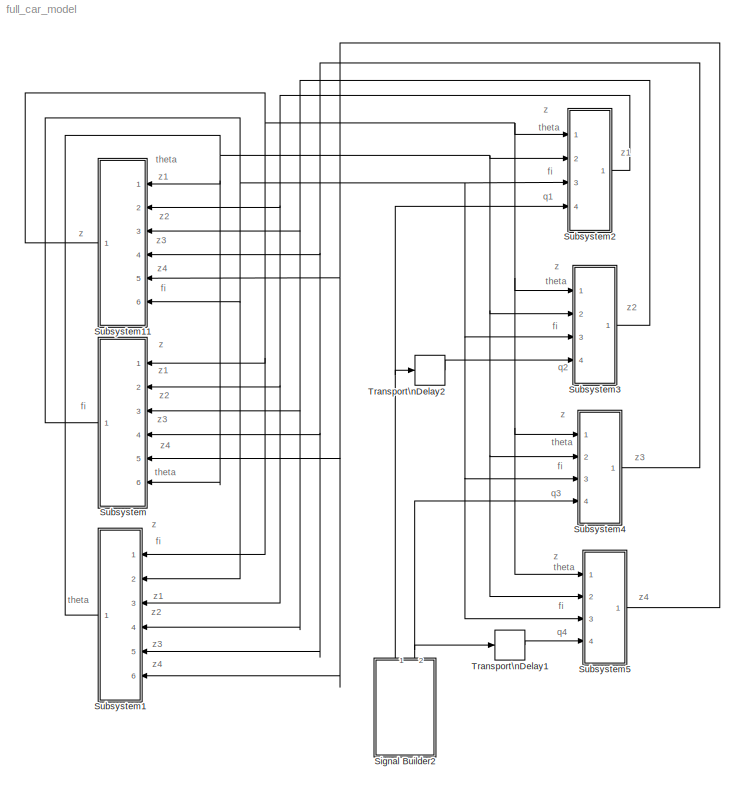
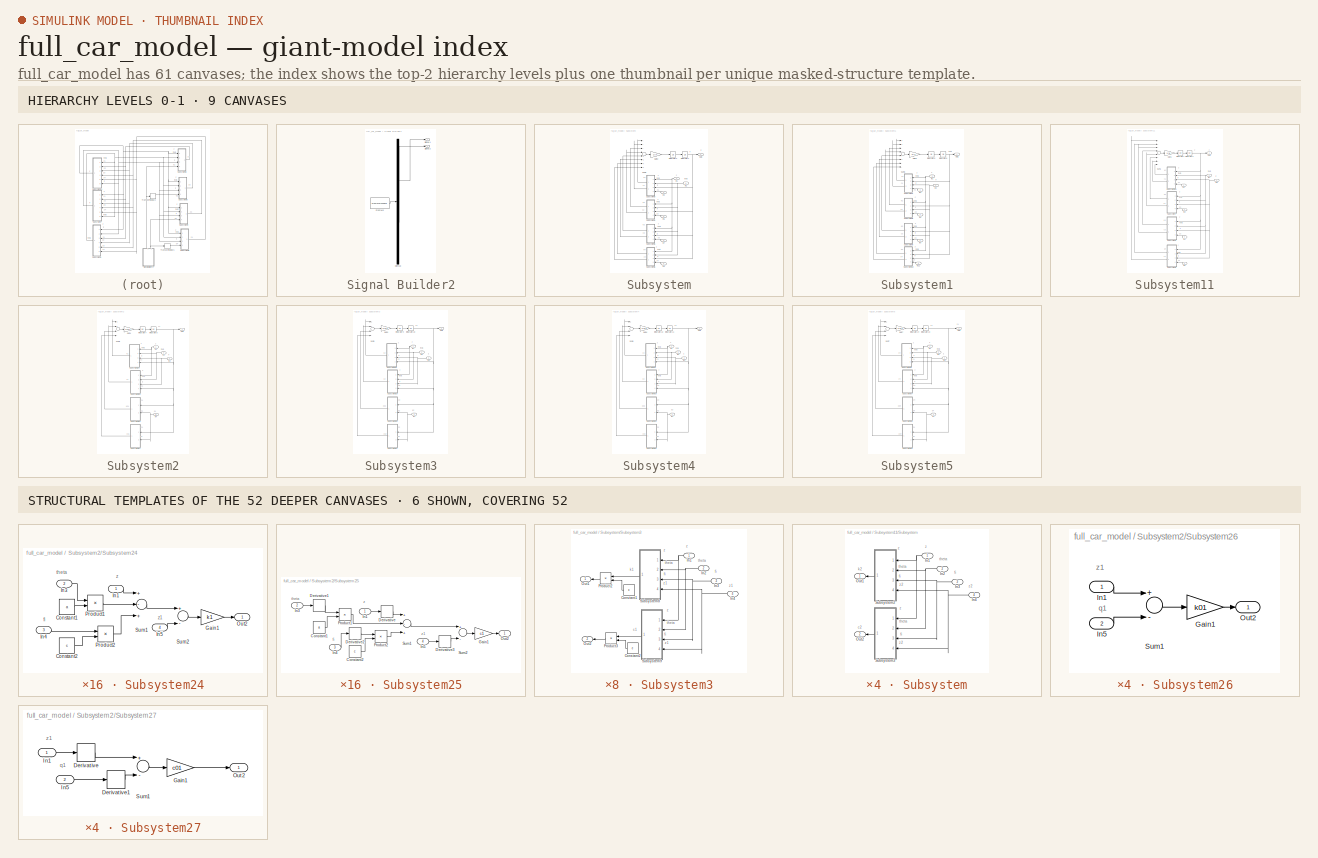
[diagram: thumbnail index - top-2 hierarchy levels (9 canvases) + 6 structural-template representatives of the remaining 52 canvases]
MODEL full_car_model
KIND model
BLOCK [SubSystem] Signal Builder2
  ClipboardFcn = sigbuilder_block('clipboard');
  CloseFcn = sigbuilder_block('close');
  CopyFcn = sigbuilder_block('copy');
  DeleteFcn = sigbuilder_block('delete');
  FunctionWithSeparateData = off
  LoadFcn = sigbuilder_block('load');
  MaskCapabilities = slmaskedcaps(gcbh)
  MaskDescription = Sigbuilder GUI
  MaskDisplay = plot(0,0,100,100,[10,10,40,40,10],[80,20,20,80,80],[40,10],[50,50], [40,27,10],[65,72,56],[40,25,25,10],[28,28,43,43]);
  MaskIconFrame = on
  MaskIconOpaque = off
  MaskIconRotate = port
  MaskIconUnits = autoscale
  MaskInitialization = if ~strcmp(get_param(bdroot(gcbh),'SimulationStatus'),'stopped') tuvar = sigbuilder_block('maskInit'); end
  MaskType = Sigbuilder block
  MinAlgLoopOccurrences = off
  ModelCloseFcn = sigbuilder_block('modelClose');
  NameChangeFcn = sigbuilder_block('namechange');
  OpenFcn = sigbuilder_block('open',[124.5 96 550.5 363.75 ]);
  Ports = [0, 2]
  PreSaveFcn = sigbuilder_block('preSave');
  RTWSystemCode = Auto
  StartFcn = sigbuilder_block('start');
  StopFcn = sigbuilder_block('stop');
  Tag = STV Subsys
BLOCK [Demux] Signal Builder2/Demux
  Outputs = 2
  Ports = [1, 2]
  Tag = STV Demux
BLOCK [FromWorkspace] Signal Builder2/FromWs
  SampleTime = 0
  SigBuilderData = DataTag0
  Tag = STV FromWs
  VariableName = tuvar
  VnvData = DataTag1
  ZeroCross = on
BLOCK [Outport] Signal Builder2/Signal 1
  IconDisplay = Port number
  OutDataType = sfix(16)
  OutScaling = 2^0
  Tag = STV Outport
BLOCK [Outport] Signal Builder2/Signal 2
  IconDisplay = Port number
  Port = 2
  Tag = STV Outport
BLOCK [SubSystem] Subsystem
  FunctionWithSeparateData = off
  MinAlgLoopOccurrences = off
  Ports = [6, 1]
  RTWSystemCode = Auto
BLOCK [Gain] Subsystem/Gain2
  Gain = 1/Ix
  OutDataType = sfix(16)
  OutDataTypeMode = Inherit via internal rule
  OutScaling = 2^0
  ParameterDataType = sfix(16)
  ParameterDataTypeMode = Inherit via internal rule
  ParameterScaling = 2^0
  SaturateOnIntegerOverflow = off
BLOCK [Inport] Subsystem/In1
  IconDisplay = Port number
BLOCK [Inport] Subsystem/In2
  IconDisplay = Port number
  Port = 6
BLOCK [Inport] Subsystem/In3
  IconDisplay = Port number
  Port = 2
BLOCK [Inport] Subsystem/In5
  IconDisplay = Port number
  Port = 3
BLOCK [Inport] Subsystem/In7
  IconDisplay = Port number
  Port = 4
BLOCK [Inport] Subsystem/In9
  IconDisplay = Port number
  Port = 5
BLOCK [Integrator] Subsystem/Integrator3
  Ports = [1, 1]
BLOCK [Integrator] Subsystem/Integrator4
  Ports = [1, 1]
BLOCK [Outport] Subsystem/Out1
  IconDisplay = Port number
BLOCK [SubSystem] Subsystem/Subsystem3
  FunctionWithSeparateData = off
  MinAlgLoopOccurrences = off
  Ports = [4, 2]
  RTWSystemCode = Auto
BLOCK [Constant] Subsystem/Subsystem3/Constant1
  OutDataType = sfix(16)
  OutScaling = 2^0
  Value = c
BLOCK [Constant] Subsystem/Subsystem3/Constant2
  OutDataType = sfix(16)
  OutScaling = 2^0
  Value = c
BLOCK [Inport] Subsystem/Subsystem3/In1
  IconDisplay = Port number
BLOCK [Inport] Subsystem/Subsystem3/In2
  IconDisplay = Port number
  Port = 2
BLOCK [Inport] Subsystem/Subsystem3/In3
  IconDisplay = Port number
  Port = 3
BLOCK [Inport] Subsystem/Subsystem3/In4
  IconDisplay = Port number
  Port = 4
BLOCK [Outport] Subsystem/Subsystem3/Out1
  IconDisplay = Port number
BLOCK [Outport] Subsystem/Subsystem3/Out2
  IconDisplay = Port number
  Port = 2
BLOCK [Product] Subsystem/Subsystem3/Product2
  CollapseMode = All dimensions
  InputSameDT = off
  OutDataType = sfix(16)
  OutDataTypeMode = Inherit via internal rule
  OutScaling = 2^0
  Ports = [2, 1]
  SaturateOnIntegerOverflow = off
BLOCK [Product] Subsystem/Subsystem3/Product3
  CollapseMode = All dimensions
  InputSameDT = off
  OutDataType = sfix(16)
  OutDataTypeMode = Inherit via internal rule
  OutScaling = 2^0
  Ports = [2, 1]
  SaturateOnIntegerOverflow = off
BLOCK [SubSystem] Subsystem/Subsystem3/Subsystem8
  FunctionWithSeparateData = off
  MinAlgLoopOccurrences = off
  Ports = [4, 1]
  RTWSystemCode = Auto
BLOCK [Constant] Subsystem/Subsystem3/Subsystem8/Constant1
  OutDataType = sfix(16)
  OutScaling = 2^0
  Value = a
BLOCK [Constant] Subsystem/Subsystem3/Subsystem8/Constant2
  OutDataType = sfix(16)
  OutScaling = 2^0
  Value = c
BLOCK [Gain] Subsystem/Subsystem3/Subsystem8/Gain1
  Gain = k1
  OutDataType = sfix(16)
  OutDataTypeMode = Inherit via internal rule
  OutScaling = 2^0
  ParameterDataType = sfix(16)
  ParameterDataTypeMode = Inherit via internal rule
  ParameterScaling = 2^0
  SaturateOnIntegerOverflow = off
BLOCK [Inport] Subsystem/Subsystem3/Subsystem8/In1
  IconDisplay = Port number
  OutDataType = sfix(16)
  OutScaling = 2^0
BLOCK [Inport] Subsystem/Subsystem3/Subsystem8/In3
  IconDisplay = Port number
  OutDataType = sfix(16)
  OutScaling = 2^0
  Port = 2
BLOCK [Inport] Subsystem/Subsystem3/Subsystem8/In4
  IconDisplay = Port number
  OutDataType = sfix(16)
  OutScaling = 2^0
  Port = 3
BLOCK [Inport] Subsystem/Subsystem3/Subsystem8/In5
  IconDisplay = Port number
  OutDataType = sfix(16)
  OutScaling = 2^0
  Port = 4
BLOCK [Outport] Subsystem/Subsystem3/Subsystem8/Out2
  IconDisplay = Port number
  OutDataType = sfix(16)
  OutScaling = 2^0
BLOCK [Product] Subsystem/Subsystem3/Subsystem8/Product1
  CollapseMode = All dimensions
  InputSameDT = off
  OutDataType = sfix(16)
  OutDataTypeMode = Inherit via internal rule
  OutScaling = 2^0
  Ports = [2, 1]
  SaturateOnIntegerOverflow = off
BLOCK [Product] Subsystem/Subsystem3/Subsystem8/Product2
  CollapseMode = All dimensions
  InputSameDT = off
  OutDataType = sfix(16)
  OutDataTypeMode = Inherit via internal rule
  OutScaling = 2^0
  Ports = [2, 1]
  SaturateOnIntegerOverflow = off
BLOCK [Sum] Subsystem/Subsystem3/Subsystem8/Sum1
  CollapseMode = All dimensions
  InputSameDT = off
  Inputs = +-+
  OutDataType = sfix(16)
  OutDataTypeMode = Inherit via internal rule
  OutScaling = 2^0
  Ports = [3, 1]
  SaturateOnIntegerOverflow = off
BLOCK [Sum] Subsystem/Subsystem3/Subsystem8/Sum2
  CollapseMode = All dimensions
  InputSameDT = off
  Inputs = +-
  OutDataType = sfix(16)
  OutDataTypeMode = Inherit via internal rule
  OutScaling = 2^0
  Ports = [2, 1]
  SaturateOnIntegerOverflow = off
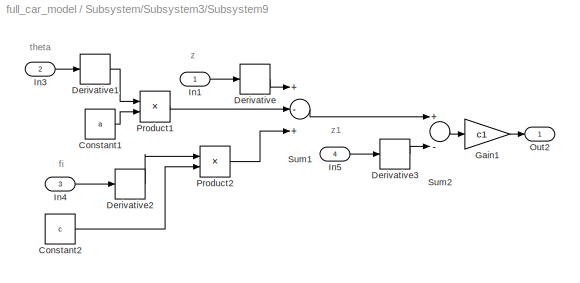
BLOCK [SubSystem] Subsystem/Subsystem3/Subsystem9
  FunctionWithSeparateData = off
  MinAlgLoopOccurrences = off
  Ports = [4, 1]
  RTWSystemCode = Auto
BLOCK [Constant] Subsystem/Subsystem3/Subsystem9/Constant1
  OutDataType = sfix(16)
  OutScaling = 2^0
  Value = a
BLOCK [Constant] Subsystem/Subsystem3/Subsystem9/Constant2
  OutDataType = sfix(16)
  OutScaling = 2^0
  Value = c
BLOCK [Derivative] Subsystem/Subsystem3/Subsystem9/Derivative
BLOCK [Derivative] Subsystem/Subsystem3/Subsystem9/Derivative1
BLOCK [Derivative] Subsystem/Subsystem3/Subsystem9/Derivative2
BLOCK [Derivative] Subsystem/Subsystem3/Subsystem9/Derivative3
BLOCK [Gain] Subsystem/Subsystem3/Subsystem9/Gain1
  Gain = c1
  OutDataType = sfix(16)
  OutDataTypeMode = Inherit via internal rule
  OutScaling = 2^0
  ParameterDataType = sfix(16)
  ParameterDataTypeMode = Inherit via internal rule
  ParameterScaling = 2^0
  SaturateOnIntegerOverflow = off
BLOCK [Inport] Subsystem/Subsystem3/Subsystem9/In1
  IconDisplay = Port number
  OutDataType = sfix(16)
  OutScaling = 2^0
BLOCK [Inport] Subsystem/Subsystem3/Subsystem9/In3
  IconDisplay = Port number
  OutDataType = sfix(16)
  OutScaling = 2^0
  Port = 2
BLOCK [Inport] Subsystem/Subsystem3/Subsystem9/In4
  IconDisplay = Port number
  OutDataType = sfix(16)
  OutScaling = 2^0
  Port = 3
BLOCK [Inport] Subsystem/Subsystem3/Subsystem9/In5
  IconDisplay = Port number
  OutDataType = sfix(16)
  OutScaling = 2^0
  Port = 4
BLOCK [Outport] Subsystem/Subsystem3/Subsystem9/Out2
  IconDisplay = Port number
  OutDataType = sfix(16)
  OutScaling = 2^0
BLOCK [Product] Subsystem/Subsystem3/Subsystem9/Product1
  CollapseMode = All dimensions
  InputSameDT = off
  OutDataType = sfix(16)
  OutDataTypeMode = Inherit via internal rule
  OutScaling = 2^0
  Ports = [2, 1]
  SaturateOnIntegerOverflow = off
BLOCK [Product] Subsystem/Subsystem3/Subsystem9/Product2
  CollapseMode = All dimensions
  InputSameDT = off
  OutDataType = sfix(16)
  OutDataTypeMode = Inherit via internal rule
  OutScaling = 2^0
  Ports = [2, 1]
  SaturateOnIntegerOverflow = off
BLOCK [Sum] Subsystem/Subsystem3/Subsystem9/Sum1
  CollapseMode = All dimensions
  InputSameDT = off
  Inputs = +-+
  OutDataType = sfix(16)
  OutDataTypeMode = Inherit via internal rule
  OutScaling = 2^0
  Ports = [3, 1]
  SaturateOnIntegerOverflow = off
BLOCK [Sum] Subsystem/Subsystem3/Subsystem9/Sum2
  CollapseMode = All dimensions
  InputSameDT = off
  Inputs = +-
  OutDataType = sfix(16)
  OutDataTypeMode = Inherit via internal rule
  OutScaling = 2^0
  Ports = [2, 1]
  SaturateOnIntegerOverflow = off
BLOCK [SubSystem] Subsystem/Subsystem4
  FunctionWithSeparateData = off
  MinAlgLoopOccurrences = off
  Ports = [4, 2]
  RTWSystemCode = Auto
BLOCK [Constant] Subsystem/Subsystem4/Constant3
  OutDataType = sfix(16)
  OutScaling = 2^0
  Value = c
BLOCK [Constant] Subsystem/Subsystem4/Constant4
  OutDataType = sfix(16)
  OutScaling = 2^0
  Value = c
BLOCK [Inport] Subsystem/Subsystem4/In1
  IconDisplay = Port number
BLOCK [Inport] Subsystem/Subsystem4/In2
  IconDisplay = Port number
  Port = 2
BLOCK [Inport] Subsystem/Subsystem4/In3
  IconDisplay = Port number
  Port = 3
BLOCK [Inport] Subsystem/Subsystem4/In4
  IconDisplay = Port number
  Port = 4
BLOCK [Outport] Subsystem/Subsystem4/Out1
  IconDisplay = Port number
BLOCK [Outport] Subsystem/Subsystem4/Out2
  IconDisplay = Port number
  Port = 2
BLOCK [Product] Subsystem/Subsystem4/Product4
  CollapseMode = All dimensions
  InputSameDT = off
  OutDataType = sfix(16)
  OutDataTypeMode = Inherit via internal rule
  OutScaling = 2^0
  Ports = [2, 1]
  SaturateOnIntegerOverflow = off
BLOCK [Product] Subsystem/Subsystem4/Product5
  CollapseMode = All dimensions
  InputSameDT = off
  OutDataType = sfix(16)
  OutDataTypeMode = Inherit via internal rule
  OutScaling = 2^0
  Ports = [2, 1]
  SaturateOnIntegerOverflow = off
BLOCK [SubSystem] Subsystem/Subsystem4/Subsystem10
  FunctionWithSeparateData = off
  MinAlgLoopOccurrences = off
  Ports = [4, 1]
  RTWSystemCode = Auto
BLOCK [Constant] Subsystem/Subsystem4/Subsystem10/Constant1
  OutDataType = sfix(16)
  OutScaling = 2^0
  Value = b
BLOCK [Constant] Subsystem/Subsystem4/Subsystem10/Constant2
  OutDataType = sfix(16)
  OutScaling = 2^0
  Value = c
BLOCK [Gain] Subsystem/Subsystem4/Subsystem10/Gain1
  Gain = k2
  OutDataType = sfix(16)
  OutDataTypeMode = Inherit via internal rule
  OutScaling = 2^0
  ParameterDataType = sfix(16)
  ParameterDataTypeMode = Inherit via internal rule
  ParameterScaling = 2^0
  SaturateOnIntegerOverflow = off
BLOCK [Inport] Subsystem/Subsystem4/Subsystem10/In1
  IconDisplay = Port number
  OutDataType = sfix(16)
  OutScaling = 2^0
BLOCK [Inport] Subsystem/Subsystem4/Subsystem10/In3
  IconDisplay = Port number
  OutDataType = sfix(16)
  OutScaling = 2^0
  Port = 2
BLOCK [Inport] Subsystem/Subsystem4/Subsystem10/In4
  IconDisplay = Port number
  OutDataType = sfix(16)
  OutScaling = 2^0
  Port = 3
BLOCK [Inport] Subsystem/Subsystem4/Subsystem10/In5
  IconDisplay = Port number
  OutDataType = sfix(16)
  OutScaling = 2^0
  Port = 4
BLOCK [Outport] Subsystem/Subsystem4/Subsystem10/Out2
  IconDisplay = Port number
  OutDataType = sfix(16)
  OutScaling = 2^0
BLOCK [Product] Subsystem/Subsystem4/Subsystem10/Product1
  CollapseMode = All dimensions
  InputSameDT = off
  OutDataType = sfix(16)
  OutDataTypeMode = Inherit via internal rule
  OutScaling = 2^0
  Ports = [2, 1]
  SaturateOnIntegerOverflow = off
BLOCK [Product] Subsystem/Subsystem4/Subsystem10/Product2
  CollapseMode = All dimensions
  InputSameDT = off
  OutDataType = sfix(16)
  OutDataTypeMode = Inherit via internal rule
  OutScaling = 2^0
  Ports = [2, 1]
  SaturateOnIntegerOverflow = off
BLOCK [Sum] Subsystem/Subsystem4/Subsystem10/Sum1
  CollapseMode = All dimensions
  InputSameDT = off
  Inputs = +++
  OutDataType = sfix(16)
  OutDataTypeMode = Inherit via internal rule
  OutScaling = 2^0
  Ports = [3, 1]
  SaturateOnIntegerOverflow = off
BLOCK [Sum] Subsystem/Subsystem4/Subsystem10/Sum2
  CollapseMode = All dimensions
  InputSameDT = off
  Inputs = +-
  OutDataType = sfix(16)
  OutDataTypeMode = Inherit via internal rule
  OutScaling = 2^0
  Ports = [2, 1]
  SaturateOnIntegerOverflow = off
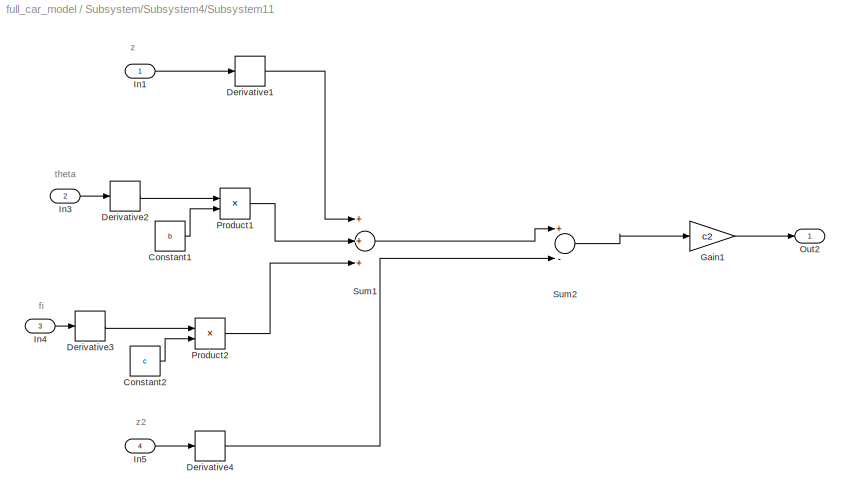
BLOCK [SubSystem] Subsystem/Subsystem4/Subsystem11
  FunctionWithSeparateData = off
  MinAlgLoopOccurrences = off
  Ports = [4, 1]
  RTWSystemCode = Auto
BLOCK [Constant] Subsystem/Subsystem4/Subsystem11/Constant1
  OutDataType = sfix(16)
  OutScaling = 2^0
  Value = b
BLOCK [Constant] Subsystem/Subsystem4/Subsystem11/Constant2
  OutDataType = sfix(16)
  OutScaling = 2^0
  Value = c
BLOCK [Derivative] Subsystem/Subsystem4/Subsystem11/Derivative1
BLOCK [Derivative] Subsystem/Subsystem4/Subsystem11/Derivative2
BLOCK [Derivative] Subsystem/Subsystem4/Subsystem11/Derivative3
BLOCK [Derivative] Subsystem/Subsystem4/Subsystem11/Derivative4
BLOCK [Gain] Subsystem/Subsystem4/Subsystem11/Gain1
  Gain = c2
  OutDataType = sfix(16)
  OutDataTypeMode = Inherit via internal rule
  OutScaling = 2^0
  ParameterDataType = sfix(16)
  ParameterDataTypeMode = Inherit via internal rule
  ParameterScaling = 2^0
  SaturateOnIntegerOverflow = off
BLOCK [Inport] Subsystem/Subsystem4/Subsystem11/In1
  IconDisplay = Port number
  OutDataType = sfix(16)
  OutScaling = 2^0
BLOCK [Inport] Subsystem/Subsystem4/Subsystem11/In3
  IconDisplay = Port number
  OutDataType = sfix(16)
  OutScaling = 2^0
  Port = 2
BLOCK [Inport] Subsystem/Subsystem4/Subsystem11/In4
  IconDisplay = Port number
  OutDataType = sfix(16)
  OutScaling = 2^0
  Port = 3
BLOCK [Inport] Subsystem/Subsystem4/Subsystem11/In5
  IconDisplay = Port number
  OutDataType = sfix(16)
  OutScaling = 2^0
  Port = 4
BLOCK [Outport] Subsystem/Subsystem4/Subsystem11/Out2
  IconDisplay = Port number
  OutDataType = sfix(16)
  OutScaling = 2^0
BLOCK [Product] Subsystem/Subsystem4/Subsystem11/Product1
  CollapseMode = All dimensions
  InputSameDT = off
  OutDataType = sfix(16)
  OutDataTypeMode = Inherit via internal rule
  OutScaling = 2^0
  Ports = [2, 1]
  SaturateOnIntegerOverflow = off
BLOCK [Product] Subsystem/Subsystem4/Subsystem11/Product2
  CollapseMode = All dimensions
  InputSameDT = off
  OutDataType = sfix(16)
  OutDataTypeMode = Inherit via internal rule
  OutScaling = 2^0
  Ports = [2, 1]
  SaturateOnIntegerOverflow = off
BLOCK [Sum] Subsystem/Subsystem4/Subsystem11/Sum1
  CollapseMode = All dimensions
  InputSameDT = off
  Inputs = +++
  OutDataType = sfix(16)
  OutDataTypeMode = Inherit via internal rule
  OutScaling = 2^0
  Ports = [3, 1]
  SaturateOnIntegerOverflow = off
BLOCK [Sum] Subsystem/Subsystem4/Subsystem11/Sum2
  CollapseMode = All dimensions
  InputSameDT = off
  Inputs = +-
  OutDataType = sfix(16)
  OutDataTypeMode = Inherit via internal rule
  OutScaling = 2^0
  Ports = [2, 1]
  SaturateOnIntegerOverflow = off
BLOCK [SubSystem] Subsystem/Subsystem5
  FunctionWithSeparateData = off
  MinAlgLoopOccurrences = off
  Ports = [4, 2]
  RTWSystemCode = Auto
BLOCK [Constant] Subsystem/Subsystem5/Constant5
  OutDataType = sfix(16)
  OutScaling = 2^0
  Value = d
BLOCK [Constant] Subsystem/Subsystem5/Constant6
  OutDataType = sfix(16)
  OutScaling = 2^0
  Value = d
BLOCK [Inport] Subsystem/Subsystem5/In1
  IconDisplay = Port number
BLOCK [Inport] Subsystem/Subsystem5/In2
  IconDisplay = Port number
  Port = 2
BLOCK [Inport] Subsystem/Subsystem5/In3
  IconDisplay = Port number
  Port = 3
BLOCK [Inport] Subsystem/Subsystem5/In4
  IconDisplay = Port number
  Port = 4
BLOCK [Outport] Subsystem/Subsystem5/Out1
  IconDisplay = Port number
BLOCK [Outport] Subsystem/Subsystem5/Out2
  IconDisplay = Port number
  Port = 2
BLOCK [Product] Subsystem/Subsystem5/Product6
  CollapseMode = All dimensions
  InputSameDT = off
  OutDataType = sfix(16)
  OutDataTypeMode = Inherit via internal rule
  OutScaling = 2^0
  Ports = [2, 1]
  SaturateOnIntegerOverflow = off
BLOCK [Product] Subsystem/Subsystem5/Product7
  CollapseMode = All dimensions
  InputSameDT = off
  OutDataType = sfix(16)
  OutDataTypeMode = Inherit via internal rule
  OutScaling = 2^0
  Ports = [2, 1]
  SaturateOnIntegerOverflow = off
BLOCK [SubSystem] Subsystem/Subsystem5/Subsystem12
  FunctionWithSeparateData = off
  MinAlgLoopOccurrences = off
  Ports = [4, 1]
  RTWSystemCode = Auto
BLOCK [Constant] Subsystem/Subsystem5/Subsystem12/Constant1
  OutDataType = sfix(16)
  OutScaling = 2^0
  Value = a
BLOCK [Constant] Subsystem/Subsystem5/Subsystem12/Constant2
  OutDataType = sfix(16)
  OutScaling = 2^0
  Value = d
BLOCK [Gain] Subsystem/Subsystem5/Subsystem12/Gain1
  Gain = k3
  OutDataType = sfix(16)
  OutDataTypeMode = Inherit via internal rule
  OutScaling = 2^0
  ParameterDataType = sfix(16)
  ParameterDataTypeMode = Inherit via internal rule
  ParameterScaling = 2^0
  SaturateOnIntegerOverflow = off
BLOCK [Inport] Subsystem/Subsystem5/Subsystem12/In1
  IconDisplay = Port number
  OutDataType = sfix(16)
  OutScaling = 2^0
BLOCK [Inport] Subsystem/Subsystem5/Subsystem12/In3
  IconDisplay = Port number
  OutDataType = sfix(16)
  OutScaling = 2^0
  Port = 2
BLOCK [Inport] Subsystem/Subsystem5/Subsystem12/In4
  IconDisplay = Port number
  OutDataType = sfix(16)
  OutScaling = 2^0
  Port = 3
BLOCK [Inport] Subsystem/Subsystem5/Subsystem12/In5
  IconDisplay = Port number
  OutDataType = sfix(16)
  OutScaling = 2^0
  Port = 4
BLOCK [Outport] Subsystem/Subsystem5/Subsystem12/Out2
  IconDisplay = Port number
  OutDataType = sfix(16)
  OutScaling = 2^0
BLOCK [Product] Subsystem/Subsystem5/Subsystem12/Product1
  CollapseMode = All dimensions
  InputSameDT = off
  OutDataType = sfix(16)
  OutDataTypeMode = Inherit via internal rule
  OutScaling = 2^0
  Ports = [2, 1]
  SaturateOnIntegerOverflow = off
BLOCK [Product] Subsystem/Subsystem5/Subsystem12/Product2
  CollapseMode = All dimensions
  InputSameDT = off
  OutDataType = sfix(16)
  OutDataTypeMode = Inherit via internal rule
  OutScaling = 2^0
  Ports = [2, 1]
  SaturateOnIntegerOverflow = off
BLOCK [Sum] Subsystem/Subsystem5/Subsystem12/Sum1
  CollapseMode = All dimensions
  InputSameDT = off
  Inputs = +--
  OutDataType = sfix(16)
  OutDataTypeMode = Inherit via internal rule
  OutScaling = 2^0
  Ports = [3, 1]
  SaturateOnIntegerOverflow = off
BLOCK [Sum] Subsystem/Subsystem5/Subsystem12/Sum2
  CollapseMode = All dimensions
  InputSameDT = off
  Inputs = +-
  OutDataType = sfix(16)
  OutDataTypeMode = Inherit via internal rule
  OutScaling = 2^0
  Ports = [2, 1]
  SaturateOnIntegerOverflow = off
BLOCK [SubSystem] Subsystem/Subsystem5/Subsystem13
  FunctionWithSeparateData = off
  MinAlgLoopOccurrences = off
  Ports = [4, 1]
  RTWSystemCode = Auto
BLOCK [Constant] Subsystem/Subsystem5/Subsystem13/Constant1
  OutDataType = sfix(16)
  OutScaling = 2^0
  Value = a
BLOCK [Constant] Subsystem/Subsystem5/Subsystem13/Constant2
  OutDataType = sfix(16)
  OutScaling = 2^0
  Value = d
BLOCK [Derivative] Subsystem/Subsystem5/Subsystem13/Derivative
BLOCK [Derivative] Subsystem/Subsystem5/Subsystem13/Derivative1
BLOCK [Derivative] Subsystem/Subsystem5/Subsystem13/Derivative2
BLOCK [Derivative] Subsystem/Subsystem5/Subsystem13/Derivative3
BLOCK [Gain] Subsystem/Subsystem5/Subsystem13/Gain1
  Gain = c3
  OutDataType = sfix(16)
  OutDataTypeMode = Inherit via internal rule
  OutScaling = 2^0
  ParameterDataType = sfix(16)
  ParameterDataTypeMode = Inherit via internal rule
  ParameterScaling = 2^0
  SaturateOnIntegerOverflow = off
BLOCK [Inport] Subsystem/Subsystem5/Subsystem13/In1
  IconDisplay = Port number
  OutDataType = sfix(16)
  OutScaling = 2^0
BLOCK [Inport] Subsystem/Subsystem5/Subsystem13/In3
  IconDisplay = Port number
  OutDataType = sfix(16)
  OutScaling = 2^0
  Port = 2
BLOCK [Inport] Subsystem/Subsystem5/Subsystem13/In4
  IconDisplay = Port number
  OutDataType = sfix(16)
  OutScaling = 2^0
  Port = 3
BLOCK [Inport] Subsystem/Subsystem5/Subsystem13/In5
  IconDisplay = Port number
  OutDataType = sfix(16)
  OutScaling = 2^0
  Port = 4
BLOCK [Outport] Subsystem/Subsystem5/Subsystem13/Out2
  IconDisplay = Port number
  OutDataType = sfix(16)
  OutScaling = 2^0
BLOCK [Product] Subsystem/Subsystem5/Subsystem13/Product1
  CollapseMode = All dimensions
  InputSameDT = off
  OutDataType = sfix(16)
  OutDataTypeMode = Inherit via internal rule
  OutScaling = 2^0
  Ports = [2, 1]
  SaturateOnIntegerOverflow = off
BLOCK [Product] Subsystem/Subsystem5/Subsystem13/Product2
  CollapseMode = All dimensions
  InputSameDT = off
  OutDataType = sfix(16)
  OutDataTypeMode = Inherit via internal rule
  OutScaling = 2^0
  Ports = [2, 1]
  SaturateOnIntegerOverflow = off
BLOCK [Sum] Subsystem/Subsystem5/Subsystem13/Sum1
  CollapseMode = All dimensions
  InputSameDT = off
  Inputs = +--
  OutDataType = sfix(16)
  OutDataTypeMode = Inherit via internal rule
  OutScaling = 2^0
  Ports = [3, 1]
  SaturateOnIntegerOverflow = off
BLOCK [Sum] Subsystem/Subsystem5/Subsystem13/Sum2
  CollapseMode = All dimensions
  InputSameDT = off
  Inputs = +-
  OutDataType = sfix(16)
  OutDataTypeMode = Inherit via internal rule
  OutScaling = 2^0
  Ports = [2, 1]
  SaturateOnIntegerOverflow = off
BLOCK [SubSystem] Subsystem/Subsystem6
  FunctionWithSeparateData = off
  MinAlgLoopOccurrences = off
  Ports = [4, 2]
  RTWSystemCode = Auto
BLOCK [Constant] Subsystem/Subsystem6/Constant7
  OutDataType = sfix(16)
  OutScaling = 2^0
  Value = d
BLOCK [Constant] Subsystem/Subsystem6/Constant8
  OutDataType = sfix(16)
  OutScaling = 2^0
  Value = d
BLOCK [Inport] Subsystem/Subsystem6/In1
  IconDisplay = Port number
BLOCK [Inport] Subsystem/Subsystem6/In2
  IconDisplay = Port number
  Port = 2
BLOCK [Inport] Subsystem/Subsystem6/In3
  IconDisplay = Port number
  Port = 3
BLOCK [Inport] Subsystem/Subsystem6/In4
  IconDisplay = Port number
  Port = 4
BLOCK [Outport] Subsystem/Subsystem6/Out1
  IconDisplay = Port number
BLOCK [Outport] Subsystem/Subsystem6/Out2
  IconDisplay = Port number
  Port = 2
BLOCK [Product] Subsystem/Subsystem6/Product8
  CollapseMode = All dimensions
  InputSameDT = off
  OutDataType = sfix(16)
  OutDataTypeMode = Inherit via internal rule
  OutScaling = 2^0
  Ports = [2, 1]
  SaturateOnIntegerOverflow = off
BLOCK [Product] Subsystem/Subsystem6/Product9
  CollapseMode = All dimensions
  InputSameDT = off
  OutDataType = sfix(16)
  OutDataTypeMode = Inherit via internal rule
  OutScaling = 2^0
  Ports = [2, 1]
  SaturateOnIntegerOverflow = off
BLOCK [SubSystem] Subsystem/Subsystem6/Subsystem14
  FunctionWithSeparateData = off
  MinAlgLoopOccurrences = off
  Ports = [4, 1]
  RTWSystemCode = Auto
BLOCK [Constant] Subsystem/Subsystem6/Subsystem14/Constant1
  OutDataType = sfix(16)
  OutScaling = 2^0
  Value = b
BLOCK [Constant] Subsystem/Subsystem6/Subsystem14/Constant2
  OutDataType = sfix(16)
  OutScaling = 2^0
  Value = d
BLOCK [Gain] Subsystem/Subsystem6/Subsystem14/Gain1
  Gain = k4
  OutDataType = sfix(16)
  OutDataTypeMode = Inherit via internal rule
  OutScaling = 2^0
  ParameterDataType = sfix(16)
  ParameterDataTypeMode = Inherit via internal rule
  ParameterScaling = 2^0
  SaturateOnIntegerOverflow = off
BLOCK [Inport] Subsystem/Subsystem6/Subsystem14/In1
  IconDisplay = Port number
  OutDataType = sfix(16)
  OutScaling = 2^0
BLOCK [Inport] Subsystem/Subsystem6/Subsystem14/In3
  IconDisplay = Port number
  OutDataType = sfix(16)
  OutScaling = 2^0
  Port = 2
BLOCK [Inport] Subsystem/Subsystem6/Subsystem14/In4
  IconDisplay = Port number
  OutDataType = sfix(16)
  OutScaling = 2^0
  Port = 3
BLOCK [Inport] Subsystem/Subsystem6/Subsystem14/In5
  IconDisplay = Port number
  OutDataType = sfix(16)
  OutScaling = 2^0
  Port = 4
BLOCK [Outport] Subsystem/Subsystem6/Subsystem14/Out2
  IconDisplay = Port number
  OutDataType = sfix(16)
  OutScaling = 2^0
BLOCK [Product] Subsystem/Subsystem6/Subsystem14/Product1
  CollapseMode = All dimensions
  InputSameDT = off
  OutDataType = sfix(16)
  OutDataTypeMode = Inherit via internal rule
  OutScaling = 2^0
  Ports = [2, 1]
  SaturateOnIntegerOverflow = off
BLOCK [Product] Subsystem/Subsystem6/Subsystem14/Product2
  CollapseMode = All dimensions
  InputSameDT = off
  OutDataType = sfix(16)
  OutDataTypeMode = Inherit via internal rule
  OutScaling = 2^0
  Ports = [2, 1]
  SaturateOnIntegerOverflow = off
BLOCK [Sum] Subsystem/Subsystem6/Subsystem14/Sum1
  CollapseMode = All dimensions
  InputSameDT = off
  Inputs = ++-
  OutDataType = sfix(16)
  OutDataTypeMode = Inherit via internal rule
  OutScaling = 2^0
  Ports = [3, 1]
  SaturateOnIntegerOverflow = off
BLOCK [Sum] Subsystem/Subsystem6/Subsystem14/Sum2
  CollapseMode = All dimensions
  InputSameDT = off
  Inputs = +-
  OutDataType = sfix(16)
  OutDataTypeMode = Inherit via internal rule
  OutScaling = 2^0
  Ports = [2, 1]
  SaturateOnIntegerOverflow = off
BLOCK [SubSystem] Subsystem/Subsystem6/Subsystem15
  FunctionWithSeparateData = off
  MinAlgLoopOccurrences = off
  Ports = [4, 1]
  RTWSystemCode = Auto
BLOCK [Constant] Subsystem/Subsystem6/Subsystem15/Constant1
  OutDataType = sfix(16)
  OutScaling = 2^0
  Value = b
BLOCK [Constant] Subsystem/Subsystem6/Subsystem15/Constant2
  OutDataType = sfix(16)
  OutScaling = 2^0
  Value = d
BLOCK [Derivative] Subsystem/Subsystem6/Subsystem15/Derivative
BLOCK [Derivative] Subsystem/Subsystem6/Subsystem15/Derivative1
BLOCK [Derivative] Subsystem/Subsystem6/Subsystem15/Derivative2
BLOCK [Derivative] Subsystem/Subsystem6/Subsystem15/Derivative3
BLOCK [Gain] Subsystem/Subsystem6/Subsystem15/Gain1
  Gain = c4
  OutDataType = sfix(16)
  OutDataTypeMode = Inherit via internal rule
  OutScaling = 2^0
  ParameterDataType = sfix(16)
  ParameterDataTypeMode = Inherit via internal rule
  ParameterScaling = 2^0
  SaturateOnIntegerOverflow = off
BLOCK [Inport] Subsystem/Subsystem6/Subsystem15/In1
  IconDisplay = Port number
  OutDataType = sfix(16)
  OutScaling = 2^0
BLOCK [Inport] Subsystem/Subsystem6/Subsystem15/In3
  IconDisplay = Port number
  OutDataType = sfix(16)
  OutScaling = 2^0
  Port = 2
BLOCK [Inport] Subsystem/Subsystem6/Subsystem15/In4
  IconDisplay = Port number
  OutDataType = sfix(16)
  OutScaling = 2^0
  Port = 3
BLOCK [Inport] Subsystem/Subsystem6/Subsystem15/In5
  IconDisplay = Port number
  OutDataType = sfix(16)
  OutScaling = 2^0
  Port = 4
BLOCK [Outport] Subsystem/Subsystem6/Subsystem15/Out2
  IconDisplay = Port number
  OutDataType = sfix(16)
  OutScaling = 2^0
BLOCK [Product] Subsystem/Subsystem6/Subsystem15/Product1
  CollapseMode = All dimensions
  InputSameDT = off
  OutDataType = sfix(16)
  OutDataTypeMode = Inherit via internal rule
  OutScaling = 2^0
  Ports = [2, 1]
  SaturateOnIntegerOverflow = off
BLOCK [Product] Subsystem/Subsystem6/Subsystem15/Product2
  CollapseMode = All dimensions
  InputSameDT = off
  OutDataType = sfix(16)
  OutDataTypeMode = Inherit via internal rule
  OutScaling = 2^0
  Ports = [2, 1]
  SaturateOnIntegerOverflow = off
BLOCK [Sum] Subsystem/Subsystem6/Subsystem15/Sum1
  CollapseMode = All dimensions
  InputSameDT = off
  Inputs = ++-
  OutDataType = sfix(16)
  OutDataTypeMode = Inherit via internal rule
  OutScaling = 2^0
  Ports = [3, 1]
  SaturateOnIntegerOverflow = off
BLOCK [Sum] Subsystem/Subsystem6/Subsystem15/Sum2
  CollapseMode = All dimensions
  InputSameDT = off
  Inputs = +-
  OutDataType = sfix(16)
  OutDataTypeMode = Inherit via internal rule
  OutScaling = 2^0
  Ports = [2, 1]
  SaturateOnIntegerOverflow = off
BLOCK [Sum] Subsystem/Sum2
  CollapseMode = All dimensions
  InputSameDT = off
  Inputs = ----++++
  OutDataType = sfix(16)
  OutDataTypeMode = Inherit via internal rule
  OutScaling = 2^0
  Ports = [8, 1]
  SaturateOnIntegerOverflow = off
BLOCK [SubSystem] Subsystem1
  FunctionWithSeparateData = off
  MinAlgLoopOccurrences = off
  Ports = [6, 1]
  RTWSystemCode = Auto
BLOCK [Gain] Subsystem1/Gain3
  Gain = 1/Iy
  OutDataType = sfix(16)
  OutDataTypeMode = Inherit via internal rule
  OutScaling = 2^0
  ParameterDataType = sfix(16)
  ParameterDataTypeMode = Inherit via internal rule
  ParameterScaling = 2^0
  SaturateOnIntegerOverflow = off
BLOCK [Inport] Subsystem1/In1
  IconDisplay = Port number
BLOCK [Inport] Subsystem1/In12
  IconDisplay = Port number
  Port = 6
BLOCK [Inport] Subsystem1/In2
  IconDisplay = Port number
  Port = 2
BLOCK [Inport] Subsystem1/In3
  IconDisplay = Port number
  Port = 3
BLOCK [Inport] Subsystem1/In6
  IconDisplay = Port number
  Port = 4
BLOCK [Inport] Subsystem1/In9
  IconDisplay = Port number
  Port = 5
BLOCK [Integrator] Subsystem1/Integrator5
  Ports = [1, 1]
BLOCK [Integrator] Subsystem1/Integrator6
  Ports = [1, 1]
BLOCK [Outport] Subsystem1/Out1
  IconDisplay = Port number
BLOCK [SubSystem] Subsystem1/Subsystem10
  FunctionWithSeparateData = off
  MinAlgLoopOccurrences = off
  Ports = [4, 2]
  RTWSystemCode = Auto
BLOCK [Constant] Subsystem1/Subsystem10/Constant15
  OutDataType = sfix(16)
  OutScaling = 2^0
  Value = b
BLOCK [Constant] Subsystem1/Subsystem10/Constant16
  OutDataType = sfix(16)
  OutScaling = 2^0
  Value = b
BLOCK [Inport] Subsystem1/Subsystem10/In1
  IconDisplay = Port number
BLOCK [Inport] Subsystem1/Subsystem10/In2
  IconDisplay = Port number
  Port = 2
BLOCK [Inport] Subsystem1/Subsystem10/In3
  IconDisplay = Port number
  Port = 3
BLOCK [Inport] Subsystem1/Subsystem10/In4
  IconDisplay = Port number
  Port = 4
BLOCK [Outport] Subsystem1/Subsystem10/Out1
  IconDisplay = Port number
BLOCK [Outport] Subsystem1/Subsystem10/Out2
  IconDisplay = Port number
  Port = 2
BLOCK [Product] Subsystem1/Subsystem10/Product16
  CollapseMode = All dimensions
  InputSameDT = off
  OutDataType = sfix(16)
  OutDataTypeMode = Inherit via internal rule
  OutScaling = 2^0
  Ports = [2, 1]
  SaturateOnIntegerOverflow = off
BLOCK [Product] Subsystem1/Subsystem10/Product17
  CollapseMode = All dimensions
  InputSameDT = off
  OutDataType = sfix(16)
  OutDataTypeMode = Inherit via internal rule
  OutScaling = 2^0
  Ports = [2, 1]
  SaturateOnIntegerOverflow = off
BLOCK [SubSystem] Subsystem1/Subsystem10/Subsystem20
  FunctionWithSeparateData = off
  MinAlgLoopOccurrences = off
  Ports = [4, 1]
  RTWSystemCode = Auto
BLOCK [Constant] Subsystem1/Subsystem10/Subsystem20/Constant1
  OutDataType = sfix(16)
  OutScaling = 2^0
  Value = b
BLOCK [Constant] Subsystem1/Subsystem10/Subsystem20/Constant2
  OutDataType = sfix(16)
  OutScaling = 2^0
  Value = d
BLOCK [Gain] Subsystem1/Subsystem10/Subsystem20/Gain1
  Gain = k4
  OutDataType = sfix(16)
  OutDataTypeMode = Inherit via internal rule
  OutScaling = 2^0
  ParameterDataType = sfix(16)
  ParameterDataTypeMode = Inherit via internal rule
  ParameterScaling = 2^0
  SaturateOnIntegerOverflow = off
BLOCK [Inport] Subsystem1/Subsystem10/Subsystem20/In1
  IconDisplay = Port number
  OutDataType = sfix(16)
  OutScaling = 2^0
BLOCK [Inport] Subsystem1/Subsystem10/Subsystem20/In3
  IconDisplay = Port number
  OutDataType = sfix(16)
  OutScaling = 2^0
  Port = 2
BLOCK [Inport] Subsystem1/Subsystem10/Subsystem20/In4
  IconDisplay = Port number
  OutDataType = sfix(16)
  OutScaling = 2^0
  Port = 3
BLOCK [Inport] Subsystem1/Subsystem10/Subsystem20/In5
  IconDisplay = Port number
  OutDataType = sfix(16)
  OutScaling = 2^0
  Port = 4
BLOCK [Outport] Subsystem1/Subsystem10/Subsystem20/Out2
  IconDisplay = Port number
  OutDataType = sfix(16)
  OutScaling = 2^0
BLOCK [Product] Subsystem1/Subsystem10/Subsystem20/Product1
  CollapseMode = All dimensions
  InputSameDT = off
  OutDataType = sfix(16)
  OutDataTypeMode = Inherit via internal rule
  OutScaling = 2^0
  Ports = [2, 1]
  SaturateOnIntegerOverflow = off
BLOCK [Product] Subsystem1/Subsystem10/Subsystem20/Product2
  CollapseMode = All dimensions
  InputSameDT = off
  OutDataType = sfix(16)
  OutDataTypeMode = Inherit via internal rule
  OutScaling = 2^0
  Ports = [2, 1]
  SaturateOnIntegerOverflow = off
BLOCK [Sum] Subsystem1/Subsystem10/Subsystem20/Sum1
  CollapseMode = All dimensions
  InputSameDT = off
  Inputs = ++-
  OutDataType = sfix(16)
  OutDataTypeMode = Inherit via internal rule
  OutScaling = 2^0
  Ports = [3, 1]
  SaturateOnIntegerOverflow = off
BLOCK [Sum] Subsystem1/Subsystem10/Subsystem20/Sum2
  CollapseMode = All dimensions
  InputSameDT = off
  Inputs = +-
  OutDataType = sfix(16)
  OutDataTypeMode = Inherit via internal rule
  OutScaling = 2^0
  Ports = [2, 1]
  SaturateOnIntegerOverflow = off
BLOCK [SubSystem] Subsystem1/Subsystem10/Subsystem21
  FunctionWithSeparateData = off
  MinAlgLoopOccurrences = off
  Ports = [4, 1]
  RTWSystemCode = Auto
BLOCK [Constant] Subsystem1/Subsystem10/Subsystem21/Constant1
  OutDataType = sfix(16)
  OutScaling = 2^0
  Value = b
BLOCK [Constant] Subsystem1/Subsystem10/Subsystem21/Constant2
  OutDataType = sfix(16)
  OutScaling = 2^0
  Value = d
BLOCK [Derivative] Subsystem1/Subsystem10/Subsystem21/Derivative
BLOCK [Derivative] Subsystem1/Subsystem10/Subsystem21/Derivative1
BLOCK [Derivative] Subsystem1/Subsystem10/Subsystem21/Derivative2
BLOCK [Derivative] Subsystem1/Subsystem10/Subsystem21/Derivative3
BLOCK [Gain] Subsystem1/Subsystem10/Subsystem21/Gain1
  Gain = c4
  OutDataType = sfix(16)
  OutDataTypeMode = Inherit via internal rule
  OutScaling = 2^0
  ParameterDataType = sfix(16)
  ParameterDataTypeMode = Inherit via internal rule
  ParameterScaling = 2^0
  SaturateOnIntegerOverflow = off
BLOCK [Inport] Subsystem1/Subsystem10/Subsystem21/In1
  IconDisplay = Port number
  OutDataType = sfix(16)
  OutScaling = 2^0
BLOCK [Inport] Subsystem1/Subsystem10/Subsystem21/In3
  IconDisplay = Port number
  OutDataType = sfix(16)
  OutScaling = 2^0
  Port = 2
BLOCK [Inport] Subsystem1/Subsystem10/Subsystem21/In4
  IconDisplay = Port number
  OutDataType = sfix(16)
  OutScaling = 2^0
  Port = 3
BLOCK [Inport] Subsystem1/Subsystem10/Subsystem21/In5
  IconDisplay = Port number
  OutDataType = sfix(16)
  OutScaling = 2^0
  Port = 4
BLOCK [Outport] Subsystem1/Subsystem10/Subsystem21/Out2
  IconDisplay = Port number
  OutDataType = sfix(16)
  OutScaling = 2^0
BLOCK [Product] Subsystem1/Subsystem10/Subsystem21/Product1
  CollapseMode = All dimensions
  InputSameDT = off
  OutDataType = sfix(16)
  OutDataTypeMode = Inherit via internal rule
  OutScaling = 2^0
  Ports = [2, 1]
  SaturateOnIntegerOverflow = off
BLOCK [Product] Subsystem1/Subsystem10/Subsystem21/Product2
  CollapseMode = All dimensions
  InputSameDT = off
  OutDataType = sfix(16)
  OutDataTypeMode = Inherit via internal rule
  OutScaling = 2^0
  Ports = [2, 1]
  SaturateOnIntegerOverflow = off
BLOCK [Sum] Subsystem1/Subsystem10/Subsystem21/Sum1
  CollapseMode = All dimensions
  InputSameDT = off
  Inputs = ++-
  OutDataType = sfix(16)
  OutDataTypeMode = Inherit via internal rule
  OutScaling = 2^0
  Ports = [3, 1]
  SaturateOnIntegerOverflow = off
BLOCK [Sum] Subsystem1/Subsystem10/Subsystem21/Sum2
  CollapseMode = All dimensions
  InputSameDT = off
  Inputs = +-
  OutDataType = sfix(16)
  OutDataTypeMode = Inherit via internal rule
  OutScaling = 2^0
  Ports = [2, 1]
  SaturateOnIntegerOverflow = off
BLOCK [SubSystem] Subsystem1/Subsystem7
  FunctionWithSeparateData = off
  MinAlgLoopOccurrences = off
  Ports = [4, 2]
  RTWSystemCode = Auto
BLOCK [Constant] Subsystem1/Subsystem7/Constant10
  OutDataType = sfix(16)
  OutScaling = 2^0
  Value = a
BLOCK [Constant] Subsystem1/Subsystem7/Constant9
  OutDataType = sfix(16)
  OutScaling = 2^0
  Value = a
BLOCK [Inport] Subsystem1/Subsystem7/In1
  IconDisplay = Port number
BLOCK [Inport] Subsystem1/Subsystem7/In2
  IconDisplay = Port number
  Port = 2
BLOCK [Inport] Subsystem1/Subsystem7/In3
  IconDisplay = Port number
  Port = 3
BLOCK [Inport] Subsystem1/Subsystem7/In4
  IconDisplay = Port number
  Port = 4
BLOCK [Outport] Subsystem1/Subsystem7/Out1
  IconDisplay = Port number
BLOCK [Outport] Subsystem1/Subsystem7/Out2
  IconDisplay = Port number
  Port = 2
BLOCK [Product] Subsystem1/Subsystem7/Product10
  CollapseMode = All dimensions
  InputSameDT = off
  OutDataType = sfix(16)
  OutDataTypeMode = Inherit via internal rule
  OutScaling = 2^0
  Ports = [2, 1]
  SaturateOnIntegerOverflow = off
BLOCK [Product] Subsystem1/Subsystem7/Product11
  CollapseMode = All dimensions
  InputSameDT = off
  OutDataType = sfix(16)
  OutDataTypeMode = Inherit via internal rule
  OutScaling = 2^0
  Ports = [2, 1]
  SaturateOnIntegerOverflow = off
BLOCK [SubSystem] Subsystem1/Subsystem7/Subsystem22
  FunctionWithSeparateData = off
  MinAlgLoopOccurrences = off
  Ports = [4, 1]
  RTWSystemCode = Auto
BLOCK [Constant] Subsystem1/Subsystem7/Subsystem22/Constant1
  OutDataType = sfix(16)
  OutScaling = 2^0
  Value = a
BLOCK [Constant] Subsystem1/Subsystem7/Subsystem22/Constant2
  OutDataType = sfix(16)
  OutScaling = 2^0
  Value = c
BLOCK [Gain] Subsystem1/Subsystem7/Subsystem22/Gain1
  Gain = k1
  OutDataType = sfix(16)
  OutDataTypeMode = Inherit via internal rule
  OutScaling = 2^0
  ParameterDataType = sfix(16)
  ParameterDataTypeMode = Inherit via internal rule
  ParameterScaling = 2^0
  SaturateOnIntegerOverflow = off
BLOCK [Inport] Subsystem1/Subsystem7/Subsystem22/In1
  IconDisplay = Port number
  OutDataType = sfix(16)
  OutScaling = 2^0
BLOCK [Inport] Subsystem1/Subsystem7/Subsystem22/In3
  IconDisplay = Port number
  OutDataType = sfix(16)
  OutScaling = 2^0
  Port = 2
BLOCK [Inport] Subsystem1/Subsystem7/Subsystem22/In4
  IconDisplay = Port number
  OutDataType = sfix(16)
  OutScaling = 2^0
  Port = 3
BLOCK [Inport] Subsystem1/Subsystem7/Subsystem22/In5
  IconDisplay = Port number
  OutDataType = sfix(16)
  OutScaling = 2^0
  Port = 4
BLOCK [Outport] Subsystem1/Subsystem7/Subsystem22/Out2
  IconDisplay = Port number
  OutDataType = sfix(16)
  OutScaling = 2^0
BLOCK [Product] Subsystem1/Subsystem7/Subsystem22/Product1
  CollapseMode = All dimensions
  InputSameDT = off
  OutDataType = sfix(16)
  OutDataTypeMode = Inherit via internal rule
  OutScaling = 2^0
  Ports = [2, 1]
  SaturateOnIntegerOverflow = off
BLOCK [Product] Subsystem1/Subsystem7/Subsystem22/Product2
  CollapseMode = All dimensions
  InputSameDT = off
  OutDataType = sfix(16)
  OutDataTypeMode = Inherit via internal rule
  OutScaling = 2^0
  Ports = [2, 1]
  SaturateOnIntegerOverflow = off
BLOCK [Sum] Subsystem1/Subsystem7/Subsystem22/Sum1
  CollapseMode = All dimensions
  InputSameDT = off
  Inputs = +-+
  OutDataType = sfix(16)
  OutDataTypeMode = Inherit via internal rule
  OutScaling = 2^0
  Ports = [3, 1]
  SaturateOnIntegerOverflow = off
BLOCK [Sum] Subsystem1/Subsystem7/Subsystem22/Sum2
  CollapseMode = All dimensions
  InputSameDT = off
  Inputs = +-
  OutDataType = sfix(16)
  OutDataTypeMode = Inherit via internal rule
  OutScaling = 2^0
  Ports = [2, 1]
  SaturateOnIntegerOverflow = off
BLOCK [SubSystem] Subsystem1/Subsystem7/Subsystem23
  FunctionWithSeparateData = off
  MinAlgLoopOccurrences = off
  Ports = [4, 1]
  RTWSystemCode = Auto
BLOCK [Constant] Subsystem1/Subsystem7/Subsystem23/Constant1
  OutDataType = sfix(16)
  OutScaling = 2^0
  Value = a
BLOCK [Constant] Subsystem1/Subsystem7/Subsystem23/Constant2
  OutDataType = sfix(16)
  OutScaling = 2^0
  Value = c
BLOCK [Derivative] Subsystem1/Subsystem7/Subsystem23/Derivative
BLOCK [Derivative] Subsystem1/Subsystem7/Subsystem23/Derivative1
BLOCK [Derivative] Subsystem1/Subsystem7/Subsystem23/Derivative2
BLOCK [Derivative] Subsystem1/Subsystem7/Subsystem23/Derivative3
BLOCK [Gain] Subsystem1/Subsystem7/Subsystem23/Gain1
  Gain = c1
  OutDataType = sfix(16)
  OutDataTypeMode = Inherit via internal rule
  OutScaling = 2^0
  ParameterDataType = sfix(16)
  ParameterDataTypeMode = Inherit via internal rule
  ParameterScaling = 2^0
  SaturateOnIntegerOverflow = off
BLOCK [Inport] Subsystem1/Subsystem7/Subsystem23/In1
  IconDisplay = Port number
  OutDataType = sfix(16)
  OutScaling = 2^0
BLOCK [Inport] Subsystem1/Subsystem7/Subsystem23/In3
  IconDisplay = Port number
  OutDataType = sfix(16)
  OutScaling = 2^0
  Port = 2
BLOCK [Inport] Subsystem1/Subsystem7/Subsystem23/In4
  IconDisplay = Port number
  OutDataType = sfix(16)
  OutScaling = 2^0
  Port = 3
BLOCK [Inport] Subsystem1/Subsystem7/Subsystem23/In5
  IconDisplay = Port number
  OutDataType = sfix(16)
  OutScaling = 2^0
  Port = 4
BLOCK [Outport] Subsystem1/Subsystem7/Subsystem23/Out2
  IconDisplay = Port number
  OutDataType = sfix(16)
  OutScaling = 2^0
BLOCK [Product] Subsystem1/Subsystem7/Subsystem23/Product1
  CollapseMode = All dimensions
  InputSameDT = off
  OutDataType = sfix(16)
  OutDataTypeMode = Inherit via internal rule
  OutScaling = 2^0
  Ports = [2, 1]
  SaturateOnIntegerOverflow = off
BLOCK [Product] Subsystem1/Subsystem7/Subsystem23/Product2
  CollapseMode = All dimensions
  InputSameDT = off
  OutDataType = sfix(16)
  OutDataTypeMode = Inherit via internal rule
  OutScaling = 2^0
  Ports = [2, 1]
  SaturateOnIntegerOverflow = off
BLOCK [Sum] Subsystem1/Subsystem7/Subsystem23/Sum1
  CollapseMode = All dimensions
  InputSameDT = off
  Inputs = +-+
  OutDataType = sfix(16)
  OutDataTypeMode = Inherit via internal rule
  OutScaling = 2^0
  Ports = [3, 1]
  SaturateOnIntegerOverflow = off
BLOCK [Sum] Subsystem1/Subsystem7/Subsystem23/Sum2
  CollapseMode = All dimensions
  InputSameDT = off
  Inputs = +-
  OutDataType = sfix(16)
  OutDataTypeMode = Inherit via internal rule
  OutScaling = 2^0
  Ports = [2, 1]
  SaturateOnIntegerOverflow = off
BLOCK [SubSystem] Subsystem1/Subsystem8
  FunctionWithSeparateData = off
  MinAlgLoopOccurrences = off
  Ports = [4, 2]
  RTWSystemCode = Auto
BLOCK [Constant] Subsystem1/Subsystem8/Constant11
  OutDataType = sfix(16)
  OutScaling = 2^0
  Value = b
BLOCK [Constant] Subsystem1/Subsystem8/Constant12
  OutDataType = sfix(16)
  OutScaling = 2^0
  Value = b
BLOCK [Inport] Subsystem1/Subsystem8/In1
  IconDisplay = Port number
BLOCK [Inport] Subsystem1/Subsystem8/In2
  IconDisplay = Port number
  Port = 2
BLOCK [Inport] Subsystem1/Subsystem8/In3
  IconDisplay = Port number
  Port = 3
BLOCK [Inport] Subsystem1/Subsystem8/In4
  IconDisplay = Port number
  Port = 4
BLOCK [Outport] Subsystem1/Subsystem8/Out1
  IconDisplay = Port number
BLOCK [Outport] Subsystem1/Subsystem8/Out2
  IconDisplay = Port number
  Port = 2
BLOCK [Product] Subsystem1/Subsystem8/Product12
  CollapseMode = All dimensions
  InputSameDT = off
  OutDataType = sfix(16)
  OutDataTypeMode = Inherit via internal rule
  OutScaling = 2^0
  Ports = [2, 1]
  SaturateOnIntegerOverflow = off
BLOCK [Product] Subsystem1/Subsystem8/Product13
  CollapseMode = All dimensions
  InputSameDT = off
  OutDataType = sfix(16)
  OutDataTypeMode = Inherit via internal rule
  OutScaling = 2^0
  Ports = [2, 1]
  SaturateOnIntegerOverflow = off
BLOCK [SubSystem] Subsystem1/Subsystem8/Subsystem16
  FunctionWithSeparateData = off
  MinAlgLoopOccurrences = off
  Ports = [4, 1]
  RTWSystemCode = Auto
BLOCK [Constant] Subsystem1/Subsystem8/Subsystem16/Constant1
  OutDataType = sfix(16)
  OutScaling = 2^0
  Value = b
BLOCK [Constant] Subsystem1/Subsystem8/Subsystem16/Constant2
  OutDataType = sfix(16)
  OutScaling = 2^0
  Value = c
BLOCK [Gain] Subsystem1/Subsystem8/Subsystem16/Gain1
  Gain = k2
  OutDataType = sfix(16)
  OutDataTypeMode = Inherit via internal rule
  OutScaling = 2^0
  ParameterDataType = sfix(16)
  ParameterDataTypeMode = Inherit via internal rule
  ParameterScaling = 2^0
  SaturateOnIntegerOverflow = off
BLOCK [Inport] Subsystem1/Subsystem8/Subsystem16/In1
  IconDisplay = Port number
  OutDataType = sfix(16)
  OutScaling = 2^0
BLOCK [Inport] Subsystem1/Subsystem8/Subsystem16/In3
  IconDisplay = Port number
  OutDataType = sfix(16)
  OutScaling = 2^0
  Port = 2
BLOCK [Inport] Subsystem1/Subsystem8/Subsystem16/In4
  IconDisplay = Port number
  OutDataType = sfix(16)
  OutScaling = 2^0
  Port = 3
BLOCK [Inport] Subsystem1/Subsystem8/Subsystem16/In5
  IconDisplay = Port number
  OutDataType = sfix(16)
  OutScaling = 2^0
  Port = 4
BLOCK [Outport] Subsystem1/Subsystem8/Subsystem16/Out2
  IconDisplay = Port number
  OutDataType = sfix(16)
  OutScaling = 2^0
BLOCK [Product] Subsystem1/Subsystem8/Subsystem16/Product1
  CollapseMode = All dimensions
  InputSameDT = off
  OutDataType = sfix(16)
  OutDataTypeMode = Inherit via internal rule
  OutScaling = 2^0
  Ports = [2, 1]
  SaturateOnIntegerOverflow = off
BLOCK [Product] Subsystem1/Subsystem8/Subsystem16/Product2
  CollapseMode = All dimensions
  InputSameDT = off
  OutDataType = sfix(16)
  OutDataTypeMode = Inherit via internal rule
  OutScaling = 2^0
  Ports = [2, 1]
  SaturateOnIntegerOverflow = off
BLOCK [Sum] Subsystem1/Subsystem8/Subsystem16/Sum1
  CollapseMode = All dimensions
  InputSameDT = off
  Inputs = +++
  OutDataType = sfix(16)
  OutDataTypeMode = Inherit via internal rule
  OutScaling = 2^0
  Ports = [3, 1]
  SaturateOnIntegerOverflow = off
BLOCK [Sum] Subsystem1/Subsystem8/Subsystem16/Sum2
  CollapseMode = All dimensions
  InputSameDT = off
  Inputs = +-
  OutDataType = sfix(16)
  OutDataTypeMode = Inherit via internal rule
  OutScaling = 2^0
  Ports = [2, 1]
  SaturateOnIntegerOverflow = off
BLOCK [SubSystem] Subsystem1/Subsystem8/Subsystem17
  FunctionWithSeparateData = off
  MinAlgLoopOccurrences = off
  Ports = [4, 1]
  RTWSystemCode = Auto
BLOCK [Constant] Subsystem1/Subsystem8/Subsystem17/Constant1
  OutDataType = sfix(16)
  OutScaling = 2^0
  Value = b
BLOCK [Constant] Subsystem1/Subsystem8/Subsystem17/Constant2
  OutDataType = sfix(16)
  OutScaling = 2^0
  Value = c
BLOCK [Derivative] Subsystem1/Subsystem8/Subsystem17/Derivative1
BLOCK [Derivative] Subsystem1/Subsystem8/Subsystem17/Derivative2
BLOCK [Derivative] Subsystem1/Subsystem8/Subsystem17/Derivative3
BLOCK [Derivative] Subsystem1/Subsystem8/Subsystem17/Derivative4
BLOCK [Gain] Subsystem1/Subsystem8/Subsystem17/Gain1
  Gain = c2
  OutDataType = sfix(16)
  OutDataTypeMode = Inherit via internal rule
  OutScaling = 2^0
  ParameterDataType = sfix(16)
  ParameterDataTypeMode = Inherit via internal rule
  ParameterScaling = 2^0
  SaturateOnIntegerOverflow = off
BLOCK [Inport] Subsystem1/Subsystem8/Subsystem17/In1
  IconDisplay = Port number
  OutDataType = sfix(16)
  OutScaling = 2^0
BLOCK [Inport] Subsystem1/Subsystem8/Subsystem17/In3
  IconDisplay = Port number
  OutDataType = sfix(16)
  OutScaling = 2^0
  Port = 2
BLOCK [Inport] Subsystem1/Subsystem8/Subsystem17/In4
  IconDisplay = Port number
  OutDataType = sfix(16)
  OutScaling = 2^0
  Port = 3
BLOCK [Inport] Subsystem1/Subsystem8/Subsystem17/In5
  IconDisplay = Port number
  OutDataType = sfix(16)
  OutScaling = 2^0
  Port = 4
BLOCK [Outport] Subsystem1/Subsystem8/Subsystem17/Out2
  IconDisplay = Port number
  OutDataType = sfix(16)
  OutScaling = 2^0
BLOCK [Product] Subsystem1/Subsystem8/Subsystem17/Product1
  CollapseMode = All dimensions
  InputSameDT = off
  OutDataType = sfix(16)
  OutDataTypeMode = Inherit via internal rule
  OutScaling = 2^0
  Ports = [2, 1]
  SaturateOnIntegerOverflow = off
BLOCK [Product] Subsystem1/Subsystem8/Subsystem17/Product2
  CollapseMode = All dimensions
  InputSameDT = off
  OutDataType = sfix(16)
  OutDataTypeMode = Inherit via internal rule
  OutScaling = 2^0
  Ports = [2, 1]
  SaturateOnIntegerOverflow = off
BLOCK [Sum] Subsystem1/Subsystem8/Subsystem17/Sum1
  CollapseMode = All dimensions
  InputSameDT = off
  Inputs = +++
  OutDataType = sfix(16)
  OutDataTypeMode = Inherit via internal rule
  OutScaling = 2^0
  Ports = [3, 1]
  SaturateOnIntegerOverflow = off
BLOCK [Sum] Subsystem1/Subsystem8/Subsystem17/Sum2
  CollapseMode = All dimensions
  InputSameDT = off
  Inputs = +-
  OutDataType = sfix(16)
  OutDataTypeMode = Inherit via internal rule
  OutScaling = 2^0
  Ports = [2, 1]
  SaturateOnIntegerOverflow = off
BLOCK [SubSystem] Subsystem1/Subsystem9
  FunctionWithSeparateData = off
  MinAlgLoopOccurrences = off
  Ports = [4, 2]
  RTWSystemCode = Auto
BLOCK [Constant] Subsystem1/Subsystem9/Constant13
  OutDataType = sfix(16)
  OutScaling = 2^0
  Value = a
BLOCK [Constant] Subsystem1/Subsystem9/Constant14
  OutDataType = sfix(16)
  OutScaling = 2^0
  Value = a
BLOCK [Inport] Subsystem1/Subsystem9/In1
  IconDisplay = Port number
BLOCK [Inport] Subsystem1/Subsystem9/In2
  IconDisplay = Port number
  Port = 2
BLOCK [Inport] Subsystem1/Subsystem9/In3
  IconDisplay = Port number
  Port = 3
BLOCK [Inport] Subsystem1/Subsystem9/In4
  IconDisplay = Port number
  Port = 4
BLOCK [Outport] Subsystem1/Subsystem9/Out1
  IconDisplay = Port number
BLOCK [Outport] Subsystem1/Subsystem9/Out2
  IconDisplay = Port number
  Port = 2
BLOCK [Product] Subsystem1/Subsystem9/Product14
  CollapseMode = All dimensions
  InputSameDT = off
  OutDataType = sfix(16)
  OutDataTypeMode = Inherit via internal rule
  OutScaling = 2^0
  Ports = [2, 1]
  SaturateOnIntegerOverflow = off
BLOCK [Product] Subsystem1/Subsystem9/Product15
  CollapseMode = All dimensions
  InputSameDT = off
  OutDataType = sfix(16)
  OutDataTypeMode = Inherit via internal rule
  OutScaling = 2^0
  Ports = [2, 1]
  SaturateOnIntegerOverflow = off
BLOCK [SubSystem] Subsystem1/Subsystem9/Subsystem18
  FunctionWithSeparateData = off
  MinAlgLoopOccurrences = off
  Ports = [4, 1]
  RTWSystemCode = Auto
BLOCK [Constant] Subsystem1/Subsystem9/Subsystem18/Constant1
  OutDataType = sfix(16)
  OutScaling = 2^0
  Value = a
BLOCK [Constant] Subsystem1/Subsystem9/Subsystem18/Constant2
  OutDataType = sfix(16)
  OutScaling = 2^0
  Value = d
BLOCK [Gain] Subsystem1/Subsystem9/Subsystem18/Gain1
  Gain = k3
  OutDataType = sfix(16)
  OutDataTypeMode = Inherit via internal rule
  OutScaling = 2^0
  ParameterDataType = sfix(16)
  ParameterDataTypeMode = Inherit via internal rule
  ParameterScaling = 2^0
  SaturateOnIntegerOverflow = off
BLOCK [Inport] Subsystem1/Subsystem9/Subsystem18/In1
  IconDisplay = Port number
  OutDataType = sfix(16)
  OutScaling = 2^0
BLOCK [Inport] Subsystem1/Subsystem9/Subsystem18/In3
  IconDisplay = Port number
  OutDataType = sfix(16)
  OutScaling = 2^0
  Port = 2
BLOCK [Inport] Subsystem1/Subsystem9/Subsystem18/In4
  IconDisplay = Port number
  OutDataType = sfix(16)
  OutScaling = 2^0
  Port = 3
BLOCK [Inport] Subsystem1/Subsystem9/Subsystem18/In5
  IconDisplay = Port number
  OutDataType = sfix(16)
  OutScaling = 2^0
  Port = 4
BLOCK [Outport] Subsystem1/Subsystem9/Subsystem18/Out2
  IconDisplay = Port number
  OutDataType = sfix(16)
  OutScaling = 2^0
BLOCK [Product] Subsystem1/Subsystem9/Subsystem18/Product1
  CollapseMode = All dimensions
  InputSameDT = off
  OutDataType = sfix(16)
  OutDataTypeMode = Inherit via internal rule
  OutScaling = 2^0
  Ports = [2, 1]
  SaturateOnIntegerOverflow = off
BLOCK [Product] Subsystem1/Subsystem9/Subsystem18/Product2
  CollapseMode = All dimensions
  InputSameDT = off
  OutDataType = sfix(16)
  OutDataTypeMode = Inherit via internal rule
  OutScaling = 2^0
  Ports = [2, 1]
  SaturateOnIntegerOverflow = off
BLOCK [Sum] Subsystem1/Subsystem9/Subsystem18/Sum1
  CollapseMode = All dimensions
  InputSameDT = off
  Inputs = +--
  OutDataType = sfix(16)
  OutDataTypeMode = Inherit via internal rule
  OutScaling = 2^0
  Ports = [3, 1]
  SaturateOnIntegerOverflow = off
BLOCK [Sum] Subsystem1/Subsystem9/Subsystem18/Sum2
  CollapseMode = All dimensions
  InputSameDT = off
  Inputs = +-
  OutDataType = sfix(16)
  OutDataTypeMode = Inherit via internal rule
  OutScaling = 2^0
  Ports = [2, 1]
  SaturateOnIntegerOverflow = off
BLOCK [SubSystem] Subsystem1/Subsystem9/Subsystem19
  FunctionWithSeparateData = off
  MinAlgLoopOccurrences = off
  Ports = [4, 1]
  RTWSystemCode = Auto
BLOCK [Constant] Subsystem1/Subsystem9/Subsystem19/Constant1
  OutDataType = sfix(16)
  OutScaling = 2^0
  Value = a
BLOCK [Constant] Subsystem1/Subsystem9/Subsystem19/Constant2
  OutDataType = sfix(16)
  OutScaling = 2^0
  Value = d
BLOCK [Derivative] Subsystem1/Subsystem9/Subsystem19/Derivative
BLOCK [Derivative] Subsystem1/Subsystem9/Subsystem19/Derivative1
BLOCK [Derivative] Subsystem1/Subsystem9/Subsystem19/Derivative2
BLOCK [Derivative] Subsystem1/Subsystem9/Subsystem19/Derivative3
BLOCK [Gain] Subsystem1/Subsystem9/Subsystem19/Gain1
  Gain = c3
  OutDataType = sfix(16)
  OutDataTypeMode = Inherit via internal rule
  OutScaling = 2^0
  ParameterDataType = sfix(16)
  ParameterDataTypeMode = Inherit via internal rule
  ParameterScaling = 2^0
  SaturateOnIntegerOverflow = off
BLOCK [Inport] Subsystem1/Subsystem9/Subsystem19/In1
  IconDisplay = Port number
  OutDataType = sfix(16)
  OutScaling = 2^0
BLOCK [Inport] Subsystem1/Subsystem9/Subsystem19/In3
  IconDisplay = Port number
  OutDataType = sfix(16)
  OutScaling = 2^0
  Port = 2
BLOCK [Inport] Subsystem1/Subsystem9/Subsystem19/In4
  IconDisplay = Port number
  OutDataType = sfix(16)
  OutScaling = 2^0
  Port = 3
BLOCK [Inport] Subsystem1/Subsystem9/Subsystem19/In5
  IconDisplay = Port number
  OutDataType = sfix(16)
  OutScaling = 2^0
  Port = 4
BLOCK [Outport] Subsystem1/Subsystem9/Subsystem19/Out2
  IconDisplay = Port number
  OutDataType = sfix(16)
  OutScaling = 2^0
BLOCK [Product] Subsystem1/Subsystem9/Subsystem19/Product1
  CollapseMode = All dimensions
  InputSameDT = off
  OutDataType = sfix(16)
  OutDataTypeMode = Inherit via internal rule
  OutScaling = 2^0
  Ports = [2, 1]
  SaturateOnIntegerOverflow = off
BLOCK [Product] Subsystem1/Subsystem9/Subsystem19/Product2
  CollapseMode = All dimensions
  InputSameDT = off
  OutDataType = sfix(16)
  OutDataTypeMode = Inherit via internal rule
  OutScaling = 2^0
  Ports = [2, 1]
  SaturateOnIntegerOverflow = off
BLOCK [Sum] Subsystem1/Subsystem9/Subsystem19/Sum1
  CollapseMode = All dimensions
  InputSameDT = off
  Inputs = +--
  OutDataType = sfix(16)
  OutDataTypeMode = Inherit via internal rule
  OutScaling = 2^0
  Ports = [3, 1]
  SaturateOnIntegerOverflow = off
BLOCK [Sum] Subsystem1/Subsystem9/Subsystem19/Sum2
  CollapseMode = All dimensions
  InputSameDT = off
  Inputs = +-
  OutDataType = sfix(16)
  OutDataTypeMode = Inherit via internal rule
  OutScaling = 2^0
  Ports = [2, 1]
  SaturateOnIntegerOverflow = off
BLOCK [Sum] Subsystem1/Sum3
  CollapseMode = All dimensions
  InputSameDT = off
  Inputs = ++--++--
  OutDataType = sfix(16)
  OutDataTypeMode = Inherit via internal rule
  OutScaling = 2^0
  Ports = [8, 1]
  SaturateOnIntegerOverflow = off
BLOCK [SubSystem] Subsystem11
  FunctionWithSeparateData = off
  MinAlgLoopOccurrences = off
  Ports = [6, 1]
  RTWSystemCode = Auto
BLOCK [Gain] Subsystem11/Gain1
  Gain = 1/M
  OutDataType = sfix(16)
  OutDataTypeMode = Inherit via internal rule
  OutScaling = 2^0
  ParameterDataType = sfix(16)
  ParameterDataTypeMode = Inherit via internal rule
  ParameterScaling = 2^0
  SaturateOnIntegerOverflow = off
BLOCK [Inport] Subsystem11/In1
  IconDisplay = Port number
  OutDataType = sfix(16)
  OutScaling = 2^0
BLOCK [Inport] Subsystem11/In2
  IconDisplay = Port number
  OutDataType = sfix(16)
  OutScaling = 2^0
  Port = 2
BLOCK [Inport] Subsystem11/In3
  IconDisplay = Port number
  OutDataType = sfix(16)
  OutScaling = 2^0
  Port = 3
BLOCK [Inport] Subsystem11/In4
  IconDisplay = Port number
  OutDataType = sfix(16)
  OutScaling = 2^0
  Port = 4
BLOCK [Inport] Subsystem11/In5
  IconDisplay = Port number
  OutDataType = sfix(16)
  OutScaling = 2^0
  Port = 5
BLOCK [Inport] Subsystem11/In6
  IconDisplay = Port number
  OutDataType = sfix(16)
  OutScaling = 2^0
  Port = 6
BLOCK [Integrator] Subsystem11/Integrator1
  Ports = [1, 1]
BLOCK [Integrator] Subsystem11/Integrator2
  Ports = [1, 1]
BLOCK [Outport] Subsystem11/Out1
  IconDisplay = Port number
  OutDataType = sfix(16)
  OutScaling = 2^0
BLOCK [SubSystem] Subsystem11/Subsystem
  FunctionWithSeparateData = off
  MinAlgLoopOccurrences = off
  Ports = [4, 2]
  RTWSystemCode = Auto
BLOCK [Inport] Subsystem11/Subsystem/In1
  IconDisplay = Port number
BLOCK [Inport] Subsystem11/Subsystem/In2
  IconDisplay = Port number
  Port = 2
BLOCK [Inport] Subsystem11/Subsystem/In3
  IconDisplay = Port number
  Port = 3
BLOCK [Inport] Subsystem11/Subsystem/In4
  IconDisplay = Port number
  Port = 4
BLOCK [Outport] Subsystem11/Subsystem/Out1
  IconDisplay = Port number
BLOCK [Outport] Subsystem11/Subsystem/Out2
  IconDisplay = Port number
  Port = 2
BLOCK [SubSystem] Subsystem11/Subsystem/Subsystem2
  FunctionWithSeparateData = off
  MinAlgLoopOccurrences = off
  Ports = [4, 1]
  RTWSystemCode = Auto
BLOCK [Constant] Subsystem11/Subsystem/Subsystem2/Constant1
  OutDataType = sfix(16)
  OutScaling = 2^0
  Value = b
BLOCK [Constant] Subsystem11/Subsystem/Subsystem2/Constant2
  OutDataType = sfix(16)
  OutScaling = 2^0
  Value = c
BLOCK [Gain] Subsystem11/Subsystem/Subsystem2/Gain1
  Gain = k2
  OutDataType = sfix(16)
  OutDataTypeMode = Inherit via internal rule
  OutScaling = 2^0
  ParameterDataType = sfix(16)
  ParameterDataTypeMode = Inherit via internal rule
  ParameterScaling = 2^0
  SaturateOnIntegerOverflow = off
BLOCK [Inport] Subsystem11/Subsystem/Subsystem2/In1
  IconDisplay = Port number
  OutDataType = sfix(16)
  OutScaling = 2^0
BLOCK [Inport] Subsystem11/Subsystem/Subsystem2/In3
  IconDisplay = Port number
  OutDataType = sfix(16)
  OutScaling = 2^0
  Port = 2
BLOCK [Inport] Subsystem11/Subsystem/Subsystem2/In4
  IconDisplay = Port number
  OutDataType = sfix(16)
  OutScaling = 2^0
  Port = 3
BLOCK [Inport] Subsystem11/Subsystem/Subsystem2/In5
  IconDisplay = Port number
  OutDataType = sfix(16)
  OutScaling = 2^0
  Port = 4
BLOCK [Outport] Subsystem11/Subsystem/Subsystem2/Out2
  IconDisplay = Port number
  OutDataType = sfix(16)
  OutScaling = 2^0
BLOCK [Product] Subsystem11/Subsystem/Subsystem2/Product1
  CollapseMode = All dimensions
  InputSameDT = off
  OutDataType = sfix(16)
  OutDataTypeMode = Inherit via internal rule
  OutScaling = 2^0
  Ports = [2, 1]
  SaturateOnIntegerOverflow = off
BLOCK [Product] Subsystem11/Subsystem/Subsystem2/Product2
  CollapseMode = All dimensions
  InputSameDT = off
  OutDataType = sfix(16)
  OutDataTypeMode = Inherit via internal rule
  OutScaling = 2^0
  Ports = [2, 1]
  SaturateOnIntegerOverflow = off
BLOCK [Sum] Subsystem11/Subsystem/Subsystem2/Sum1
  CollapseMode = All dimensions
  InputSameDT = off
  Inputs = +++
  OutDataType = sfix(16)
  OutDataTypeMode = Inherit via internal rule
  OutScaling = 2^0
  Ports = [3, 1]
  SaturateOnIntegerOverflow = off
BLOCK [Sum] Subsystem11/Subsystem/Subsystem2/Sum2
  CollapseMode = All dimensions
  InputSameDT = off
  Inputs = +-
  OutDataType = sfix(16)
  OutDataTypeMode = Inherit via internal rule
  OutScaling = 2^0
  Ports = [2, 1]
  SaturateOnIntegerOverflow = off
BLOCK [SubSystem] Subsystem11/Subsystem/Subsystem3
  FunctionWithSeparateData = off
  MinAlgLoopOccurrences = off
  Ports = [4, 1]
  RTWSystemCode = Auto
BLOCK [Constant] Subsystem11/Subsystem/Subsystem3/Constant1
  OutDataType = sfix(16)
  OutScaling = 2^0
  Value = b
BLOCK [Constant] Subsystem11/Subsystem/Subsystem3/Constant2
  OutDataType = sfix(16)
  OutScaling = 2^0
  Value = c
BLOCK [Derivative] Subsystem11/Subsystem/Subsystem3/Derivative1
BLOCK [Derivative] Subsystem11/Subsystem/Subsystem3/Derivative2
BLOCK [Derivative] Subsystem11/Subsystem/Subsystem3/Derivative3
BLOCK [Derivative] Subsystem11/Subsystem/Subsystem3/Derivative4
BLOCK [Gain] Subsystem11/Subsystem/Subsystem3/Gain1
  Gain = c2
  OutDataType = sfix(16)
  OutDataTypeMode = Inherit via internal rule
  OutScaling = 2^0
  ParameterDataType = sfix(16)
  ParameterDataTypeMode = Inherit via internal rule
  ParameterScaling = 2^0
  SaturateOnIntegerOverflow = off
BLOCK [Inport] Subsystem11/Subsystem/Subsystem3/In1
  IconDisplay = Port number
  OutDataType = sfix(16)
  OutScaling = 2^0
BLOCK [Inport] Subsystem11/Subsystem/Subsystem3/In3
  IconDisplay = Port number
  OutDataType = sfix(16)
  OutScaling = 2^0
  Port = 2
BLOCK [Inport] Subsystem11/Subsystem/Subsystem3/In4
  IconDisplay = Port number
  OutDataType = sfix(16)
  OutScaling = 2^0
  Port = 3
BLOCK [Inport] Subsystem11/Subsystem/Subsystem3/In5
  IconDisplay = Port number
  OutDataType = sfix(16)
  OutScaling = 2^0
  Port = 4
BLOCK [Outport] Subsystem11/Subsystem/Subsystem3/Out2
  IconDisplay = Port number
  OutDataType = sfix(16)
  OutScaling = 2^0
BLOCK [Product] Subsystem11/Subsystem/Subsystem3/Product1
  CollapseMode = All dimensions
  InputSameDT = off
  OutDataType = sfix(16)
  OutDataTypeMode = Inherit via internal rule
  OutScaling = 2^0
  Ports = [2, 1]
  SaturateOnIntegerOverflow = off
BLOCK [Product] Subsystem11/Subsystem/Subsystem3/Product2
  CollapseMode = All dimensions
  InputSameDT = off
  OutDataType = sfix(16)
  OutDataTypeMode = Inherit via internal rule
  OutScaling = 2^0
  Ports = [2, 1]
  SaturateOnIntegerOverflow = off
BLOCK [Sum] Subsystem11/Subsystem/Subsystem3/Sum1
  CollapseMode = All dimensions
  InputSameDT = off
  Inputs = +++
  OutDataType = sfix(16)
  OutDataTypeMode = Inherit via internal rule
  OutScaling = 2^0
  Ports = [3, 1]
  SaturateOnIntegerOverflow = off
BLOCK [Sum] Subsystem11/Subsystem/Subsystem3/Sum2
  CollapseMode = All dimensions
  InputSameDT = off
  Inputs = +-
  OutDataType = sfix(16)
  OutDataTypeMode = Inherit via internal rule
  OutScaling = 2^0
  Ports = [2, 1]
  SaturateOnIntegerOverflow = off
BLOCK [SubSystem] Subsystem11/Subsystem1
  FunctionWithSeparateData = off
  MinAlgLoopOccurrences = off
  Ports = [4, 2]
  RTWSystemCode = Auto
BLOCK [Inport] Subsystem11/Subsystem1/In1
  IconDisplay = Port number
BLOCK [Inport] Subsystem11/Subsystem1/In2
  IconDisplay = Port number
  Port = 2
BLOCK [Inport] Subsystem11/Subsystem1/In3
  IconDisplay = Port number
  Port = 3
BLOCK [Inport] Subsystem11/Subsystem1/In4
  IconDisplay = Port number
  Port = 4
BLOCK [Outport] Subsystem11/Subsystem1/Out1
  IconDisplay = Port number
BLOCK [Outport] Subsystem11/Subsystem1/Out2
  IconDisplay = Port number
  Port = 2
BLOCK [SubSystem] Subsystem11/Subsystem1/Subsystem4
  FunctionWithSeparateData = off
  MinAlgLoopOccurrences = off
  Ports = [4, 1]
  RTWSystemCode = Auto
BLOCK [Constant] Subsystem11/Subsystem1/Subsystem4/Constant1
  OutDataType = sfix(16)
  OutScaling = 2^0
  Value = a
BLOCK [Constant] Subsystem11/Subsystem1/Subsystem4/Constant2
  OutDataType = sfix(16)
  OutScaling = 2^0
  Value = d
BLOCK [Gain] Subsystem11/Subsystem1/Subsystem4/Gain1
  Gain = k3
  OutDataType = sfix(16)
  OutDataTypeMode = Inherit via internal rule
  OutScaling = 2^0
  ParameterDataType = sfix(16)
  ParameterDataTypeMode = Inherit via internal rule
  ParameterScaling = 2^0
  SaturateOnIntegerOverflow = off
BLOCK [Inport] Subsystem11/Subsystem1/Subsystem4/In1
  IconDisplay = Port number
  OutDataType = sfix(16)
  OutScaling = 2^0
BLOCK [Inport] Subsystem11/Subsystem1/Subsystem4/In3
  IconDisplay = Port number
  OutDataType = sfix(16)
  OutScaling = 2^0
  Port = 2
BLOCK [Inport] Subsystem11/Subsystem1/Subsystem4/In4
  IconDisplay = Port number
  OutDataType = sfix(16)
  OutScaling = 2^0
  Port = 3
BLOCK [Inport] Subsystem11/Subsystem1/Subsystem4/In5
  IconDisplay = Port number
  OutDataType = sfix(16)
  OutScaling = 2^0
  Port = 4
BLOCK [Outport] Subsystem11/Subsystem1/Subsystem4/Out2
  IconDisplay = Port number
  OutDataType = sfix(16)
  OutScaling = 2^0
BLOCK [Product] Subsystem11/Subsystem1/Subsystem4/Product1
  CollapseMode = All dimensions
  InputSameDT = off
  OutDataType = sfix(16)
  OutDataTypeMode = Inherit via internal rule
  OutScaling = 2^0
  Ports = [2, 1]
  SaturateOnIntegerOverflow = off
BLOCK [Product] Subsystem11/Subsystem1/Subsystem4/Product2
  CollapseMode = All dimensions
  InputSameDT = off
  OutDataType = sfix(16)
  OutDataTypeMode = Inherit via internal rule
  OutScaling = 2^0
  Ports = [2, 1]
  SaturateOnIntegerOverflow = off
BLOCK [Sum] Subsystem11/Subsystem1/Subsystem4/Sum1
  CollapseMode = All dimensions
  InputSameDT = off
  Inputs = +--
  OutDataType = sfix(16)
  OutDataTypeMode = Inherit via internal rule
  OutScaling = 2^0
  Ports = [3, 1]
  SaturateOnIntegerOverflow = off
BLOCK [Sum] Subsystem11/Subsystem1/Subsystem4/Sum2
  CollapseMode = All dimensions
  InputSameDT = off
  Inputs = +-
  OutDataType = sfix(16)
  OutDataTypeMode = Inherit via internal rule
  OutScaling = 2^0
  Ports = [2, 1]
  SaturateOnIntegerOverflow = off
BLOCK [SubSystem] Subsystem11/Subsystem1/Subsystem5
  FunctionWithSeparateData = off
  MinAlgLoopOccurrences = off
  Ports = [4, 1]
  RTWSystemCode = Auto
BLOCK [Constant] Subsystem11/Subsystem1/Subsystem5/Constant1
  OutDataType = sfix(16)
  OutScaling = 2^0
  Value = a
BLOCK [Constant] Subsystem11/Subsystem1/Subsystem5/Constant2
  OutDataType = sfix(16)
  OutScaling = 2^0
  Value = d
BLOCK [Derivative] Subsystem11/Subsystem1/Subsystem5/Derivative
BLOCK [Derivative] Subsystem11/Subsystem1/Subsystem5/Derivative1
BLOCK [Derivative] Subsystem11/Subsystem1/Subsystem5/Derivative2
BLOCK [Derivative] Subsystem11/Subsystem1/Subsystem5/Derivative3
BLOCK [Gain] Subsystem11/Subsystem1/Subsystem5/Gain1
  Gain = c3
  OutDataType = sfix(16)
  OutDataTypeMode = Inherit via internal rule
  OutScaling = 2^0
  ParameterDataType = sfix(16)
  ParameterDataTypeMode = Inherit via internal rule
  ParameterScaling = 2^0
  SaturateOnIntegerOverflow = off
BLOCK [Inport] Subsystem11/Subsystem1/Subsystem5/In1
  IconDisplay = Port number
  OutDataType = sfix(16)
  OutScaling = 2^0
BLOCK [Inport] Subsystem11/Subsystem1/Subsystem5/In3
  IconDisplay = Port number
  OutDataType = sfix(16)
  OutScaling = 2^0
  Port = 2
BLOCK [Inport] Subsystem11/Subsystem1/Subsystem5/In4
  IconDisplay = Port number
  OutDataType = sfix(16)
  OutScaling = 2^0
  Port = 3
BLOCK [Inport] Subsystem11/Subsystem1/Subsystem5/In5
  IconDisplay = Port number
  OutDataType = sfix(16)
  OutScaling = 2^0
  Port = 4
BLOCK [Outport] Subsystem11/Subsystem1/Subsystem5/Out2
  IconDisplay = Port number
  OutDataType = sfix(16)
  OutScaling = 2^0
BLOCK [Product] Subsystem11/Subsystem1/Subsystem5/Product1
  CollapseMode = All dimensions
  InputSameDT = off
  OutDataType = sfix(16)
  OutDataTypeMode = Inherit via internal rule
  OutScaling = 2^0
  Ports = [2, 1]
  SaturateOnIntegerOverflow = off
BLOCK [Product] Subsystem11/Subsystem1/Subsystem5/Product2
  CollapseMode = All dimensions
  InputSameDT = off
  OutDataType = sfix(16)
  OutDataTypeMode = Inherit via internal rule
  OutScaling = 2^0
  Ports = [2, 1]
  SaturateOnIntegerOverflow = off
BLOCK [Sum] Subsystem11/Subsystem1/Subsystem5/Sum1
  CollapseMode = All dimensions
  InputSameDT = off
  Inputs = +--
  OutDataType = sfix(16)
  OutDataTypeMode = Inherit via internal rule
  OutScaling = 2^0
  Ports = [3, 1]
  SaturateOnIntegerOverflow = off
BLOCK [Sum] Subsystem11/Subsystem1/Subsystem5/Sum2
  CollapseMode = All dimensions
  InputSameDT = off
  Inputs = +-
  OutDataType = sfix(16)
  OutDataTypeMode = Inherit via internal rule
  OutScaling = 2^0
  Ports = [2, 1]
  SaturateOnIntegerOverflow = off
BLOCK [SubSystem] Subsystem11/Subsystem2
  FunctionWithSeparateData = off
  MinAlgLoopOccurrences = off
  Ports = [4, 2]
  RTWSystemCode = Auto
BLOCK [Inport] Subsystem11/Subsystem2/In1
  IconDisplay = Port number
BLOCK [Inport] Subsystem11/Subsystem2/In2
  IconDisplay = Port number
  Port = 2
BLOCK [Inport] Subsystem11/Subsystem2/In3
  IconDisplay = Port number
  Port = 3
BLOCK [Inport] Subsystem11/Subsystem2/In4
  IconDisplay = Port number
  Port = 4
BLOCK [Outport] Subsystem11/Subsystem2/Out1
  IconDisplay = Port number
BLOCK [Outport] Subsystem11/Subsystem2/Out2
  IconDisplay = Port number
  Port = 2
BLOCK [SubSystem] Subsystem11/Subsystem2/Subsystem6
  FunctionWithSeparateData = off
  MinAlgLoopOccurrences = off
  Ports = [4, 1]
  RTWSystemCode = Auto
BLOCK [Constant] Subsystem11/Subsystem2/Subsystem6/Constant1
  OutDataType = sfix(16)
  OutScaling = 2^0
  Value = b
BLOCK [Constant] Subsystem11/Subsystem2/Subsystem6/Constant2
  OutDataType = sfix(16)
  OutScaling = 2^0
  Value = d
BLOCK [Gain] Subsystem11/Subsystem2/Subsystem6/Gain1
  Gain = k4
  OutDataType = sfix(16)
  OutDataTypeMode = Inherit via internal rule
  OutScaling = 2^0
  ParameterDataType = sfix(16)
  ParameterDataTypeMode = Inherit via internal rule
  ParameterScaling = 2^0
  SaturateOnIntegerOverflow = off
BLOCK [Inport] Subsystem11/Subsystem2/Subsystem6/In1
  IconDisplay = Port number
  OutDataType = sfix(16)
  OutScaling = 2^0
BLOCK [Inport] Subsystem11/Subsystem2/Subsystem6/In3
  IconDisplay = Port number
  OutDataType = sfix(16)
  OutScaling = 2^0
  Port = 2
BLOCK [Inport] Subsystem11/Subsystem2/Subsystem6/In4
  IconDisplay = Port number
  OutDataType = sfix(16)
  OutScaling = 2^0
  Port = 3
BLOCK [Inport] Subsystem11/Subsystem2/Subsystem6/In5
  IconDisplay = Port number
  OutDataType = sfix(16)
  OutScaling = 2^0
  Port = 4
BLOCK [Outport] Subsystem11/Subsystem2/Subsystem6/Out2
  IconDisplay = Port number
  OutDataType = sfix(16)
  OutScaling = 2^0
BLOCK [Product] Subsystem11/Subsystem2/Subsystem6/Product1
  CollapseMode = All dimensions
  InputSameDT = off
  OutDataType = sfix(16)
  OutDataTypeMode = Inherit via internal rule
  OutScaling = 2^0
  Ports = [2, 1]
  SaturateOnIntegerOverflow = off
BLOCK [Product] Subsystem11/Subsystem2/Subsystem6/Product2
  CollapseMode = All dimensions
  InputSameDT = off
  OutDataType = sfix(16)
  OutDataTypeMode = Inherit via internal rule
  OutScaling = 2^0
  Ports = [2, 1]
  SaturateOnIntegerOverflow = off
BLOCK [Sum] Subsystem11/Subsystem2/Subsystem6/Sum1
  CollapseMode = All dimensions
  InputSameDT = off
  Inputs = ++-
  OutDataType = sfix(16)
  OutDataTypeMode = Inherit via internal rule
  OutScaling = 2^0
  Ports = [3, 1]
  SaturateOnIntegerOverflow = off
BLOCK [Sum] Subsystem11/Subsystem2/Subsystem6/Sum2
  CollapseMode = All dimensions
  InputSameDT = off
  Inputs = +-
  OutDataType = sfix(16)
  OutDataTypeMode = Inherit via internal rule
  OutScaling = 2^0
  Ports = [2, 1]
  SaturateOnIntegerOverflow = off
BLOCK [SubSystem] Subsystem11/Subsystem2/Subsystem7
  FunctionWithSeparateData = off
  MinAlgLoopOccurrences = off
  Ports = [4, 1]
  RTWSystemCode = Auto
BLOCK [Constant] Subsystem11/Subsystem2/Subsystem7/Constant1
  OutDataType = sfix(16)
  OutScaling = 2^0
  Value = b
BLOCK [Constant] Subsystem11/Subsystem2/Subsystem7/Constant2
  OutDataType = sfix(16)
  OutScaling = 2^0
  Value = d
BLOCK [Derivative] Subsystem11/Subsystem2/Subsystem7/Derivative
BLOCK [Derivative] Subsystem11/Subsystem2/Subsystem7/Derivative1
BLOCK [Derivative] Subsystem11/Subsystem2/Subsystem7/Derivative2
BLOCK [Derivative] Subsystem11/Subsystem2/Subsystem7/Derivative3
BLOCK [Gain] Subsystem11/Subsystem2/Subsystem7/Gain1
  Gain = c4
  OutDataType = sfix(16)
  OutDataTypeMode = Inherit via internal rule
  OutScaling = 2^0
  ParameterDataType = sfix(16)
  ParameterDataTypeMode = Inherit via internal rule
  ParameterScaling = 2^0
  SaturateOnIntegerOverflow = off
BLOCK [Inport] Subsystem11/Subsystem2/Subsystem7/In1
  IconDisplay = Port number
  OutDataType = sfix(16)
  OutScaling = 2^0
BLOCK [Inport] Subsystem11/Subsystem2/Subsystem7/In3
  IconDisplay = Port number
  OutDataType = sfix(16)
  OutScaling = 2^0
  Port = 2
BLOCK [Inport] Subsystem11/Subsystem2/Subsystem7/In4
  IconDisplay = Port number
  OutDataType = sfix(16)
  OutScaling = 2^0
  Port = 3
BLOCK [Inport] Subsystem11/Subsystem2/Subsystem7/In5
  IconDisplay = Port number
  OutDataType = sfix(16)
  OutScaling = 2^0
  Port = 4
BLOCK [Outport] Subsystem11/Subsystem2/Subsystem7/Out2
  IconDisplay = Port number
  OutDataType = sfix(16)
  OutScaling = 2^0
BLOCK [Product] Subsystem11/Subsystem2/Subsystem7/Product1
  CollapseMode = All dimensions
  InputSameDT = off
  OutDataType = sfix(16)
  OutDataTypeMode = Inherit via internal rule
  OutScaling = 2^0
  Ports = [2, 1]
  SaturateOnIntegerOverflow = off
BLOCK [Product] Subsystem11/Subsystem2/Subsystem7/Product2
  CollapseMode = All dimensions
  InputSameDT = off
  OutDataType = sfix(16)
  OutDataTypeMode = Inherit via internal rule
  OutScaling = 2^0
  Ports = [2, 1]
  SaturateOnIntegerOverflow = off
BLOCK [Sum] Subsystem11/Subsystem2/Subsystem7/Sum1
  CollapseMode = All dimensions
  InputSameDT = off
  Inputs = ++-
  OutDataType = sfix(16)
  OutDataTypeMode = Inherit via internal rule
  OutScaling = 2^0
  Ports = [3, 1]
  SaturateOnIntegerOverflow = off
BLOCK [Sum] Subsystem11/Subsystem2/Subsystem7/Sum2
  CollapseMode = All dimensions
  InputSameDT = off
  Inputs = +-
  OutDataType = sfix(16)
  OutDataTypeMode = Inherit via internal rule
  OutScaling = 2^0
  Ports = [2, 1]
  SaturateOnIntegerOverflow = off
BLOCK [SubSystem] Subsystem11/Subsystem40
  FunctionWithSeparateData = off
  MaskDisplay = \n
  MaskIconFrame = on
  MaskIconOpaque = on
  MaskIconRotate = none
  MaskIconUnits = autoscale
  MinAlgLoopOccurrences = off
  Ports = [4, 2]
  RTWSystemCode = Auto
BLOCK [Inport] Subsystem11/Subsystem40/In1
  IconDisplay = Port number
BLOCK [Inport] Subsystem11/Subsystem40/In2
  IconDisplay = Port number
  Port = 2
BLOCK [Inport] Subsystem11/Subsystem40/In3
  IconDisplay = Port number
  Port = 3
BLOCK [Inport] Subsystem11/Subsystem40/In4
  IconDisplay = Port number
  Port = 4
BLOCK [Outport] Subsystem11/Subsystem40/Out1
  IconDisplay = Port number
BLOCK [Outport] Subsystem11/Subsystem40/Out2
  IconDisplay = Port number
  Port = 2
BLOCK [SubSystem] Subsystem11/Subsystem40/Subsystem
  FunctionWithSeparateData = off
  MinAlgLoopOccurrences = off
  Ports = [4, 1]
  RTWSystemCode = Auto
BLOCK [Constant] Subsystem11/Subsystem40/Subsystem/Constant1
  OutDataType = sfix(16)
  OutScaling = 2^0
  Value = a
BLOCK [Constant] Subsystem11/Subsystem40/Subsystem/Constant2
  OutDataType = sfix(16)
  OutScaling = 2^0
  Value = c
BLOCK [Gain] Subsystem11/Subsystem40/Subsystem/Gain1
  Gain = k1
  OutDataType = sfix(16)
  OutDataTypeMode = Inherit via internal rule
  OutScaling = 2^0
  ParameterDataType = sfix(16)
  ParameterDataTypeMode = Inherit via internal rule
  ParameterScaling = 2^0
  SaturateOnIntegerOverflow = off
BLOCK [Inport] Subsystem11/Subsystem40/Subsystem/In1
  IconDisplay = Port number
  OutDataType = sfix(16)
  OutScaling = 2^0
BLOCK [Inport] Subsystem11/Subsystem40/Subsystem/In3
  IconDisplay = Port number
  OutDataType = sfix(16)
  OutScaling = 2^0
  Port = 2
BLOCK [Inport] Subsystem11/Subsystem40/Subsystem/In4
  IconDisplay = Port number
  OutDataType = sfix(16)
  OutScaling = 2^0
  Port = 3
BLOCK [Inport] Subsystem11/Subsystem40/Subsystem/In5
  IconDisplay = Port number
  OutDataType = sfix(16)
  OutScaling = 2^0
  Port = 4
BLOCK [Outport] Subsystem11/Subsystem40/Subsystem/Out2
  IconDisplay = Port number
  OutDataType = sfix(16)
  OutScaling = 2^0
BLOCK [Product] Subsystem11/Subsystem40/Subsystem/Product1
  CollapseMode = All dimensions
  InputSameDT = off
  OutDataType = sfix(16)
  OutDataTypeMode = Inherit via internal rule
  OutScaling = 2^0
  Ports = [2, 1]
  SaturateOnIntegerOverflow = off
BLOCK [Product] Subsystem11/Subsystem40/Subsystem/Product2
  CollapseMode = All dimensions
  InputSameDT = off
  OutDataType = sfix(16)
  OutDataTypeMode = Inherit via internal rule
  OutScaling = 2^0
  Ports = [2, 1]
  SaturateOnIntegerOverflow = off
BLOCK [Sum] Subsystem11/Subsystem40/Subsystem/Sum1
  CollapseMode = All dimensions
  InputSameDT = off
  Inputs = +-+
  OutDataType = sfix(16)
  OutDataTypeMode = Inherit via internal rule
  OutScaling = 2^0
  Ports = [3, 1]
  SaturateOnIntegerOverflow = off
BLOCK [Sum] Subsystem11/Subsystem40/Subsystem/Sum2
  CollapseMode = All dimensions
  InputSameDT = off
  Inputs = +-
  OutDataType = sfix(16)
  OutDataTypeMode = Inherit via internal rule
  OutScaling = 2^0
  Ports = [2, 1]
  SaturateOnIntegerOverflow = off
BLOCK [SubSystem] Subsystem11/Subsystem40/Subsystem1
  FunctionWithSeparateData = off
  MinAlgLoopOccurrences = off
  Ports = [4, 1]
  RTWSystemCode = Auto
BLOCK [Constant] Subsystem11/Subsystem40/Subsystem1/Constant1
  OutDataType = sfix(16)
  OutScaling = 2^0
  Value = a
BLOCK [Constant] Subsystem11/Subsystem40/Subsystem1/Constant2
  OutDataType = sfix(16)
  OutScaling = 2^0
  Value = c
BLOCK [Derivative] Subsystem11/Subsystem40/Subsystem1/Derivative
BLOCK [Derivative] Subsystem11/Subsystem40/Subsystem1/Derivative1
BLOCK [Derivative] Subsystem11/Subsystem40/Subsystem1/Derivative2
BLOCK [Derivative] Subsystem11/Subsystem40/Subsystem1/Derivative3
BLOCK [Gain] Subsystem11/Subsystem40/Subsystem1/Gain1
  Gain = c1
  OutDataType = sfix(16)
  OutDataTypeMode = Inherit via internal rule
  OutScaling = 2^0
  ParameterDataType = sfix(16)
  ParameterDataTypeMode = Inherit via internal rule
  ParameterScaling = 2^0
  SaturateOnIntegerOverflow = off
BLOCK [Inport] Subsystem11/Subsystem40/Subsystem1/In1
  IconDisplay = Port number
  OutDataType = sfix(16)
  OutScaling = 2^0
BLOCK [Inport] Subsystem11/Subsystem40/Subsystem1/In3
  IconDisplay = Port number
  OutDataType = sfix(16)
  OutScaling = 2^0
  Port = 2
BLOCK [Inport] Subsystem11/Subsystem40/Subsystem1/In4
  IconDisplay = Port number
  OutDataType = sfix(16)
  OutScaling = 2^0
  Port = 3
BLOCK [Inport] Subsystem11/Subsystem40/Subsystem1/In5
  IconDisplay = Port number
  OutDataType = sfix(16)
  OutScaling = 2^0
  Port = 4
BLOCK [Outport] Subsystem11/Subsystem40/Subsystem1/Out2
  IconDisplay = Port number
  OutDataType = sfix(16)
  OutScaling = 2^0
BLOCK [Product] Subsystem11/Subsystem40/Subsystem1/Product1
  CollapseMode = All dimensions
  InputSameDT = off
  OutDataType = sfix(16)
  OutDataTypeMode = Inherit via internal rule
  OutScaling = 2^0
  Ports = [2, 1]
  SaturateOnIntegerOverflow = off
BLOCK [Product] Subsystem11/Subsystem40/Subsystem1/Product2
  CollapseMode = All dimensions
  InputSameDT = off
  OutDataType = sfix(16)
  OutDataTypeMode = Inherit via internal rule
  OutScaling = 2^0
  Ports = [2, 1]
  SaturateOnIntegerOverflow = off
BLOCK [Sum] Subsystem11/Subsystem40/Subsystem1/Sum1
  CollapseMode = All dimensions
  InputSameDT = off
  Inputs = +-+
  OutDataType = sfix(16)
  OutDataTypeMode = Inherit via internal rule
  OutScaling = 2^0
  Ports = [3, 1]
  SaturateOnIntegerOverflow = off
BLOCK [Sum] Subsystem11/Subsystem40/Subsystem1/Sum2
  CollapseMode = All dimensions
  InputSameDT = off
  Inputs = +-
  OutDataType = sfix(16)
  OutDataTypeMode = Inherit via internal rule
  OutScaling = 2^0
  Ports = [2, 1]
  SaturateOnIntegerOverflow = off
BLOCK [Sum] Subsystem11/Sum1
  CollapseMode = All dimensions
  InputSameDT = off
  Inputs = --------
  OutDataType = sfix(16)
  OutDataTypeMode = Inherit via internal rule
  OutScaling = 2^0
  Ports = [8, 1]
  SaturateOnIntegerOverflow = off
BLOCK [SubSystem] Subsystem2
  FunctionWithSeparateData = off
  MinAlgLoopOccurrences = off
  Ports = [4, 1]
  RTWSystemCode = Auto
BLOCK [Gain] Subsystem2/Gain4
  Gain = 1/m1
  OutDataType = sfix(16)
  OutDataTypeMode = Inherit via internal rule
  OutScaling = 2^0
  ParameterDataType = sfix(16)
  ParameterDataTypeMode = Inherit via internal rule
  ParameterScaling = 2^0
  SaturateOnIntegerOverflow = off
BLOCK [Inport] Subsystem2/In1
  IconDisplay = Port number
BLOCK [Inport] Subsystem2/In2
  IconDisplay = Port number
  Port = 2
BLOCK [Inport] Subsystem2/In3
  IconDisplay = Port number
  Port = 3
BLOCK [Inport] Subsystem2/In4
  IconDisplay = Port number
  Port = 4
BLOCK [Integrator] Subsystem2/Integrator7
  Ports = [1, 1]
BLOCK [Integrator] Subsystem2/Integrator8
  Ports = [1, 1]
BLOCK [Outport] Subsystem2/Out1
  IconDisplay = Port number
  OutDataType = sfix(16)
  OutScaling = 2^0
BLOCK [SubSystem] Subsystem2/Subsystem24
  FunctionWithSeparateData = off
  MinAlgLoopOccurrences = off
  Ports = [4, 1]
  RTWSystemCode = Auto
BLOCK [Constant] Subsystem2/Subsystem24/Constant1
  OutDataType = sfix(16)
  OutScaling = 2^0
  Value = a
BLOCK [Constant] Subsystem2/Subsystem24/Constant2
  OutDataType = sfix(16)
  OutScaling = 2^0
  Value = c
BLOCK [Gain] Subsystem2/Subsystem24/Gain1
  Gain = k1
  OutDataType = sfix(16)
  OutDataTypeMode = Inherit via internal rule
  OutScaling = 2^0
  ParameterDataType = sfix(16)
  ParameterDataTypeMode = Inherit via internal rule
  ParameterScaling = 2^0
  SaturateOnIntegerOverflow = off
BLOCK [Inport] Subsystem2/Subsystem24/In1
  IconDisplay = Port number
  OutDataType = sfix(16)
  OutScaling = 2^0
BLOCK [Inport] Subsystem2/Subsystem24/In3
  IconDisplay = Port number
  OutDataType = sfix(16)
  OutScaling = 2^0
  Port = 2
BLOCK [Inport] Subsystem2/Subsystem24/In4
  IconDisplay = Port number
  OutDataType = sfix(16)
  OutScaling = 2^0
  Port = 3
BLOCK [Inport] Subsystem2/Subsystem24/In5
  IconDisplay = Port number
  OutDataType = sfix(16)
  OutScaling = 2^0
  Port = 4
BLOCK [Outport] Subsystem2/Subsystem24/Out2
  IconDisplay = Port number
  OutDataType = sfix(16)
  OutScaling = 2^0
BLOCK [Product] Subsystem2/Subsystem24/Product1
  CollapseMode = All dimensions
  InputSameDT = off
  OutDataType = sfix(16)
  OutDataTypeMode = Inherit via internal rule
  OutScaling = 2^0
  Ports = [2, 1]
  SaturateOnIntegerOverflow = off
BLOCK [Product] Subsystem2/Subsystem24/Product2
  CollapseMode = All dimensions
  InputSameDT = off
  OutDataType = sfix(16)
  OutDataTypeMode = Inherit via internal rule
  OutScaling = 2^0
  Ports = [2, 1]
  SaturateOnIntegerOverflow = off
BLOCK [Sum] Subsystem2/Subsystem24/Sum1
  CollapseMode = All dimensions
  InputSameDT = off
  Inputs = +-+
  OutDataType = sfix(16)
  OutDataTypeMode = Inherit via internal rule
  OutScaling = 2^0
  Ports = [3, 1]
  SaturateOnIntegerOverflow = off
BLOCK [Sum] Subsystem2/Subsystem24/Sum2
  CollapseMode = All dimensions
  InputSameDT = off
  Inputs = +-
  OutDataType = sfix(16)
  OutDataTypeMode = Inherit via internal rule
  OutScaling = 2^0
  Ports = [2, 1]
  SaturateOnIntegerOverflow = off
BLOCK [SubSystem] Subsystem2/Subsystem25
  FunctionWithSeparateData = off
  MinAlgLoopOccurrences = off
  Ports = [4, 1]
  RTWSystemCode = Auto
BLOCK [Constant] Subsystem2/Subsystem25/Constant1
  OutDataType = sfix(16)
  OutScaling = 2^0
  Value = a
BLOCK [Constant] Subsystem2/Subsystem25/Constant2
  OutDataType = sfix(16)
  OutScaling = 2^0
  Value = c
BLOCK [Derivative] Subsystem2/Subsystem25/Derivative
BLOCK [Derivative] Subsystem2/Subsystem25/Derivative1
BLOCK [Derivative] Subsystem2/Subsystem25/Derivative2
BLOCK [Derivative] Subsystem2/Subsystem25/Derivative3
BLOCK [Gain] Subsystem2/Subsystem25/Gain1
  Gain = c1
  OutDataType = sfix(16)
  OutDataTypeMode = Inherit via internal rule
  OutScaling = 2^0
  ParameterDataType = sfix(16)
  ParameterDataTypeMode = Inherit via internal rule
  ParameterScaling = 2^0
  SaturateOnIntegerOverflow = off
BLOCK [Inport] Subsystem2/Subsystem25/In1
  IconDisplay = Port number
  OutDataType = sfix(16)
  OutScaling = 2^0
BLOCK [Inport] Subsystem2/Subsystem25/In3
  IconDisplay = Port number
  OutDataType = sfix(16)
  OutScaling = 2^0
  Port = 2
BLOCK [Inport] Subsystem2/Subsystem25/In4
  IconDisplay = Port number
  OutDataType = sfix(16)
  OutScaling = 2^0
  Port = 3
BLOCK [Inport] Subsystem2/Subsystem25/In5
  IconDisplay = Port number
  OutDataType = sfix(16)
  OutScaling = 2^0
  Port = 4
BLOCK [Outport] Subsystem2/Subsystem25/Out2
  IconDisplay = Port number
  OutDataType = sfix(16)
  OutScaling = 2^0
BLOCK [Product] Subsystem2/Subsystem25/Product1
  CollapseMode = All dimensions
  InputSameDT = off
  OutDataType = sfix(16)
  OutDataTypeMode = Inherit via internal rule
  OutScaling = 2^0
  Ports = [2, 1]
  SaturateOnIntegerOverflow = off
BLOCK [Product] Subsystem2/Subsystem25/Product2
  CollapseMode = All dimensions
  InputSameDT = off
  OutDataType = sfix(16)
  OutDataTypeMode = Inherit via internal rule
  OutScaling = 2^0
  Ports = [2, 1]
  SaturateOnIntegerOverflow = off
BLOCK [Sum] Subsystem2/Subsystem25/Sum1
  CollapseMode = All dimensions
  InputSameDT = off
  Inputs = +-+
  OutDataType = sfix(16)
  OutDataTypeMode = Inherit via internal rule
  OutScaling = 2^0
  Ports = [3, 1]
  SaturateOnIntegerOverflow = off
BLOCK [Sum] Subsystem2/Subsystem25/Sum2
  CollapseMode = All dimensions
  InputSameDT = off
  Inputs = +-
  OutDataType = sfix(16)
  OutDataTypeMode = Inherit via internal rule
  OutScaling = 2^0
  Ports = [2, 1]
  SaturateOnIntegerOverflow = off
BLOCK [SubSystem] Subsystem2/Subsystem26
  FunctionWithSeparateData = off
  MinAlgLoopOccurrences = off
  Ports = [2, 1]
  RTWSystemCode = Auto
BLOCK [Gain] Subsystem2/Subsystem26/Gain1
  Gain = k01
  OutDataType = sfix(16)
  OutDataTypeMode = Inherit via internal rule
  OutScaling = 2^0
  ParameterDataType = sfix(16)
  ParameterDataTypeMode = Inherit via internal rule
  ParameterScaling = 2^0
  SaturateOnIntegerOverflow = off
BLOCK [Inport] Subsystem2/Subsystem26/In1
  IconDisplay = Port number
  OutDataType = sfix(16)
  OutScaling = 2^0
BLOCK [Inport] Subsystem2/Subsystem26/In5
  IconDisplay = Port number
  OutDataType = sfix(16)
  OutScaling = 2^0
  Port = 2
BLOCK [Outport] Subsystem2/Subsystem26/Out2
  IconDisplay = Port number
  OutDataType = sfix(16)
  OutScaling = 2^0
BLOCK [Sum] Subsystem2/Subsystem26/Sum1
  CollapseMode = All dimensions
  InputSameDT = off
  Inputs = +-
  OutDataType = sfix(16)
  OutDataTypeMode = Inherit via internal rule
  OutScaling = 2^0
  Ports = [2, 1]
  SaturateOnIntegerOverflow = off
BLOCK [SubSystem] Subsystem2/Subsystem27
  FunctionWithSeparateData = off
  MinAlgLoopOccurrences = off
  Ports = [2, 1]
  RTWSystemCode = Auto
BLOCK [Derivative] Subsystem2/Subsystem27/Derivative
BLOCK [Derivative] Subsystem2/Subsystem27/Derivative1
BLOCK [Gain] Subsystem2/Subsystem27/Gain1
  Gain = c01
  OutDataType = sfix(16)
  OutDataTypeMode = Inherit via internal rule
  OutScaling = 2^0
  ParameterDataType = sfix(16)
  ParameterDataTypeMode = Inherit via internal rule
  ParameterScaling = 2^0
  SaturateOnIntegerOverflow = off
BLOCK [Inport] Subsystem2/Subsystem27/In1
  IconDisplay = Port number
  OutDataType = sfix(16)
  OutScaling = 2^0
BLOCK [Inport] Subsystem2/Subsystem27/In5
  IconDisplay = Port number
  OutDataType = sfix(16)
  OutScaling = 2^0
  Port = 2
BLOCK [Outport] Subsystem2/Subsystem27/Out2
  IconDisplay = Port number
  OutDataType = sfix(16)
  OutScaling = 2^0
BLOCK [Sum] Subsystem2/Subsystem27/Sum1
  CollapseMode = All dimensions
  InputSameDT = off
  Inputs = +-
  OutDataType = sfix(16)
  OutDataTypeMode = Inherit via internal rule
  OutScaling = 2^0
  Ports = [2, 1]
  SaturateOnIntegerOverflow = off
BLOCK [Sum] Subsystem2/Sum8
  CollapseMode = All dimensions
  InputSameDT = off
  Inputs = ++--
  OutDataType = sfix(16)
  OutDataTypeMode = Inherit via internal rule
  OutScaling = 2^0
  Ports = [4, 1]
  SaturateOnIntegerOverflow = off
BLOCK [SubSystem] Subsystem3
  FunctionWithSeparateData = off
  MinAlgLoopOccurrences = off
  Ports = [4, 1]
  RTWSystemCode = Auto
BLOCK [Gain] Subsystem3/Gain5
  Gain = 1/m2
  OutDataType = sfix(16)
  OutDataTypeMode = Inherit via internal rule
  OutScaling = 2^0
  ParameterDataType = sfix(16)
  ParameterDataTypeMode = Inherit via internal rule
  ParameterScaling = 2^0
  SaturateOnIntegerOverflow = off
BLOCK [Inport] Subsystem3/In1
  IconDisplay = Port number
BLOCK [Inport] Subsystem3/In2
  IconDisplay = Port number
  Port = 2
BLOCK [Inport] Subsystem3/In3
  IconDisplay = Port number
  Port = 3
BLOCK [Inport] Subsystem3/In4
  IconDisplay = Port number
  Port = 4
BLOCK [Integrator] Subsystem3/Integrator10
  Ports = [1, 1]
BLOCK [Integrator] Subsystem3/Integrator9
  Ports = [1, 1]
BLOCK [Outport] Subsystem3/Out1
  IconDisplay = Port number
  OutDataType = sfix(16)
  OutScaling = 2^0
BLOCK [SubSystem] Subsystem3/Subsystem28
  FunctionWithSeparateData = off
  MinAlgLoopOccurrences = off
  Ports = [4, 1]
  RTWSystemCode = Auto
BLOCK [Constant] Subsystem3/Subsystem28/Constant1
  OutDataType = sfix(16)
  OutScaling = 2^0
  Value = b
BLOCK [Constant] Subsystem3/Subsystem28/Constant2
  OutDataType = sfix(16)
  OutScaling = 2^0
  Value = c
BLOCK [Gain] Subsystem3/Subsystem28/Gain1
  Gain = k2
  OutDataType = sfix(16)
  OutDataTypeMode = Inherit via internal rule
  OutScaling = 2^0
  ParameterDataType = sfix(16)
  ParameterDataTypeMode = Inherit via internal rule
  ParameterScaling = 2^0
  SaturateOnIntegerOverflow = off
BLOCK [Inport] Subsystem3/Subsystem28/In1
  IconDisplay = Port number
  OutDataType = sfix(16)
  OutScaling = 2^0
BLOCK [Inport] Subsystem3/Subsystem28/In3
  IconDisplay = Port number
  OutDataType = sfix(16)
  OutScaling = 2^0
  Port = 2
BLOCK [Inport] Subsystem3/Subsystem28/In4
  IconDisplay = Port number
  OutDataType = sfix(16)
  OutScaling = 2^0
  Port = 3
BLOCK [Inport] Subsystem3/Subsystem28/In5
  IconDisplay = Port number
  OutDataType = sfix(16)
  OutScaling = 2^0
  Port = 4
BLOCK [Outport] Subsystem3/Subsystem28/Out2
  IconDisplay = Port number
  OutDataType = sfix(16)
  OutScaling = 2^0
BLOCK [Product] Subsystem3/Subsystem28/Product1
  CollapseMode = All dimensions
  InputSameDT = off
  OutDataType = sfix(16)
  OutDataTypeMode = Inherit via internal rule
  OutScaling = 2^0
  Ports = [2, 1]
  SaturateOnIntegerOverflow = off
BLOCK [Product] Subsystem3/Subsystem28/Product2
  CollapseMode = All dimensions
  InputSameDT = off
  OutDataType = sfix(16)
  OutDataTypeMode = Inherit via internal rule
  OutScaling = 2^0
  Ports = [2, 1]
  SaturateOnIntegerOverflow = off
BLOCK [Sum] Subsystem3/Subsystem28/Sum1
  CollapseMode = All dimensions
  InputSameDT = off
  Inputs = +++
  OutDataType = sfix(16)
  OutDataTypeMode = Inherit via internal rule
  OutScaling = 2^0
  Ports = [3, 1]
  SaturateOnIntegerOverflow = off
BLOCK [Sum] Subsystem3/Subsystem28/Sum2
  CollapseMode = All dimensions
  InputSameDT = off
  Inputs = +-
  OutDataType = sfix(16)
  OutDataTypeMode = Inherit via internal rule
  OutScaling = 2^0
  Ports = [2, 1]
  SaturateOnIntegerOverflow = off
BLOCK [SubSystem] Subsystem3/Subsystem29
  FunctionWithSeparateData = off
  MinAlgLoopOccurrences = off
  Ports = [4, 1]
  RTWSystemCode = Auto
BLOCK [Constant] Subsystem3/Subsystem29/Constant1
  OutDataType = sfix(16)
  OutScaling = 2^0
  Value = b
BLOCK [Constant] Subsystem3/Subsystem29/Constant2
  OutDataType = sfix(16)
  OutScaling = 2^0
  Value = c
BLOCK [Derivative] Subsystem3/Subsystem29/Derivative1
BLOCK [Derivative] Subsystem3/Subsystem29/Derivative2
BLOCK [Derivative] Subsystem3/Subsystem29/Derivative3
BLOCK [Derivative] Subsystem3/Subsystem29/Derivative4
BLOCK [Gain] Subsystem3/Subsystem29/Gain1
  Gain = c2
  OutDataType = sfix(16)
  OutDataTypeMode = Inherit via internal rule
  OutScaling = 2^0
  ParameterDataType = sfix(16)
  ParameterDataTypeMode = Inherit via internal rule
  ParameterScaling = 2^0
  SaturateOnIntegerOverflow = off
BLOCK [Inport] Subsystem3/Subsystem29/In1
  IconDisplay = Port number
  OutDataType = sfix(16)
  OutScaling = 2^0
BLOCK [Inport] Subsystem3/Subsystem29/In3
  IconDisplay = Port number
  OutDataType = sfix(16)
  OutScaling = 2^0
  Port = 2
BLOCK [Inport] Subsystem3/Subsystem29/In4
  IconDisplay = Port number
  OutDataType = sfix(16)
  OutScaling = 2^0
  Port = 3
BLOCK [Inport] Subsystem3/Subsystem29/In5
  IconDisplay = Port number
  OutDataType = sfix(16)
  OutScaling = 2^0
  Port = 4
BLOCK [Outport] Subsystem3/Subsystem29/Out2
  IconDisplay = Port number
  OutDataType = sfix(16)
  OutScaling = 2^0
BLOCK [Product] Subsystem3/Subsystem29/Product1
  CollapseMode = All dimensions
  InputSameDT = off
  OutDataType = sfix(16)
  OutDataTypeMode = Inherit via internal rule
  OutScaling = 2^0
  Ports = [2, 1]
  SaturateOnIntegerOverflow = off
BLOCK [Product] Subsystem3/Subsystem29/Product2
  CollapseMode = All dimensions
  InputSameDT = off
  OutDataType = sfix(16)
  OutDataTypeMode = Inherit via internal rule
  OutScaling = 2^0
  Ports = [2, 1]
  SaturateOnIntegerOverflow = off
BLOCK [Sum] Subsystem3/Subsystem29/Sum1
  CollapseMode = All dimensions
  InputSameDT = off
  Inputs = +++
  OutDataType = sfix(16)
  OutDataTypeMode = Inherit via internal rule
  OutScaling = 2^0
  Ports = [3, 1]
  SaturateOnIntegerOverflow = off
BLOCK [Sum] Subsystem3/Subsystem29/Sum2
  CollapseMode = All dimensions
  InputSameDT = off
  Inputs = +-
  OutDataType = sfix(16)
  OutDataTypeMode = Inherit via internal rule
  OutScaling = 2^0
  Ports = [2, 1]
  SaturateOnIntegerOverflow = off
BLOCK [SubSystem] Subsystem3/Subsystem30
  FunctionWithSeparateData = off
  MinAlgLoopOccurrences = off
  Ports = [2, 1]
  RTWSystemCode = Auto
BLOCK [Gain] Subsystem3/Subsystem30/Gain1
  Gain = k02
  OutDataType = sfix(16)
  OutDataTypeMode = Inherit via internal rule
  OutScaling = 2^0
  ParameterDataType = sfix(16)
  ParameterDataTypeMode = Inherit via internal rule
  ParameterScaling = 2^0
  SaturateOnIntegerOverflow = off
BLOCK [Inport] Subsystem3/Subsystem30/In1
  IconDisplay = Port number
  OutDataType = sfix(16)
  OutScaling = 2^0
BLOCK [Inport] Subsystem3/Subsystem30/In5
  IconDisplay = Port number
  OutDataType = sfix(16)
  OutScaling = 2^0
  Port = 2
BLOCK [Outport] Subsystem3/Subsystem30/Out2
  IconDisplay = Port number
  OutDataType = sfix(16)
  OutScaling = 2^0
BLOCK [Sum] Subsystem3/Subsystem30/Sum1
  CollapseMode = All dimensions
  InputSameDT = off
  Inputs = +-
  OutDataType = sfix(16)
  OutDataTypeMode = Inherit via internal rule
  OutScaling = 2^0
  Ports = [2, 1]
  SaturateOnIntegerOverflow = off
BLOCK [SubSystem] Subsystem3/Subsystem31
  FunctionWithSeparateData = off
  MinAlgLoopOccurrences = off
  Ports = [2, 1]
  RTWSystemCode = Auto
BLOCK [Derivative] Subsystem3/Subsystem31/Derivative
BLOCK [Derivative] Subsystem3/Subsystem31/Derivative1
BLOCK [Gain] Subsystem3/Subsystem31/Gain1
  Gain = c02
  OutDataType = sfix(16)
  OutDataTypeMode = Inherit via internal rule
  OutScaling = 2^0
  ParameterDataType = sfix(16)
  ParameterDataTypeMode = Inherit via internal rule
  ParameterScaling = 2^0
  SaturateOnIntegerOverflow = off
BLOCK [Inport] Subsystem3/Subsystem31/In1
  IconDisplay = Port number
  OutDataType = sfix(16)
  OutScaling = 2^0
BLOCK [Inport] Subsystem3/Subsystem31/In5
  IconDisplay = Port number
  OutDataType = sfix(16)
  OutScaling = 2^0
  Port = 2
BLOCK [Outport] Subsystem3/Subsystem31/Out2
  IconDisplay = Port number
  OutDataType = sfix(16)
  OutScaling = 2^0
BLOCK [Sum] Subsystem3/Subsystem31/Sum1
  CollapseMode = All dimensions
  InputSameDT = off
  Inputs = +-
  OutDataType = sfix(16)
  OutDataTypeMode = Inherit via internal rule
  OutScaling = 2^0
  Ports = [2, 1]
  SaturateOnIntegerOverflow = off
BLOCK [Sum] Subsystem3/Sum5
  CollapseMode = All dimensions
  InputSameDT = off
  Inputs = ++--
  OutDataType = sfix(16)
  OutDataTypeMode = Inherit via internal rule
  OutScaling = 2^0
  Ports = [4, 1]
  SaturateOnIntegerOverflow = off
BLOCK [SubSystem] Subsystem4
  FunctionWithSeparateData = off
  MinAlgLoopOccurrences = off
  Ports = [4, 1]
  RTWSystemCode = Auto
BLOCK [Gain] Subsystem4/Gain6
  Gain = 1/m3
  OutDataType = sfix(16)
  OutDataTypeMode = Inherit via internal rule
  OutScaling = 2^0
  ParameterDataType = sfix(16)
  ParameterDataTypeMode = Inherit via internal rule
  ParameterScaling = 2^0
  SaturateOnIntegerOverflow = off
BLOCK [Inport] Subsystem4/In1
  IconDisplay = Port number
BLOCK [Inport] Subsystem4/In2
  IconDisplay = Port number
  Port = 2
BLOCK [Inport] Subsystem4/In3
  IconDisplay = Port number
  Port = 3
BLOCK [Inport] Subsystem4/In4
  IconDisplay = Port number
  Port = 4
BLOCK [Integrator] Subsystem4/Integrator11
  Ports = [1, 1]
BLOCK [Integrator] Subsystem4/Integrator12
  Ports = [1, 1]
BLOCK [Outport] Subsystem4/Out1
  IconDisplay = Port number
  OutDataType = sfix(16)
  OutScaling = 2^0
BLOCK [SubSystem] Subsystem4/Subsystem32
  FunctionWithSeparateData = off
  MinAlgLoopOccurrences = off
  Ports = [4, 1]
  RTWSystemCode = Auto
BLOCK [Constant] Subsystem4/Subsystem32/Constant1
  OutDataType = sfix(16)
  OutScaling = 2^0
  Value = a
BLOCK [Constant] Subsystem4/Subsystem32/Constant2
  OutDataType = sfix(16)
  OutScaling = 2^0
  Value = d
BLOCK [Derivative] Subsystem4/Subsystem32/Derivative
BLOCK [Derivative] Subsystem4/Subsystem32/Derivative1
BLOCK [Derivative] Subsystem4/Subsystem32/Derivative2
BLOCK [Derivative] Subsystem4/Subsystem32/Derivative3
BLOCK [Gain] Subsystem4/Subsystem32/Gain1
  Gain = c3
  OutDataType = sfix(16)
  OutDataTypeMode = Inherit via internal rule
  OutScaling = 2^0
  ParameterDataType = sfix(16)
  ParameterDataTypeMode = Inherit via internal rule
  ParameterScaling = 2^0
  SaturateOnIntegerOverflow = off
BLOCK [Inport] Subsystem4/Subsystem32/In1
  IconDisplay = Port number
  OutDataType = sfix(16)
  OutScaling = 2^0
BLOCK [Inport] Subsystem4/Subsystem32/In3
  IconDisplay = Port number
  OutDataType = sfix(16)
  OutScaling = 2^0
  Port = 2
BLOCK [Inport] Subsystem4/Subsystem32/In4
  IconDisplay = Port number
  OutDataType = sfix(16)
  OutScaling = 2^0
  Port = 3
BLOCK [Inport] Subsystem4/Subsystem32/In5
  IconDisplay = Port number
  OutDataType = sfix(16)
  OutScaling = 2^0
  Port = 4
BLOCK [Outport] Subsystem4/Subsystem32/Out2
  IconDisplay = Port number
  OutDataType = sfix(16)
  OutScaling = 2^0
BLOCK [Product] Subsystem4/Subsystem32/Product1
  CollapseMode = All dimensions
  InputSameDT = off
  OutDataType = sfix(16)
  OutDataTypeMode = Inherit via internal rule
  OutScaling = 2^0
  Ports = [2, 1]
  SaturateOnIntegerOverflow = off
BLOCK [Product] Subsystem4/Subsystem32/Product2
  CollapseMode = All dimensions
  InputSameDT = off
  OutDataType = sfix(16)
  OutDataTypeMode = Inherit via internal rule
  OutScaling = 2^0
  Ports = [2, 1]
  SaturateOnIntegerOverflow = off
BLOCK [Sum] Subsystem4/Subsystem32/Sum1
  CollapseMode = All dimensions
  InputSameDT = off
  Inputs = +--
  OutDataType = sfix(16)
  OutDataTypeMode = Inherit via internal rule
  OutScaling = 2^0
  Ports = [3, 1]
  SaturateOnIntegerOverflow = off
BLOCK [Sum] Subsystem4/Subsystem32/Sum2
  CollapseMode = All dimensions
  InputSameDT = off
  Inputs = +-
  OutDataType = sfix(16)
  OutDataTypeMode = Inherit via internal rule
  OutScaling = 2^0
  Ports = [2, 1]
  SaturateOnIntegerOverflow = off
BLOCK [SubSystem] Subsystem4/Subsystem33
  FunctionWithSeparateData = off
  MinAlgLoopOccurrences = off
  Ports = [4, 1]
  RTWSystemCode = Auto
BLOCK [Constant] Subsystem4/Subsystem33/Constant1
  OutDataType = sfix(16)
  OutScaling = 2^0
  Value = a
BLOCK [Constant] Subsystem4/Subsystem33/Constant2
  OutDataType = sfix(16)
  OutScaling = 2^0
  Value = d
BLOCK [Gain] Subsystem4/Subsystem33/Gain1
  Gain = k3
  OutDataType = sfix(16)
  OutDataTypeMode = Inherit via internal rule
  OutScaling = 2^0
  ParameterDataType = sfix(16)
  ParameterDataTypeMode = Inherit via internal rule
  ParameterScaling = 2^0
  SaturateOnIntegerOverflow = off
BLOCK [Inport] Subsystem4/Subsystem33/In1
  IconDisplay = Port number
  OutDataType = sfix(16)
  OutScaling = 2^0
BLOCK [Inport] Subsystem4/Subsystem33/In3
  IconDisplay = Port number
  OutDataType = sfix(16)
  OutScaling = 2^0
  Port = 2
BLOCK [Inport] Subsystem4/Subsystem33/In4
  IconDisplay = Port number
  OutDataType = sfix(16)
  OutScaling = 2^0
  Port = 3
BLOCK [Inport] Subsystem4/Subsystem33/In5
  IconDisplay = Port number
  OutDataType = sfix(16)
  OutScaling = 2^0
  Port = 4
BLOCK [Outport] Subsystem4/Subsystem33/Out2
  IconDisplay = Port number
  OutDataType = sfix(16)
  OutScaling = 2^0
BLOCK [Product] Subsystem4/Subsystem33/Product1
  CollapseMode = All dimensions
  InputSameDT = off
  OutDataType = sfix(16)
  OutDataTypeMode = Inherit via internal rule
  OutScaling = 2^0
  Ports = [2, 1]
  SaturateOnIntegerOverflow = off
BLOCK [Product] Subsystem4/Subsystem33/Product2
  CollapseMode = All dimensions
  InputSameDT = off
  OutDataType = sfix(16)
  OutDataTypeMode = Inherit via internal rule
  OutScaling = 2^0
  Ports = [2, 1]
  SaturateOnIntegerOverflow = off
BLOCK [Sum] Subsystem4/Subsystem33/Sum1
  CollapseMode = All dimensions
  InputSameDT = off
  Inputs = +--
  OutDataType = sfix(16)
  OutDataTypeMode = Inherit via internal rule
  OutScaling = 2^0
  Ports = [3, 1]
  SaturateOnIntegerOverflow = off
BLOCK [Sum] Subsystem4/Subsystem33/Sum2
  CollapseMode = All dimensions
  InputSameDT = off
  Inputs = +-
  OutDataType = sfix(16)
  OutDataTypeMode = Inherit via internal rule
  OutScaling = 2^0
  Ports = [2, 1]
  SaturateOnIntegerOverflow = off
BLOCK [SubSystem] Subsystem4/Subsystem34
  FunctionWithSeparateData = off
  MinAlgLoopOccurrences = off
  Ports = [2, 1]
  RTWSystemCode = Auto
BLOCK [Gain] Subsystem4/Subsystem34/Gain1
  Gain = k03
  OutDataType = sfix(16)
  OutDataTypeMode = Inherit via internal rule
  OutScaling = 2^0
  ParameterDataType = sfix(16)
  ParameterDataTypeMode = Inherit via internal rule
  ParameterScaling = 2^0
  SaturateOnIntegerOverflow = off
BLOCK [Inport] Subsystem4/Subsystem34/In1
  IconDisplay = Port number
  OutDataType = sfix(16)
  OutScaling = 2^0
BLOCK [Inport] Subsystem4/Subsystem34/In5
  IconDisplay = Port number
  OutDataType = sfix(16)
  OutScaling = 2^0
  Port = 2
BLOCK [Outport] Subsystem4/Subsystem34/Out2
  IconDisplay = Port number
  OutDataType = sfix(16)
  OutScaling = 2^0
BLOCK [Sum] Subsystem4/Subsystem34/Sum1
  CollapseMode = All dimensions
  InputSameDT = off
  Inputs = +-
  OutDataType = sfix(16)
  OutDataTypeMode = Inherit via internal rule
  OutScaling = 2^0
  Ports = [2, 1]
  SaturateOnIntegerOverflow = off
BLOCK [SubSystem] Subsystem4/Subsystem35
  FunctionWithSeparateData = off
  MinAlgLoopOccurrences = off
  Ports = [2, 1]
  RTWSystemCode = Auto
BLOCK [Derivative] Subsystem4/Subsystem35/Derivative
BLOCK [Derivative] Subsystem4/Subsystem35/Derivative1
BLOCK [Gain] Subsystem4/Subsystem35/Gain1
  Gain = c03
  OutDataType = sfix(16)
  OutDataTypeMode = Inherit via internal rule
  OutScaling = 2^0
  ParameterDataType = sfix(16)
  ParameterDataTypeMode = Inherit via internal rule
  ParameterScaling = 2^0
  SaturateOnIntegerOverflow = off
BLOCK [Inport] Subsystem4/Subsystem35/In1
  IconDisplay = Port number
  OutDataType = sfix(16)
  OutScaling = 2^0
BLOCK [Inport] Subsystem4/Subsystem35/In5
  IconDisplay = Port number
  OutDataType = sfix(16)
  OutScaling = 2^0
  Port = 2
BLOCK [Outport] Subsystem4/Subsystem35/Out2
  IconDisplay = Port number
  OutDataType = sfix(16)
  OutScaling = 2^0
BLOCK [Sum] Subsystem4/Subsystem35/Sum1
  CollapseMode = All dimensions
  InputSameDT = off
  Inputs = +-
  OutDataType = sfix(16)
  OutDataTypeMode = Inherit via internal rule
  OutScaling = 2^0
  Ports = [2, 1]
  SaturateOnIntegerOverflow = off
BLOCK [Sum] Subsystem4/Sum6
  CollapseMode = All dimensions
  InputSameDT = off
  Inputs = ++--
  OutDataType = sfix(16)
  OutDataTypeMode = Inherit via internal rule
  OutScaling = 2^0
  Ports = [4, 1]
  SaturateOnIntegerOverflow = off
BLOCK [SubSystem] Subsystem5
  FunctionWithSeparateData = off
  MinAlgLoopOccurrences = off
  Ports = [4, 1]
  RTWSystemCode = Auto
BLOCK [Gain] Subsystem5/Gain7
  Gain = 1/m4
  OutDataType = sfix(16)
  OutDataTypeMode = Inherit via internal rule
  OutScaling = 2^0
  ParameterDataType = sfix(16)
  ParameterDataTypeMode = Inherit via internal rule
  ParameterScaling = 2^0
  SaturateOnIntegerOverflow = off
BLOCK [Inport] Subsystem5/In1
  IconDisplay = Port number
BLOCK [Inport] Subsystem5/In2
  IconDisplay = Port number
  Port = 2
BLOCK [Inport] Subsystem5/In3
  IconDisplay = Port number
  Port = 3
BLOCK [Inport] Subsystem5/In7
  IconDisplay = Port number
  Port = 4
BLOCK [Integrator] Subsystem5/Integrator13
  Ports = [1, 1]
BLOCK [Integrator] Subsystem5/Integrator14
  Ports = [1, 1]
BLOCK [Outport] Subsystem5/Out1
  IconDisplay = Port number
  OutDataType = sfix(16)
  OutScaling = 2^0
BLOCK [SubSystem] Subsystem5/Subsystem36
  FunctionWithSeparateData = off
  MinAlgLoopOccurrences = off
  Ports = [4, 1]
  RTWSystemCode = Auto
BLOCK [Constant] Subsystem5/Subsystem36/Constant1
  OutDataType = sfix(16)
  OutScaling = 2^0
  Value = b
BLOCK [Constant] Subsystem5/Subsystem36/Constant2
  OutDataType = sfix(16)
  OutScaling = 2^0
  Value = d
BLOCK [Gain] Subsystem5/Subsystem36/Gain1
  Gain = k4
  OutDataType = sfix(16)
  OutDataTypeMode = Inherit via internal rule
  OutScaling = 2^0
  ParameterDataType = sfix(16)
  ParameterDataTypeMode = Inherit via internal rule
  ParameterScaling = 2^0
  SaturateOnIntegerOverflow = off
BLOCK [Inport] Subsystem5/Subsystem36/In1
  IconDisplay = Port number
  OutDataType = sfix(16)
  OutScaling = 2^0
BLOCK [Inport] Subsystem5/Subsystem36/In3
  IconDisplay = Port number
  OutDataType = sfix(16)
  OutScaling = 2^0
  Port = 2
BLOCK [Inport] Subsystem5/Subsystem36/In4
  IconDisplay = Port number
  OutDataType = sfix(16)
  OutScaling = 2^0
  Port = 3
BLOCK [Inport] Subsystem5/Subsystem36/In5
  IconDisplay = Port number
  OutDataType = sfix(16)
  OutScaling = 2^0
  Port = 4
BLOCK [Outport] Subsystem5/Subsystem36/Out2
  IconDisplay = Port number
  OutDataType = sfix(16)
  OutScaling = 2^0
BLOCK [Product] Subsystem5/Subsystem36/Product1
  CollapseMode = All dimensions
  InputSameDT = off
  OutDataType = sfix(16)
  OutDataTypeMode = Inherit via internal rule
  OutScaling = 2^0
  Ports = [2, 1]
  SaturateOnIntegerOverflow = off
BLOCK [Product] Subsystem5/Subsystem36/Product2
  CollapseMode = All dimensions
  InputSameDT = off
  OutDataType = sfix(16)
  OutDataTypeMode = Inherit via internal rule
  OutScaling = 2^0
  Ports = [2, 1]
  SaturateOnIntegerOverflow = off
BLOCK [Sum] Subsystem5/Subsystem36/Sum1
  CollapseMode = All dimensions
  InputSameDT = off
  Inputs = ++-
  OutDataType = sfix(16)
  OutDataTypeMode = Inherit via internal rule
  OutScaling = 2^0
  Ports = [3, 1]
  SaturateOnIntegerOverflow = off
BLOCK [Sum] Subsystem5/Subsystem36/Sum2
  CollapseMode = All dimensions
  InputSameDT = off
  Inputs = +-
  OutDataType = sfix(16)
  OutDataTypeMode = Inherit via internal rule
  OutScaling = 2^0
  Ports = [2, 1]
  SaturateOnIntegerOverflow = off
BLOCK [SubSystem] Subsystem5/Subsystem37
  FunctionWithSeparateData = off
  MinAlgLoopOccurrences = off
  Ports = [4, 1]
  RTWSystemCode = Auto
BLOCK [Constant] Subsystem5/Subsystem37/Constant1
  OutDataType = sfix(16)
  OutScaling = 2^0
  Value = b
BLOCK [Constant] Subsystem5/Subsystem37/Constant2
  OutDataType = sfix(16)
  OutScaling = 2^0
  Value = d
BLOCK [Derivative] Subsystem5/Subsystem37/Derivative
BLOCK [Derivative] Subsystem5/Subsystem37/Derivative1
BLOCK [Derivative] Subsystem5/Subsystem37/Derivative2
BLOCK [Derivative] Subsystem5/Subsystem37/Derivative3
BLOCK [Gain] Subsystem5/Subsystem37/Gain1
  Gain = c4
  OutDataType = sfix(16)
  OutDataTypeMode = Inherit via internal rule
  OutScaling = 2^0
  ParameterDataType = sfix(16)
  ParameterDataTypeMode = Inherit via internal rule
  ParameterScaling = 2^0
  SaturateOnIntegerOverflow = off
BLOCK [Inport] Subsystem5/Subsystem37/In1
  IconDisplay = Port number
  OutDataType = sfix(16)
  OutScaling = 2^0
BLOCK [Inport] Subsystem5/Subsystem37/In3
  IconDisplay = Port number
  OutDataType = sfix(16)
  OutScaling = 2^0
  Port = 2
BLOCK [Inport] Subsystem5/Subsystem37/In4
  IconDisplay = Port number
  OutDataType = sfix(16)
  OutScaling = 2^0
  Port = 3
BLOCK [Inport] Subsystem5/Subsystem37/In5
  IconDisplay = Port number
  OutDataType = sfix(16)
  OutScaling = 2^0
  Port = 4
BLOCK [Outport] Subsystem5/Subsystem37/Out2
  IconDisplay = Port number
  OutDataType = sfix(16)
  OutScaling = 2^0
BLOCK [Product] Subsystem5/Subsystem37/Product1
  CollapseMode = All dimensions
  InputSameDT = off
  OutDataType = sfix(16)
  OutDataTypeMode = Inherit via internal rule
  OutScaling = 2^0
  Ports = [2, 1]
  SaturateOnIntegerOverflow = off
BLOCK [Product] Subsystem5/Subsystem37/Product2
  CollapseMode = All dimensions
  InputSameDT = off
  OutDataType = sfix(16)
  OutDataTypeMode = Inherit via internal rule
  OutScaling = 2^0
  Ports = [2, 1]
  SaturateOnIntegerOverflow = off
BLOCK [Sum] Subsystem5/Subsystem37/Sum1
  CollapseMode = All dimensions
  InputSameDT = off
  Inputs = ++-
  OutDataType = sfix(16)
  OutDataTypeMode = Inherit via internal rule
  OutScaling = 2^0
  Ports = [3, 1]
  SaturateOnIntegerOverflow = off
BLOCK [Sum] Subsystem5/Subsystem37/Sum2
  CollapseMode = All dimensions
  InputSameDT = off
  Inputs = +-
  OutDataType = sfix(16)
  OutDataTypeMode = Inherit via internal rule
  OutScaling = 2^0
  Ports = [2, 1]
  SaturateOnIntegerOverflow = off
BLOCK [SubSystem] Subsystem5/Subsystem38
  FunctionWithSeparateData = off
  MinAlgLoopOccurrences = off
  Ports = [2, 1]
  RTWSystemCode = Auto
BLOCK [Gain] Subsystem5/Subsystem38/Gain1
  Gain = k04
  OutDataType = sfix(16)
  OutDataTypeMode = Inherit via internal rule
  OutScaling = 2^0
  ParameterDataType = sfix(16)
  ParameterDataTypeMode = Inherit via internal rule
  ParameterScaling = 2^0
  SaturateOnIntegerOverflow = off
BLOCK [Inport] Subsystem5/Subsystem38/In1
  IconDisplay = Port number
  OutDataType = sfix(16)
  OutScaling = 2^0
BLOCK [Inport] Subsystem5/Subsystem38/In5
  IconDisplay = Port number
  OutDataType = sfix(16)
  OutScaling = 2^0
  Port = 2
BLOCK [Outport] Subsystem5/Subsystem38/Out2
  IconDisplay = Port number
  OutDataType = sfix(16)
  OutScaling = 2^0
BLOCK [Sum] Subsystem5/Subsystem38/Sum1
  CollapseMode = All dimensions
  InputSameDT = off
  Inputs = +-
  OutDataType = sfix(16)
  OutDataTypeMode = Inherit via internal rule
  OutScaling = 2^0
  Ports = [2, 1]
  SaturateOnIntegerOverflow = off
BLOCK [SubSystem] Subsystem5/Subsystem39
  FunctionWithSeparateData = off
  MinAlgLoopOccurrences = off
  Ports = [2, 1]
  RTWSystemCode = Auto
BLOCK [Derivative] Subsystem5/Subsystem39/Derivative
BLOCK [Derivative] Subsystem5/Subsystem39/Derivative1
BLOCK [Gain] Subsystem5/Subsystem39/Gain1
  Gain = c04
  OutDataType = sfix(16)
  OutDataTypeMode = Inherit via internal rule
  OutScaling = 2^0
  ParameterDataType = sfix(16)
  ParameterDataTypeMode = Inherit via internal rule
  ParameterScaling = 2^0
  SaturateOnIntegerOverflow = off
BLOCK [Inport] Subsystem5/Subsystem39/In1
  IconDisplay = Port number
  OutDataType = sfix(16)
  OutScaling = 2^0
BLOCK [Inport] Subsystem5/Subsystem39/In5
  IconDisplay = Port number
  OutDataType = sfix(16)
  OutScaling = 2^0
  Port = 2
BLOCK [Outport] Subsystem5/Subsystem39/Out2
  IconDisplay = Port number
  OutDataType = sfix(16)
  OutScaling = 2^0
BLOCK [Sum] Subsystem5/Subsystem39/Sum1
  CollapseMode = All dimensions
  InputSameDT = off
  Inputs = +-
  OutDataType = sfix(16)
  OutDataTypeMode = Inherit via internal rule
  OutScaling = 2^0
  Ports = [2, 1]
  SaturateOnIntegerOverflow = off
BLOCK [Sum] Subsystem5/Sum7
  CollapseMode = All dimensions
  InputSameDT = off
  Inputs = ++--
  OutDataType = sfix(16)
  OutDataTypeMode = Inherit via internal rule
  OutScaling = 2^0
  Ports = [4, 1]
  SaturateOnIntegerOverflow = off
BLOCK [TransportDelay] Transport\nDelay1
  DelayTime = 0.2
BLOCK [TransportDelay] Transport\nDelay2
  DelayTime = 0.2
ANNOTATION (root): fi
ANNOTATION (root): q1
ANNOTATION (root): q2
ANNOTATION (root): q3
ANNOTATION (root): q4
ANNOTATION (root): theta
ANNOTATION (root): z
ANNOTATION (root): z1
ANNOTATION (root): z2
ANNOTATION (root): z3
ANNOTATION (root): z4
ANNOTATION Subsystem: c1
ANNOTATION Subsystem: c2
ANNOTATION Subsystem: c3
ANNOTATION Subsystem: c4
ANNOTATION Subsystem: fi
ANNOTATION Subsystem: k1
ANNOTATION Subsystem: k2
ANNOTATION Subsystem: k3
ANNOTATION Subsystem: k4
ANNOTATION Subsystem: theta
ANNOTATION Subsystem: z
ANNOTATION Subsystem: z1
ANNOTATION Subsystem: z2
ANNOTATION Subsystem: z3
ANNOTATION Subsystem: z4
ANNOTATION Subsystem/Subsystem3: c1
ANNOTATION Subsystem/Subsystem3: fi
ANNOTATION Subsystem/Subsystem3: k1
ANNOTATION Subsystem/Subsystem3: theta
ANNOTATION Subsystem/Subsystem3: z
ANNOTATION Subsystem/Subsystem3: z1
ANNOTATION Subsystem/Subsystem3/Subsystem8: fi
ANNOTATION Subsystem/Subsystem3/Subsystem8: theta
ANNOTATION Subsystem/Subsystem3/Subsystem8: z
ANNOTATION Subsystem/Subsystem3/Subsystem8: z1
ANNOTATION Subsystem/Subsystem3/Subsystem9: fi
ANNOTATION Subsystem/Subsystem3/Subsystem9: theta
ANNOTATION Subsystem/Subsystem3/Subsystem9: z
ANNOTATION Subsystem/Subsystem3/Subsystem9: z1
ANNOTATION Subsystem/Subsystem4: c2
ANNOTATION Subsystem/Subsystem4: fi
ANNOTATION Subsystem/Subsystem4: k2
ANNOTATION Subsystem/Subsystem4: theta
ANNOTATION Subsystem/Subsystem4: z
ANNOTATION Subsystem/Subsystem4: z2
ANNOTATION Subsystem/Subsystem4/Subsystem10: fi
ANNOTATION Subsystem/Subsystem4/Subsystem10: theta
ANNOTATION Subsystem/Subsystem4/Subsystem10: z
ANNOTATION Subsystem/Subsystem4/Subsystem10: z2
ANNOTATION Subsystem/Subsystem4/Subsystem11: fi
ANNOTATION Subsystem/Subsystem4/Subsystem11: theta
ANNOTATION Subsystem/Subsystem4/Subsystem11: z
ANNOTATION Subsystem/Subsystem4/Subsystem11: z2
ANNOTATION Subsystem/Subsystem5: c3
ANNOTATION Subsystem/Subsystem5: fi
ANNOTATION Subsystem/Subsystem5: k3
ANNOTATION Subsystem/Subsystem5: theta
ANNOTATION Subsystem/Subsystem5: z
ANNOTATION Subsystem/Subsystem5: z3
ANNOTATION Subsystem/Subsystem5/Subsystem12: fi
ANNOTATION Subsystem/Subsystem5/Subsystem12: theta
ANNOTATION Subsystem/Subsystem5/Subsystem12: z
ANNOTATION Subsystem/Subsystem5/Subsystem12: z3
ANNOTATION Subsystem/Subsystem5/Subsystem13: fi
ANNOTATION Subsystem/Subsystem5/Subsystem13: theta
ANNOTATION Subsystem/Subsystem5/Subsystem13: z
ANNOTATION Subsystem/Subsystem5/Subsystem13: z3
ANNOTATION Subsystem/Subsystem6: c4
ANNOTATION Subsystem/Subsystem6: fi
ANNOTATION Subsystem/Subsystem6: k4
ANNOTATION Subsystem/Subsystem6: theta
ANNOTATION Subsystem/Subsystem6: z
ANNOTATION Subsystem/Subsystem6: z4
ANNOTATION Subsystem/Subsystem6/Subsystem14: fi
ANNOTATION Subsystem/Subsystem6/Subsystem14: theta
ANNOTATION Subsystem/Subsystem6/Subsystem14: z
ANNOTATION Subsystem/Subsystem6/Subsystem14: z4
ANNOTATION Subsystem/Subsystem6/Subsystem15: fi
ANNOTATION Subsystem/Subsystem6/Subsystem15: theta
ANNOTATION Subsystem/Subsystem6/Subsystem15: z
ANNOTATION Subsystem/Subsystem6/Subsystem15: z4
ANNOTATION Subsystem1: c1
ANNOTATION Subsystem1: c2
ANNOTATION Subsystem1: c3
ANNOTATION Subsystem1: c4
ANNOTATION Subsystem1: fi
ANNOTATION Subsystem1: k1
ANNOTATION Subsystem1: k2
ANNOTATION Subsystem1: k3
ANNOTATION Subsystem1: k4
ANNOTATION Subsystem1: theta
ANNOTATION Subsystem1: z
ANNOTATION Subsystem1: z1
ANNOTATION Subsystem1: z2
ANNOTATION Subsystem1: z3
ANNOTATION Subsystem1: z4
ANNOTATION Subsystem1/Subsystem10: c4
ANNOTATION Subsystem1/Subsystem10: fi
ANNOTATION Subsystem1/Subsystem10: k4
ANNOTATION Subsystem1/Subsystem10: theta
ANNOTATION Subsystem1/Subsystem10: z
ANNOTATION Subsystem1/Subsystem10: z4
ANNOTATION Subsystem1/Subsystem10/Subsystem20: fi
ANNOTATION Subsystem1/Subsystem10/Subsystem20: theta
ANNOTATION Subsystem1/Subsystem10/Subsystem20: z
ANNOTATION Subsystem1/Subsystem10/Subsystem20: z4
ANNOTATION Subsystem1/Subsystem10/Subsystem21: fi
ANNOTATION Subsystem1/Subsystem10/Subsystem21: theta
ANNOTATION Subsystem1/Subsystem10/Subsystem21: z
ANNOTATION Subsystem1/Subsystem10/Subsystem21: z4
ANNOTATION Subsystem1/Subsystem7: c1
ANNOTATION Subsystem1/Subsystem7: fi
ANNOTATION Subsystem1/Subsystem7: k1
ANNOTATION Subsystem1/Subsystem7: theta
ANNOTATION Subsystem1/Subsystem7: z
ANNOTATION Subsystem1/Subsystem7: z1
ANNOTATION Subsystem1/Subsystem7/Subsystem22: fi
ANNOTATION Subsystem1/Subsystem7/Subsystem22: theta
ANNOTATION Subsystem1/Subsystem7/Subsystem22: z
ANNOTATION Subsystem1/Subsystem7/Subsystem22: z1
ANNOTATION Subsystem1/Subsystem7/Subsystem23: fi
ANNOTATION Subsystem1/Subsystem7/Subsystem23: theta
ANNOTATION Subsystem1/Subsystem7/Subsystem23: z
ANNOTATION Subsystem1/Subsystem7/Subsystem23: z1
ANNOTATION Subsystem1/Subsystem8: c2
ANNOTATION Subsystem1/Subsystem8: fi
ANNOTATION Subsystem1/Subsystem8: k2
ANNOTATION Subsystem1/Subsystem8: theta
ANNOTATION Subsystem1/Subsystem8: z
ANNOTATION Subsystem1/Subsystem8: z2
ANNOTATION Subsystem1/Subsystem8/Subsystem16: fi
ANNOTATION Subsystem1/Subsystem8/Subsystem16: theta
ANNOTATION Subsystem1/Subsystem8/Subsystem16: z
ANNOTATION Subsystem1/Subsystem8/Subsystem16: z2
ANNOTATION Subsystem1/Subsystem8/Subsystem17: fi
ANNOTATION Subsystem1/Subsystem8/Subsystem17: theta
ANNOTATION Subsystem1/Subsystem8/Subsystem17: z
ANNOTATION Subsystem1/Subsystem8/Subsystem17: z2
ANNOTATION Subsystem1/Subsystem9: c3
ANNOTATION Subsystem1/Subsystem9: fi
ANNOTATION Subsystem1/Subsystem9: k3
ANNOTATION Subsystem1/Subsystem9: theta
ANNOTATION Subsystem1/Subsystem9: z
ANNOTATION Subsystem1/Subsystem9: z3
ANNOTATION Subsystem1/Subsystem9/Subsystem18: fi
ANNOTATION Subsystem1/Subsystem9/Subsystem18: theta
ANNOTATION Subsystem1/Subsystem9/Subsystem18: z
ANNOTATION Subsystem1/Subsystem9/Subsystem18: z3
ANNOTATION Subsystem1/Subsystem9/Subsystem19: fi
ANNOTATION Subsystem1/Subsystem9/Subsystem19: theta
ANNOTATION Subsystem1/Subsystem9/Subsystem19: z
ANNOTATION Subsystem1/Subsystem9/Subsystem19: z3
ANNOTATION Subsystem11: c1
ANNOTATION Subsystem11: c2
ANNOTATION Subsystem11: c3
ANNOTATION Subsystem11: c4
ANNOTATION Subsystem11: fi
ANNOTATION Subsystem11: k1
ANNOTATION Subsystem11: k2
ANNOTATION Subsystem11: k3
ANNOTATION Subsystem11: k4
ANNOTATION Subsystem11: theta
ANNOTATION Subsystem11: z
ANNOTATION Subsystem11: z1
ANNOTATION Subsystem11: z2
ANNOTATION Subsystem11: z3
ANNOTATION Subsystem11: z4
ANNOTATION Subsystem11/Subsystem: c2
ANNOTATION Subsystem11/Subsystem: fi
ANNOTATION Subsystem11/Subsystem: k2
ANNOTATION Subsystem11/Subsystem: theta
ANNOTATION Subsystem11/Subsystem: z
ANNOTATION Subsystem11/Subsystem: z2
ANNOTATION Subsystem11/Subsystem/Subsystem2: fi
ANNOTATION Subsystem11/Subsystem/Subsystem2: theta
ANNOTATION Subsystem11/Subsystem/Subsystem2: z
ANNOTATION Subsystem11/Subsystem/Subsystem2: z2
ANNOTATION Subsystem11/Subsystem/Subsystem3: fi
ANNOTATION Subsystem11/Subsystem/Subsystem3: theta
ANNOTATION Subsystem11/Subsystem/Subsystem3: z
ANNOTATION Subsystem11/Subsystem/Subsystem3: z2
ANNOTATION Subsystem11/Subsystem1: c3
ANNOTATION Subsystem11/Subsystem1: fi
ANNOTATION Subsystem11/Subsystem1: k3
ANNOTATION Subsystem11/Subsystem1: theta
ANNOTATION Subsystem11/Subsystem1: z
ANNOTATION Subsystem11/Subsystem1: z3
ANNOTATION Subsystem11/Subsystem1/Subsystem4: fi
ANNOTATION Subsystem11/Subsystem1/Subsystem4: theta
ANNOTATION Subsystem11/Subsystem1/Subsystem4: z
ANNOTATION Subsystem11/Subsystem1/Subsystem4: z3
ANNOTATION Subsystem11/Subsystem1/Subsystem5: fi
ANNOTATION Subsystem11/Subsystem1/Subsystem5: theta
ANNOTATION Subsystem11/Subsystem1/Subsystem5: z
ANNOTATION Subsystem11/Subsystem1/Subsystem5: z3
ANNOTATION Subsystem11/Subsystem2: c4
ANNOTATION Subsystem11/Subsystem2: fi
ANNOTATION Subsystem11/Subsystem2: k4
ANNOTATION Subsystem11/Subsystem2: theta
ANNOTATION Subsystem11/Subsystem2: z
ANNOTATION Subsystem11/Subsystem2: z4
ANNOTATION Subsystem11/Subsystem2/Subsystem6: fi
ANNOTATION Subsystem11/Subsystem2/Subsystem6: theta
ANNOTATION Subsystem11/Subsystem2/Subsystem6: z
ANNOTATION Subsystem11/Subsystem2/Subsystem6: z4
ANNOTATION Subsystem11/Subsystem2/Subsystem7: fi
ANNOTATION Subsystem11/Subsystem2/Subsystem7: theta
ANNOTATION Subsystem11/Subsystem2/Subsystem7: z
ANNOTATION Subsystem11/Subsystem2/Subsystem7: z4
ANNOTATION Subsystem11/Subsystem40: c1
ANNOTATION Subsystem11/Subsystem40: fi
ANNOTATION Subsystem11/Subsystem40: k1
ANNOTATION Subsystem11/Subsystem40: theta
ANNOTATION Subsystem11/Subsystem40: z
ANNOTATION Subsystem11/Subsystem40: z1
ANNOTATION Subsystem11/Subsystem40/Subsystem: fi
ANNOTATION Subsystem11/Subsystem40/Subsystem: theta
ANNOTATION Subsystem11/Subsystem40/Subsystem: z
ANNOTATION Subsystem11/Subsystem40/Subsystem: z1
ANNOTATION Subsystem11/Subsystem40/Subsystem1: fi
ANNOTATION Subsystem11/Subsystem40/Subsystem1: theta
ANNOTATION Subsystem11/Subsystem40/Subsystem1: z
ANNOTATION Subsystem11/Subsystem40/Subsystem1: z1
ANNOTATION Subsystem2: c01
ANNOTATION Subsystem2: c1
ANNOTATION Subsystem2: fi
ANNOTATION Subsystem2: k01
ANNOTATION Subsystem2: k1
ANNOTATION Subsystem2: q1
ANNOTATION Subsystem2: theta
ANNOTATION Subsystem2: z
ANNOTATION Subsystem2: z1
ANNOTATION Subsystem2/Subsystem24: fi
ANNOTATION Subsystem2/Subsystem24: theta
ANNOTATION Subsystem2/Subsystem24: z
ANNOTATION Subsystem2/Subsystem24: z1
ANNOTATION Subsystem2/Subsystem25: fi
ANNOTATION Subsystem2/Subsystem25: theta
ANNOTATION Subsystem2/Subsystem25: z
ANNOTATION Subsystem2/Subsystem25: z1
ANNOTATION Subsystem2/Subsystem26: q1
ANNOTATION Subsystem2/Subsystem26: z1
ANNOTATION Subsystem2/Subsystem27: q1
ANNOTATION Subsystem2/Subsystem27: z1
ANNOTATION Subsystem3: c02
ANNOTATION Subsystem3: c2
ANNOTATION Subsystem3: fi
ANNOTATION Subsystem3: k02
ANNOTATION Subsystem3: k2
ANNOTATION Subsystem3: q2
ANNOTATION Subsystem3: theta
ANNOTATION Subsystem3: z
ANNOTATION Subsystem3: z2
ANNOTATION Subsystem3/Subsystem28: fi
ANNOTATION Subsystem3/Subsystem28: theta
ANNOTATION Subsystem3/Subsystem28: z
ANNOTATION Subsystem3/Subsystem28: z2
ANNOTATION Subsystem3/Subsystem29: fi
ANNOTATION Subsystem3/Subsystem29: theta
ANNOTATION Subsystem3/Subsystem29: z
ANNOTATION Subsystem3/Subsystem29: z2
ANNOTATION Subsystem3/Subsystem30: q2
ANNOTATION Subsystem3/Subsystem30: z2
ANNOTATION Subsystem3/Subsystem31: q2
ANNOTATION Subsystem3/Subsystem31: z2
ANNOTATION Subsystem4: c03
ANNOTATION Subsystem4: c3
ANNOTATION Subsystem4: fi
ANNOTATION Subsystem4: k03
ANNOTATION Subsystem4: k3
ANNOTATION Subsystem4: q3
ANNOTATION Subsystem4: theta
ANNOTATION Subsystem4: z
ANNOTATION Subsystem4: z3
ANNOTATION Subsystem4/Subsystem32: fi
ANNOTATION Subsystem4/Subsystem32: theta
ANNOTATION Subsystem4/Subsystem32: z
ANNOTATION Subsystem4/Subsystem32: z3
ANNOTATION Subsystem4/Subsystem33: fi
ANNOTATION Subsystem4/Subsystem33: theta
ANNOTATION Subsystem4/Subsystem33: z
ANNOTATION Subsystem4/Subsystem33: z3
ANNOTATION Subsystem4/Subsystem34: q3
ANNOTATION Subsystem4/Subsystem34: z3
ANNOTATION Subsystem4/Subsystem35: q3
ANNOTATION Subsystem4/Subsystem35: z3
ANNOTATION Subsystem5: c04
ANNOTATION Subsystem5: c4
ANNOTATION Subsystem5: fi
ANNOTATION Subsystem5: k04
ANNOTATION Subsystem5: k4
ANNOTATION Subsystem5: q4
ANNOTATION Subsystem5: theta
ANNOTATION Subsystem5: z
ANNOTATION Subsystem5: z4
ANNOTATION Subsystem5/Subsystem36: fi
ANNOTATION Subsystem5/Subsystem36: theta
ANNOTATION Subsystem5/Subsystem36: z
ANNOTATION Subsystem5/Subsystem36: z4
ANNOTATION Subsystem5/Subsystem37: fi
ANNOTATION Subsystem5/Subsystem37: theta
ANNOTATION Subsystem5/Subsystem37: z
ANNOTATION Subsystem5/Subsystem37: z4
ANNOTATION Subsystem5/Subsystem38: q4
ANNOTATION Subsystem5/Subsystem38: z4
ANNOTATION Subsystem5/Subsystem39: q4
ANNOTATION Subsystem5/Subsystem39: z4
LINE Signal Builder2/Demux:1 -> Signal Builder2/Signal 1:1
LINE Signal Builder2/Demux:2 -> Signal Builder2/Signal 2:1
LINE Signal Builder2/FromWs:1 -> Signal Builder2/Demux:1
NET Signal Builder2:1 -> Subsystem2:4, Transport\nDelay2:1
NET Signal Builder2:2 -> Subsystem4:4, Transport\nDelay1:1
LINE Subsystem/Gain2:1 -> Subsystem/Integrator3:1
NET Subsystem/In1:1 -> Subsystem/Subsystem3:1, Subsystem/Subsystem4:1, Subsystem/Subsystem5:1, Subsystem/Subsystem6:1
NET Subsystem/In2:1 -> Subsystem/Subsystem3:2, Subsystem/Subsystem4:2, Subsystem/Subsystem5:2, Subsystem/Subsystem6:2
LINE Subsystem/In3:1 -> Subsystem/Subsystem3:4
LINE Subsystem/In5:1 -> Subsystem/Subsystem4:4
LINE Subsystem/In7:1 -> Subsystem/Subsystem5:4
LINE Subsystem/In9:1 -> Subsystem/Subsystem6:4
LINE Subsystem/Integrator3:1 -> Subsystem/Integrator4:1
NET Subsystem/Integrator4:1 -> Subsystem/Out1:1, Subsystem/Subsystem3:3, Subsystem/Subsystem4:3, Subsystem/Subsystem5:3, Subsystem/Subsystem6:3
LINE Subsystem/Subsystem3/Constant1:1 -> Subsystem/Subsystem3/Product2:2
LINE Subsystem/Subsystem3/Constant2:1 -> Subsystem/Subsystem3/Product3:2
NET Subsystem/Subsystem3/In1:1 -> Subsystem/Subsystem3/Subsystem8:1, Subsystem/Subsystem3/Subsystem9:1
NET Subsystem/Subsystem3/In2:1 -> Subsystem/Subsystem3/Subsystem8:2, Subsystem/Subsystem3/Subsystem9:2
NET Subsystem/Subsystem3/In3:1 -> Subsystem/Subsystem3/Subsystem8:3, Subsystem/Subsystem3/Subsystem9:3
NET Subsystem/Subsystem3/In4:1 -> Subsystem/Subsystem3/Subsystem8:4, Subsystem/Subsystem3/Subsystem9:4
LINE Subsystem/Subsystem3/Product2:1 -> Subsystem/Subsystem3/Out1:1
LINE Subsystem/Subsystem3/Product3:1 -> Subsystem/Subsystem3/Out2:1
LINE Subsystem/Subsystem3/Subsystem8/Constant1:1 -> Subsystem/Subsystem3/Subsystem8/Product1:2
LINE Subsystem/Subsystem3/Subsystem8/Constant2:1 -> Subsystem/Subsystem3/Subsystem8/Product2:2
LINE Subsystem/Subsystem3/Subsystem8/Gain1:1 -> Subsystem/Subsystem3/Subsystem8/Out2:1
LINE Subsystem/Subsystem3/Subsystem8/In1:1 -> Subsystem/Subsystem3/Subsystem8/Sum1:1
LINE Subsystem/Subsystem3/Subsystem8/In3:1 -> Subsystem/Subsystem3/Subsystem8/Product1:1
LINE Subsystem/Subsystem3/Subsystem8/In4:1 -> Subsystem/Subsystem3/Subsystem8/Product2:1
LINE Subsystem/Subsystem3/Subsystem8/In5:1 -> Subsystem/Subsystem3/Subsystem8/Sum2:2
LINE Subsystem/Subsystem3/Subsystem8/Product1:1 -> Subsystem/Subsystem3/Subsystem8/Sum1:2
LINE Subsystem/Subsystem3/Subsystem8/Product2:1 -> Subsystem/Subsystem3/Subsystem8/Sum1:3
LINE Subsystem/Subsystem3/Subsystem8/Sum1:1 -> Subsystem/Subsystem3/Subsystem8/Sum2:1
LINE Subsystem/Subsystem3/Subsystem8/Sum2:1 -> Subsystem/Subsystem3/Subsystem8/Gain1:1
LINE Subsystem/Subsystem3/Subsystem8:1 -> Subsystem/Subsystem3/Product2:1
LINE Subsystem/Subsystem3/Subsystem9/Constant1:1 -> Subsystem/Subsystem3/Subsystem9/Product1:2
LINE Subsystem/Subsystem3/Subsystem9/Constant2:1 -> Subsystem/Subsystem3/Subsystem9/Product2:2
LINE Subsystem/Subsystem3/Subsystem9/Derivative1:1 -> Subsystem/Subsystem3/Subsystem9/Product1:1
LINE Subsystem/Subsystem3/Subsystem9/Derivative2:1 -> Subsystem/Subsystem3/Subsystem9/Product2:1
LINE Subsystem/Subsystem3/Subsystem9/Derivative3:1 -> Subsystem/Subsystem3/Subsystem9/Sum2:2
LINE Subsystem/Subsystem3/Subsystem9/Derivative:1 -> Subsystem/Subsystem3/Subsystem9/Sum1:1
LINE Subsystem/Subsystem3/Subsystem9/Gain1:1 -> Subsystem/Subsystem3/Subsystem9/Out2:1
LINE Subsystem/Subsystem3/Subsystem9/In1:1 -> Subsystem/Subsystem3/Subsystem9/Derivative:1
LINE Subsystem/Subsystem3/Subsystem9/In3:1 -> Subsystem/Subsystem3/Subsystem9/Derivative1:1
LINE Subsystem/Subsystem3/Subsystem9/In4:1 -> Subsystem/Subsystem3/Subsystem9/Derivative2:1
LINE Subsystem/Subsystem3/Subsystem9/In5:1 -> Subsystem/Subsystem3/Subsystem9/Derivative3:1
LINE Subsystem/Subsystem3/Subsystem9/Product1:1 -> Subsystem/Subsystem3/Subsystem9/Sum1:2
LINE Subsystem/Subsystem3/Subsystem9/Product2:1 -> Subsystem/Subsystem3/Subsystem9/Sum1:3
LINE Subsystem/Subsystem3/Subsystem9/Sum1:1 -> Subsystem/Subsystem3/Subsystem9/Sum2:1
LINE Subsystem/Subsystem3/Subsystem9/Sum2:1 -> Subsystem/Subsystem3/Subsystem9/Gain1:1
LINE Subsystem/Subsystem3/Subsystem9:1 -> Subsystem/Subsystem3/Product3:1
LINE Subsystem/Subsystem3:1 -> Subsystem/Sum2:1
LINE Subsystem/Subsystem3:2 -> Subsystem/Sum2:2
LINE Subsystem/Subsystem4/Constant3:1 -> Subsystem/Subsystem4/Product4:2
LINE Subsystem/Subsystem4/Constant4:1 -> Subsystem/Subsystem4/Product5:2
NET Subsystem/Subsystem4/In1:1 -> Subsystem/Subsystem4/Subsystem10:1, Subsystem/Subsystem4/Subsystem11:1
NET Subsystem/Subsystem4/In2:1 -> Subsystem/Subsystem4/Subsystem10:2, Subsystem/Subsystem4/Subsystem11:2
NET Subsystem/Subsystem4/In3:1 -> Subsystem/Subsystem4/Subsystem10:3, Subsystem/Subsystem4/Subsystem11:3
NET Subsystem/Subsystem4/In4:1 -> Subsystem/Subsystem4/Subsystem10:4, Subsystem/Subsystem4/Subsystem11:4
LINE Subsystem/Subsystem4/Product4:1 -> Subsystem/Subsystem4/Out1:1
LINE Subsystem/Subsystem4/Product5:1 -> Subsystem/Subsystem4/Out2:1
LINE Subsystem/Subsystem4/Subsystem10/Constant1:1 -> Subsystem/Subsystem4/Subsystem10/Product1:2
LINE Subsystem/Subsystem4/Subsystem10/Constant2:1 -> Subsystem/Subsystem4/Subsystem10/Product2:2
LINE Subsystem/Subsystem4/Subsystem10/Gain1:1 -> Subsystem/Subsystem4/Subsystem10/Out2:1
LINE Subsystem/Subsystem4/Subsystem10/In1:1 -> Subsystem/Subsystem4/Subsystem10/Sum1:1
LINE Subsystem/Subsystem4/Subsystem10/In3:1 -> Subsystem/Subsystem4/Subsystem10/Product1:1
LINE Subsystem/Subsystem4/Subsystem10/In4:1 -> Subsystem/Subsystem4/Subsystem10/Product2:1
LINE Subsystem/Subsystem4/Subsystem10/In5:1 -> Subsystem/Subsystem4/Subsystem10/Sum2:2
LINE Subsystem/Subsystem4/Subsystem10/Product1:1 -> Subsystem/Subsystem4/Subsystem10/Sum1:2
LINE Subsystem/Subsystem4/Subsystem10/Product2:1 -> Subsystem/Subsystem4/Subsystem10/Sum1:3
LINE Subsystem/Subsystem4/Subsystem10/Sum1:1 -> Subsystem/Subsystem4/Subsystem10/Sum2:1
LINE Subsystem/Subsystem4/Subsystem10/Sum2:1 -> Subsystem/Subsystem4/Subsystem10/Gain1:1
LINE Subsystem/Subsystem4/Subsystem10:1 -> Subsystem/Subsystem4/Product4:1
LINE Subsystem/Subsystem4/Subsystem11/Constant1:1 -> Subsystem/Subsystem4/Subsystem11/Product1:2
LINE Subsystem/Subsystem4/Subsystem11/Constant2:1 -> Subsystem/Subsystem4/Subsystem11/Product2:2
LINE Subsystem/Subsystem4/Subsystem11/Derivative1:1 -> Subsystem/Subsystem4/Subsystem11/Sum1:1
LINE Subsystem/Subsystem4/Subsystem11/Derivative2:1 -> Subsystem/Subsystem4/Subsystem11/Product1:1
LINE Subsystem/Subsystem4/Subsystem11/Derivative3:1 -> Subsystem/Subsystem4/Subsystem11/Product2:1
LINE Subsystem/Subsystem4/Subsystem11/Derivative4:1 -> Subsystem/Subsystem4/Subsystem11/Sum2:2
LINE Subsystem/Subsystem4/Subsystem11/Gain1:1 -> Subsystem/Subsystem4/Subsystem11/Out2:1
LINE Subsystem/Subsystem4/Subsystem11/In1:1 -> Subsystem/Subsystem4/Subsystem11/Derivative1:1
LINE Subsystem/Subsystem4/Subsystem11/In3:1 -> Subsystem/Subsystem4/Subsystem11/Derivative2:1
LINE Subsystem/Subsystem4/Subsystem11/In4:1 -> Subsystem/Subsystem4/Subsystem11/Derivative3:1
LINE Subsystem/Subsystem4/Subsystem11/In5:1 -> Subsystem/Subsystem4/Subsystem11/Derivative4:1
LINE Subsystem/Subsystem4/Subsystem11/Product1:1 -> Subsystem/Subsystem4/Subsystem11/Sum1:2
LINE Subsystem/Subsystem4/Subsystem11/Product2:1 -> Subsystem/Subsystem4/Subsystem11/Sum1:3
LINE Subsystem/Subsystem4/Subsystem11/Sum1:1 -> Subsystem/Subsystem4/Subsystem11/Sum2:1
LINE Subsystem/Subsystem4/Subsystem11/Sum2:1 -> Subsystem/Subsystem4/Subsystem11/Gain1:1
LINE Subsystem/Subsystem4/Subsystem11:1 -> Subsystem/Subsystem4/Product5:1
LINE Subsystem/Subsystem4:1 -> Subsystem/Sum2:3
LINE Subsystem/Subsystem4:2 -> Subsystem/Sum2:4
LINE Subsystem/Subsystem5/Constant5:1 -> Subsystem/Subsystem5/Product6:2
LINE Subsystem/Subsystem5/Constant6:1 -> Subsystem/Subsystem5/Product7:2
NET Subsystem/Subsystem5/In1:1 -> Subsystem/Subsystem5/Subsystem12:1, Subsystem/Subsystem5/Subsystem13:1
NET Subsystem/Subsystem5/In2:1 -> Subsystem/Subsystem5/Subsystem12:2, Subsystem/Subsystem5/Subsystem13:2
NET Subsystem/Subsystem5/In3:1 -> Subsystem/Subsystem5/Subsystem12:3, Subsystem/Subsystem5/Subsystem13:3
NET Subsystem/Subsystem5/In4:1 -> Subsystem/Subsystem5/Subsystem12:4, Subsystem/Subsystem5/Subsystem13:4
LINE Subsystem/Subsystem5/Product6:1 -> Subsystem/Subsystem5/Out1:1
LINE Subsystem/Subsystem5/Product7:1 -> Subsystem/Subsystem5/Out2:1
LINE Subsystem/Subsystem5/Subsystem12/Constant1:1 -> Subsystem/Subsystem5/Subsystem12/Product1:2
LINE Subsystem/Subsystem5/Subsystem12/Constant2:1 -> Subsystem/Subsystem5/Subsystem12/Product2:2
LINE Subsystem/Subsystem5/Subsystem12/Gain1:1 -> Subsystem/Subsystem5/Subsystem12/Out2:1
LINE Subsystem/Subsystem5/Subsystem12/In1:1 -> Subsystem/Subsystem5/Subsystem12/Sum1:1
LINE Subsystem/Subsystem5/Subsystem12/In3:1 -> Subsystem/Subsystem5/Subsystem12/Product1:1
LINE Subsystem/Subsystem5/Subsystem12/In4:1 -> Subsystem/Subsystem5/Subsystem12/Product2:1
LINE Subsystem/Subsystem5/Subsystem12/In5:1 -> Subsystem/Subsystem5/Subsystem12/Sum2:2
LINE Subsystem/Subsystem5/Subsystem12/Product1:1 -> Subsystem/Subsystem5/Subsystem12/Sum1:2
LINE Subsystem/Subsystem5/Subsystem12/Product2:1 -> Subsystem/Subsystem5/Subsystem12/Sum1:3
LINE Subsystem/Subsystem5/Subsystem12/Sum1:1 -> Subsystem/Subsystem5/Subsystem12/Sum2:1
LINE Subsystem/Subsystem5/Subsystem12/Sum2:1 -> Subsystem/Subsystem5/Subsystem12/Gain1:1
LINE Subsystem/Subsystem5/Subsystem12:1 -> Subsystem/Subsystem5/Product6:1
LINE Subsystem/Subsystem5/Subsystem13/Constant1:1 -> Subsystem/Subsystem5/Subsystem13/Product1:2
LINE Subsystem/Subsystem5/Subsystem13/Constant2:1 -> Subsystem/Subsystem5/Subsystem13/Product2:2
LINE Subsystem/Subsystem5/Subsystem13/Derivative1:1 -> Subsystem/Subsystem5/Subsystem13/Product1:1
LINE Subsystem/Subsystem5/Subsystem13/Derivative2:1 -> Subsystem/Subsystem5/Subsystem13/Product2:1
LINE Subsystem/Subsystem5/Subsystem13/Derivative3:1 -> Subsystem/Subsystem5/Subsystem13/Sum2:2
LINE Subsystem/Subsystem5/Subsystem13/Derivative:1 -> Subsystem/Subsystem5/Subsystem13/Sum1:1
LINE Subsystem/Subsystem5/Subsystem13/Gain1:1 -> Subsystem/Subsystem5/Subsystem13/Out2:1
LINE Subsystem/Subsystem5/Subsystem13/In1:1 -> Subsystem/Subsystem5/Subsystem13/Derivative:1
LINE Subsystem/Subsystem5/Subsystem13/In3:1 -> Subsystem/Subsystem5/Subsystem13/Derivative1:1
LINE Subsystem/Subsystem5/Subsystem13/In4:1 -> Subsystem/Subsystem5/Subsystem13/Derivative2:1
LINE Subsystem/Subsystem5/Subsystem13/In5:1 -> Subsystem/Subsystem5/Subsystem13/Derivative3:1
LINE Subsystem/Subsystem5/Subsystem13/Product1:1 -> Subsystem/Subsystem5/Subsystem13/Sum1:2
LINE Subsystem/Subsystem5/Subsystem13/Product2:1 -> Subsystem/Subsystem5/Subsystem13/Sum1:3
LINE Subsystem/Subsystem5/Subsystem13/Sum1:1 -> Subsystem/Subsystem5/Subsystem13/Sum2:1
LINE Subsystem/Subsystem5/Subsystem13/Sum2:1 -> Subsystem/Subsystem5/Subsystem13/Gain1:1
LINE Subsystem/Subsystem5/Subsystem13:1 -> Subsystem/Subsystem5/Product7:1
LINE Subsystem/Subsystem5:1 -> Subsystem/Sum2:5
LINE Subsystem/Subsystem5:2 -> Subsystem/Sum2:6
LINE Subsystem/Subsystem6/Constant7:1 -> Subsystem/Subsystem6/Product8:2
LINE Subsystem/Subsystem6/Constant8:1 -> Subsystem/Subsystem6/Product9:2
NET Subsystem/Subsystem6/In1:1 -> Subsystem/Subsystem6/Subsystem14:1, Subsystem/Subsystem6/Subsystem15:1
NET Subsystem/Subsystem6/In2:1 -> Subsystem/Subsystem6/Subsystem14:2, Subsystem/Subsystem6/Subsystem15:2
NET Subsystem/Subsystem6/In3:1 -> Subsystem/Subsystem6/Subsystem14:3, Subsystem/Subsystem6/Subsystem15:3
NET Subsystem/Subsystem6/In4:1 -> Subsystem/Subsystem6/Subsystem14:4, Subsystem/Subsystem6/Subsystem15:4
LINE Subsystem/Subsystem6/Product8:1 -> Subsystem/Subsystem6/Out1:1
LINE Subsystem/Subsystem6/Product9:1 -> Subsystem/Subsystem6/Out2:1
LINE Subsystem/Subsystem6/Subsystem14/Constant1:1 -> Subsystem/Subsystem6/Subsystem14/Product1:2
LINE Subsystem/Subsystem6/Subsystem14/Constant2:1 -> Subsystem/Subsystem6/Subsystem14/Product2:2
LINE Subsystem/Subsystem6/Subsystem14/Gain1:1 -> Subsystem/Subsystem6/Subsystem14/Out2:1
LINE Subsystem/Subsystem6/Subsystem14/In1:1 -> Subsystem/Subsystem6/Subsystem14/Sum1:1
LINE Subsystem/Subsystem6/Subsystem14/In3:1 -> Subsystem/Subsystem6/Subsystem14/Product1:1
LINE Subsystem/Subsystem6/Subsystem14/In4:1 -> Subsystem/Subsystem6/Subsystem14/Product2:1
LINE Subsystem/Subsystem6/Subsystem14/In5:1 -> Subsystem/Subsystem6/Subsystem14/Sum2:2
LINE Subsystem/Subsystem6/Subsystem14/Product1:1 -> Subsystem/Subsystem6/Subsystem14/Sum1:2
LINE Subsystem/Subsystem6/Subsystem14/Product2:1 -> Subsystem/Subsystem6/Subsystem14/Sum1:3
LINE Subsystem/Subsystem6/Subsystem14/Sum1:1 -> Subsystem/Subsystem6/Subsystem14/Sum2:1
LINE Subsystem/Subsystem6/Subsystem14/Sum2:1 -> Subsystem/Subsystem6/Subsystem14/Gain1:1
LINE Subsystem/Subsystem6/Subsystem14:1 -> Subsystem/Subsystem6/Product8:1
LINE Subsystem/Subsystem6/Subsystem15/Constant1:1 -> Subsystem/Subsystem6/Subsystem15/Product1:2
LINE Subsystem/Subsystem6/Subsystem15/Constant2:1 -> Subsystem/Subsystem6/Subsystem15/Product2:2
LINE Subsystem/Subsystem6/Subsystem15/Derivative1:1 -> Subsystem/Subsystem6/Subsystem15/Product1:1
LINE Subsystem/Subsystem6/Subsystem15/Derivative2:1 -> Subsystem/Subsystem6/Subsystem15/Product2:1
LINE Subsystem/Subsystem6/Subsystem15/Derivative3:1 -> Subsystem/Subsystem6/Subsystem15/Sum2:2
LINE Subsystem/Subsystem6/Subsystem15/Derivative:1 -> Subsystem/Subsystem6/Subsystem15/Sum1:1
LINE Subsystem/Subsystem6/Subsystem15/Gain1:1 -> Subsystem/Subsystem6/Subsystem15/Out2:1
LINE Subsystem/Subsystem6/Subsystem15/In1:1 -> Subsystem/Subsystem6/Subsystem15/Derivative:1
LINE Subsystem/Subsystem6/Subsystem15/In3:1 -> Subsystem/Subsystem6/Subsystem15/Derivative1:1
LINE Subsystem/Subsystem6/Subsystem15/In4:1 -> Subsystem/Subsystem6/Subsystem15/Derivative2:1
LINE Subsystem/Subsystem6/Subsystem15/In5:1 -> Subsystem/Subsystem6/Subsystem15/Derivative3:1
LINE Subsystem/Subsystem6/Subsystem15/Product1:1 -> Subsystem/Subsystem6/Subsystem15/Sum1:2
LINE Subsystem/Subsystem6/Subsystem15/Product2:1 -> Subsystem/Subsystem6/Subsystem15/Sum1:3
LINE Subsystem/Subsystem6/Subsystem15/Sum1:1 -> Subsystem/Subsystem6/Subsystem15/Sum2:1
LINE Subsystem/Subsystem6/Subsystem15/Sum2:1 -> Subsystem/Subsystem6/Subsystem15/Gain1:1
LINE Subsystem/Subsystem6/Subsystem15:1 -> Subsystem/Subsystem6/Product9:1
LINE Subsystem/Subsystem6:1 -> Subsystem/Sum2:7
LINE Subsystem/Subsystem6:2 -> Subsystem/Sum2:8
LINE Subsystem/Sum2:1 -> Subsystem/Gain2:1
LINE Subsystem1/Gain3:1 -> Subsystem1/Integrator5:1
LINE Subsystem1/In12:1 -> Subsystem1/Subsystem10:4
NET Subsystem1/In1:1 -> Subsystem1/Subsystem10:1, Subsystem1/Subsystem7:1, Subsystem1/Subsystem8:1, Subsystem1/Subsystem9:1
NET Subsystem1/In2:1 -> Subsystem1/Subsystem10:3, Subsystem1/Subsystem7:3, Subsystem1/Subsystem8:3, Subsystem1/Subsystem9:3
LINE Subsystem1/In3:1 -> Subsystem1/Subsystem7:4
LINE Subsystem1/In6:1 -> Subsystem1/Subsystem8:4
LINE Subsystem1/In9:1 -> Subsystem1/Subsystem9:4
LINE Subsystem1/Integrator5:1 -> Subsystem1/Integrator6:1
NET Subsystem1/Integrator6:1 -> Subsystem1/Out1:1, Subsystem1/Subsystem10:2, Subsystem1/Subsystem7:2, Subsystem1/Subsystem8:2, Subsystem1/Subsystem9:2
LINE Subsystem1/Subsystem10/Constant15:1 -> Subsystem1/Subsystem10/Product16:2
LINE Subsystem1/Subsystem10/Constant16:1 -> Subsystem1/Subsystem10/Product17:2
NET Subsystem1/Subsystem10/In1:1 -> Subsystem1/Subsystem10/Subsystem20:1, Subsystem1/Subsystem10/Subsystem21:1
NET Subsystem1/Subsystem10/In2:1 -> Subsystem1/Subsystem10/Subsystem20:2, Subsystem1/Subsystem10/Subsystem21:2
NET Subsystem1/Subsystem10/In3:1 -> Subsystem1/Subsystem10/Subsystem20:3, Subsystem1/Subsystem10/Subsystem21:3
NET Subsystem1/Subsystem10/In4:1 -> Subsystem1/Subsystem10/Subsystem20:4, Subsystem1/Subsystem10/Subsystem21:4
LINE Subsystem1/Subsystem10/Product16:1 -> Subsystem1/Subsystem10/Out1:1
LINE Subsystem1/Subsystem10/Product17:1 -> Subsystem1/Subsystem10/Out2:1
LINE Subsystem1/Subsystem10/Subsystem20/Constant1:1 -> Subsystem1/Subsystem10/Subsystem20/Product1:2
LINE Subsystem1/Subsystem10/Subsystem20/Constant2:1 -> Subsystem1/Subsystem10/Subsystem20/Product2:2
LINE Subsystem1/Subsystem10/Subsystem20/Gain1:1 -> Subsystem1/Subsystem10/Subsystem20/Out2:1
LINE Subsystem1/Subsystem10/Subsystem20/In1:1 -> Subsystem1/Subsystem10/Subsystem20/Sum1:1
LINE Subsystem1/Subsystem10/Subsystem20/In3:1 -> Subsystem1/Subsystem10/Subsystem20/Product1:1
LINE Subsystem1/Subsystem10/Subsystem20/In4:1 -> Subsystem1/Subsystem10/Subsystem20/Product2:1
LINE Subsystem1/Subsystem10/Subsystem20/In5:1 -> Subsystem1/Subsystem10/Subsystem20/Sum2:2
LINE Subsystem1/Subsystem10/Subsystem20/Product1:1 -> Subsystem1/Subsystem10/Subsystem20/Sum1:2
LINE Subsystem1/Subsystem10/Subsystem20/Product2:1 -> Subsystem1/Subsystem10/Subsystem20/Sum1:3
LINE Subsystem1/Subsystem10/Subsystem20/Sum1:1 -> Subsystem1/Subsystem10/Subsystem20/Sum2:1
LINE Subsystem1/Subsystem10/Subsystem20/Sum2:1 -> Subsystem1/Subsystem10/Subsystem20/Gain1:1
LINE Subsystem1/Subsystem10/Subsystem20:1 -> Subsystem1/Subsystem10/Product16:1
LINE Subsystem1/Subsystem10/Subsystem21/Constant1:1 -> Subsystem1/Subsystem10/Subsystem21/Product1:2
LINE Subsystem1/Subsystem10/Subsystem21/Constant2:1 -> Subsystem1/Subsystem10/Subsystem21/Product2:2
LINE Subsystem1/Subsystem10/Subsystem21/Derivative1:1 -> Subsystem1/Subsystem10/Subsystem21/Product1:1
LINE Subsystem1/Subsystem10/Subsystem21/Derivative2:1 -> Subsystem1/Subsystem10/Subsystem21/Product2:1
LINE Subsystem1/Subsystem10/Subsystem21/Derivative3:1 -> Subsystem1/Subsystem10/Subsystem21/Sum2:2
LINE Subsystem1/Subsystem10/Subsystem21/Derivative:1 -> Subsystem1/Subsystem10/Subsystem21/Sum1:1
LINE Subsystem1/Subsystem10/Subsystem21/Gain1:1 -> Subsystem1/Subsystem10/Subsystem21/Out2:1
LINE Subsystem1/Subsystem10/Subsystem21/In1:1 -> Subsystem1/Subsystem10/Subsystem21/Derivative:1
LINE Subsystem1/Subsystem10/Subsystem21/In3:1 -> Subsystem1/Subsystem10/Subsystem21/Derivative1:1
LINE Subsystem1/Subsystem10/Subsystem21/In4:1 -> Subsystem1/Subsystem10/Subsystem21/Derivative2:1
LINE Subsystem1/Subsystem10/Subsystem21/In5:1 -> Subsystem1/Subsystem10/Subsystem21/Derivative3:1
LINE Subsystem1/Subsystem10/Subsystem21/Product1:1 -> Subsystem1/Subsystem10/Subsystem21/Sum1:2
LINE Subsystem1/Subsystem10/Subsystem21/Product2:1 -> Subsystem1/Subsystem10/Subsystem21/Sum1:3
LINE Subsystem1/Subsystem10/Subsystem21/Sum1:1 -> Subsystem1/Subsystem10/Subsystem21/Sum2:1
LINE Subsystem1/Subsystem10/Subsystem21/Sum2:1 -> Subsystem1/Subsystem10/Subsystem21/Gain1:1
LINE Subsystem1/Subsystem10/Subsystem21:1 -> Subsystem1/Subsystem10/Product17:1
LINE Subsystem1/Subsystem10:1 -> Subsystem1/Sum3:7
LINE Subsystem1/Subsystem10:2 -> Subsystem1/Sum3:8
LINE Subsystem1/Subsystem7/Constant10:1 -> Subsystem1/Subsystem7/Product11:2
LINE Subsystem1/Subsystem7/Constant9:1 -> Subsystem1/Subsystem7/Product10:2
NET Subsystem1/Subsystem7/In1:1 -> Subsystem1/Subsystem7/Subsystem22:1, Subsystem1/Subsystem7/Subsystem23:1
NET Subsystem1/Subsystem7/In2:1 -> Subsystem1/Subsystem7/Subsystem22:2, Subsystem1/Subsystem7/Subsystem23:2
NET Subsystem1/Subsystem7/In3:1 -> Subsystem1/Subsystem7/Subsystem22:3, Subsystem1/Subsystem7/Subsystem23:3
NET Subsystem1/Subsystem7/In4:1 -> Subsystem1/Subsystem7/Subsystem22:4, Subsystem1/Subsystem7/Subsystem23:4
LINE Subsystem1/Subsystem7/Product10:1 -> Subsystem1/Subsystem7/Out1:1
LINE Subsystem1/Subsystem7/Product11:1 -> Subsystem1/Subsystem7/Out2:1
LINE Subsystem1/Subsystem7/Subsystem22/Constant1:1 -> Subsystem1/Subsystem7/Subsystem22/Product1:2
LINE Subsystem1/Subsystem7/Subsystem22/Constant2:1 -> Subsystem1/Subsystem7/Subsystem22/Product2:2
LINE Subsystem1/Subsystem7/Subsystem22/Gain1:1 -> Subsystem1/Subsystem7/Subsystem22/Out2:1
LINE Subsystem1/Subsystem7/Subsystem22/In1:1 -> Subsystem1/Subsystem7/Subsystem22/Sum1:1
LINE Subsystem1/Subsystem7/Subsystem22/In3:1 -> Subsystem1/Subsystem7/Subsystem22/Product1:1
LINE Subsystem1/Subsystem7/Subsystem22/In4:1 -> Subsystem1/Subsystem7/Subsystem22/Product2:1
LINE Subsystem1/Subsystem7/Subsystem22/In5:1 -> Subsystem1/Subsystem7/Subsystem22/Sum2:2
LINE Subsystem1/Subsystem7/Subsystem22/Product1:1 -> Subsystem1/Subsystem7/Subsystem22/Sum1:2
LINE Subsystem1/Subsystem7/Subsystem22/Product2:1 -> Subsystem1/Subsystem7/Subsystem22/Sum1:3
LINE Subsystem1/Subsystem7/Subsystem22/Sum1:1 -> Subsystem1/Subsystem7/Subsystem22/Sum2:1
LINE Subsystem1/Subsystem7/Subsystem22/Sum2:1 -> Subsystem1/Subsystem7/Subsystem22/Gain1:1
LINE Subsystem1/Subsystem7/Subsystem22:1 -> Subsystem1/Subsystem7/Product10:1
LINE Subsystem1/Subsystem7/Subsystem23/Constant1:1 -> Subsystem1/Subsystem7/Subsystem23/Product1:2
LINE Subsystem1/Subsystem7/Subsystem23/Constant2:1 -> Subsystem1/Subsystem7/Subsystem23/Product2:2
LINE Subsystem1/Subsystem7/Subsystem23/Derivative1:1 -> Subsystem1/Subsystem7/Subsystem23/Product1:1
LINE Subsystem1/Subsystem7/Subsystem23/Derivative2:1 -> Subsystem1/Subsystem7/Subsystem23/Product2:1
LINE Subsystem1/Subsystem7/Subsystem23/Derivative3:1 -> Subsystem1/Subsystem7/Subsystem23/Sum2:2
LINE Subsystem1/Subsystem7/Subsystem23/Derivative:1 -> Subsystem1/Subsystem7/Subsystem23/Sum1:1
LINE Subsystem1/Subsystem7/Subsystem23/Gain1:1 -> Subsystem1/Subsystem7/Subsystem23/Out2:1
LINE Subsystem1/Subsystem7/Subsystem23/In1:1 -> Subsystem1/Subsystem7/Subsystem23/Derivative:1
LINE Subsystem1/Subsystem7/Subsystem23/In3:1 -> Subsystem1/Subsystem7/Subsystem23/Derivative1:1
LINE Subsystem1/Subsystem7/Subsystem23/In4:1 -> Subsystem1/Subsystem7/Subsystem23/Derivative2:1
LINE Subsystem1/Subsystem7/Subsystem23/In5:1 -> Subsystem1/Subsystem7/Subsystem23/Derivative3:1
LINE Subsystem1/Subsystem7/Subsystem23/Product1:1 -> Subsystem1/Subsystem7/Subsystem23/Sum1:2
LINE Subsystem1/Subsystem7/Subsystem23/Product2:1 -> Subsystem1/Subsystem7/Subsystem23/Sum1:3
LINE Subsystem1/Subsystem7/Subsystem23/Sum1:1 -> Subsystem1/Subsystem7/Subsystem23/Sum2:1
LINE Subsystem1/Subsystem7/Subsystem23/Sum2:1 -> Subsystem1/Subsystem7/Subsystem23/Gain1:1
LINE Subsystem1/Subsystem7/Subsystem23:1 -> Subsystem1/Subsystem7/Product11:1
LINE Subsystem1/Subsystem7:1 -> Subsystem1/Sum3:1
LINE Subsystem1/Subsystem7:2 -> Subsystem1/Sum3:2
LINE Subsystem1/Subsystem8/Constant11:1 -> Subsystem1/Subsystem8/Product12:2
LINE Subsystem1/Subsystem8/Constant12:1 -> Subsystem1/Subsystem8/Product13:2
NET Subsystem1/Subsystem8/In1:1 -> Subsystem1/Subsystem8/Subsystem16:1, Subsystem1/Subsystem8/Subsystem17:1
NET Subsystem1/Subsystem8/In2:1 -> Subsystem1/Subsystem8/Subsystem16:2, Subsystem1/Subsystem8/Subsystem17:2
NET Subsystem1/Subsystem8/In3:1 -> Subsystem1/Subsystem8/Subsystem16:3, Subsystem1/Subsystem8/Subsystem17:3
NET Subsystem1/Subsystem8/In4:1 -> Subsystem1/Subsystem8/Subsystem16:4, Subsystem1/Subsystem8/Subsystem17:4
LINE Subsystem1/Subsystem8/Product12:1 -> Subsystem1/Subsystem8/Out1:1
LINE Subsystem1/Subsystem8/Product13:1 -> Subsystem1/Subsystem8/Out2:1
LINE Subsystem1/Subsystem8/Subsystem16/Constant1:1 -> Subsystem1/Subsystem8/Subsystem16/Product1:2
LINE Subsystem1/Subsystem8/Subsystem16/Constant2:1 -> Subsystem1/Subsystem8/Subsystem16/Product2:2
LINE Subsystem1/Subsystem8/Subsystem16/Gain1:1 -> Subsystem1/Subsystem8/Subsystem16/Out2:1
LINE Subsystem1/Subsystem8/Subsystem16/In1:1 -> Subsystem1/Subsystem8/Subsystem16/Sum1:1
LINE Subsystem1/Subsystem8/Subsystem16/In3:1 -> Subsystem1/Subsystem8/Subsystem16/Product1:1
LINE Subsystem1/Subsystem8/Subsystem16/In4:1 -> Subsystem1/Subsystem8/Subsystem16/Product2:1
LINE Subsystem1/Subsystem8/Subsystem16/In5:1 -> Subsystem1/Subsystem8/Subsystem16/Sum2:2
LINE Subsystem1/Subsystem8/Subsystem16/Product1:1 -> Subsystem1/Subsystem8/Subsystem16/Sum1:2
LINE Subsystem1/Subsystem8/Subsystem16/Product2:1 -> Subsystem1/Subsystem8/Subsystem16/Sum1:3
LINE Subsystem1/Subsystem8/Subsystem16/Sum1:1 -> Subsystem1/Subsystem8/Subsystem16/Sum2:1
LINE Subsystem1/Subsystem8/Subsystem16/Sum2:1 -> Subsystem1/Subsystem8/Subsystem16/Gain1:1
LINE Subsystem1/Subsystem8/Subsystem16:1 -> Subsystem1/Subsystem8/Product12:1
LINE Subsystem1/Subsystem8/Subsystem17/Constant1:1 -> Subsystem1/Subsystem8/Subsystem17/Product1:2
LINE Subsystem1/Subsystem8/Subsystem17/Constant2:1 -> Subsystem1/Subsystem8/Subsystem17/Product2:2
LINE Subsystem1/Subsystem8/Subsystem17/Derivative1:1 -> Subsystem1/Subsystem8/Subsystem17/Sum1:1
LINE Subsystem1/Subsystem8/Subsystem17/Derivative2:1 -> Subsystem1/Subsystem8/Subsystem17/Product1:1
LINE Subsystem1/Subsystem8/Subsystem17/Derivative3:1 -> Subsystem1/Subsystem8/Subsystem17/Product2:1
LINE Subsystem1/Subsystem8/Subsystem17/Derivative4:1 -> Subsystem1/Subsystem8/Subsystem17/Sum2:2
LINE Subsystem1/Subsystem8/Subsystem17/Gain1:1 -> Subsystem1/Subsystem8/Subsystem17/Out2:1
LINE Subsystem1/Subsystem8/Subsystem17/In1:1 -> Subsystem1/Subsystem8/Subsystem17/Derivative1:1
LINE Subsystem1/Subsystem8/Subsystem17/In3:1 -> Subsystem1/Subsystem8/Subsystem17/Derivative2:1
LINE Subsystem1/Subsystem8/Subsystem17/In4:1 -> Subsystem1/Subsystem8/Subsystem17/Derivative3:1
LINE Subsystem1/Subsystem8/Subsystem17/In5:1 -> Subsystem1/Subsystem8/Subsystem17/Derivative4:1
LINE Subsystem1/Subsystem8/Subsystem17/Product1:1 -> Subsystem1/Subsystem8/Subsystem17/Sum1:2
LINE Subsystem1/Subsystem8/Subsystem17/Product2:1 -> Subsystem1/Subsystem8/Subsystem17/Sum1:3
LINE Subsystem1/Subsystem8/Subsystem17/Sum1:1 -> Subsystem1/Subsystem8/Subsystem17/Sum2:1
LINE Subsystem1/Subsystem8/Subsystem17/Sum2:1 -> Subsystem1/Subsystem8/Subsystem17/Gain1:1
LINE Subsystem1/Subsystem8/Subsystem17:1 -> Subsystem1/Subsystem8/Product13:1
LINE Subsystem1/Subsystem8:1 -> Subsystem1/Sum3:3
LINE Subsystem1/Subsystem8:2 -> Subsystem1/Sum3:4
LINE Subsystem1/Subsystem9/Constant13:1 -> Subsystem1/Subsystem9/Product14:2
LINE Subsystem1/Subsystem9/Constant14:1 -> Subsystem1/Subsystem9/Product15:2
NET Subsystem1/Subsystem9/In1:1 -> Subsystem1/Subsystem9/Subsystem18:1, Subsystem1/Subsystem9/Subsystem19:1
NET Subsystem1/Subsystem9/In2:1 -> Subsystem1/Subsystem9/Subsystem18:2, Subsystem1/Subsystem9/Subsystem19:2
NET Subsystem1/Subsystem9/In3:1 -> Subsystem1/Subsystem9/Subsystem18:3, Subsystem1/Subsystem9/Subsystem19:3
NET Subsystem1/Subsystem9/In4:1 -> Subsystem1/Subsystem9/Subsystem18:4, Subsystem1/Subsystem9/Subsystem19:4
LINE Subsystem1/Subsystem9/Product14:1 -> Subsystem1/Subsystem9/Out1:1
LINE Subsystem1/Subsystem9/Product15:1 -> Subsystem1/Subsystem9/Out2:1
LINE Subsystem1/Subsystem9/Subsystem18/Constant1:1 -> Subsystem1/Subsystem9/Subsystem18/Product1:2
LINE Subsystem1/Subsystem9/Subsystem18/Constant2:1 -> Subsystem1/Subsystem9/Subsystem18/Product2:2
LINE Subsystem1/Subsystem9/Subsystem18/Gain1:1 -> Subsystem1/Subsystem9/Subsystem18/Out2:1
LINE Subsystem1/Subsystem9/Subsystem18/In1:1 -> Subsystem1/Subsystem9/Subsystem18/Sum1:1
LINE Subsystem1/Subsystem9/Subsystem18/In3:1 -> Subsystem1/Subsystem9/Subsystem18/Product1:1
LINE Subsystem1/Subsystem9/Subsystem18/In4:1 -> Subsystem1/Subsystem9/Subsystem18/Product2:1
LINE Subsystem1/Subsystem9/Subsystem18/In5:1 -> Subsystem1/Subsystem9/Subsystem18/Sum2:2
LINE Subsystem1/Subsystem9/Subsystem18/Product1:1 -> Subsystem1/Subsystem9/Subsystem18/Sum1:2
LINE Subsystem1/Subsystem9/Subsystem18/Product2:1 -> Subsystem1/Subsystem9/Subsystem18/Sum1:3
LINE Subsystem1/Subsystem9/Subsystem18/Sum1:1 -> Subsystem1/Subsystem9/Subsystem18/Sum2:1
LINE Subsystem1/Subsystem9/Subsystem18/Sum2:1 -> Subsystem1/Subsystem9/Subsystem18/Gain1:1
LINE Subsystem1/Subsystem9/Subsystem18:1 -> Subsystem1/Subsystem9/Product14:1
LINE Subsystem1/Subsystem9/Subsystem19/Constant1:1 -> Subsystem1/Subsystem9/Subsystem19/Product1:2
LINE Subsystem1/Subsystem9/Subsystem19/Constant2:1 -> Subsystem1/Subsystem9/Subsystem19/Product2:2
LINE Subsystem1/Subsystem9/Subsystem19/Derivative1:1 -> Subsystem1/Subsystem9/Subsystem19/Product1:1
LINE Subsystem1/Subsystem9/Subsystem19/Derivative2:1 -> Subsystem1/Subsystem9/Subsystem19/Product2:1
LINE Subsystem1/Subsystem9/Subsystem19/Derivative3:1 -> Subsystem1/Subsystem9/Subsystem19/Sum2:2
LINE Subsystem1/Subsystem9/Subsystem19/Derivative:1 -> Subsystem1/Subsystem9/Subsystem19/Sum1:1
LINE Subsystem1/Subsystem9/Subsystem19/Gain1:1 -> Subsystem1/Subsystem9/Subsystem19/Out2:1
LINE Subsystem1/Subsystem9/Subsystem19/In1:1 -> Subsystem1/Subsystem9/Subsystem19/Derivative:1
LINE Subsystem1/Subsystem9/Subsystem19/In3:1 -> Subsystem1/Subsystem9/Subsystem19/Derivative1:1
LINE Subsystem1/Subsystem9/Subsystem19/In4:1 -> Subsystem1/Subsystem9/Subsystem19/Derivative2:1
LINE Subsystem1/Subsystem9/Subsystem19/In5:1 -> Subsystem1/Subsystem9/Subsystem19/Derivative3:1
LINE Subsystem1/Subsystem9/Subsystem19/Product1:1 -> Subsystem1/Subsystem9/Subsystem19/Sum1:2
LINE Subsystem1/Subsystem9/Subsystem19/Product2:1 -> Subsystem1/Subsystem9/Subsystem19/Sum1:3
LINE Subsystem1/Subsystem9/Subsystem19/Sum1:1 -> Subsystem1/Subsystem9/Subsystem19/Sum2:1
LINE Subsystem1/Subsystem9/Subsystem19/Sum2:1 -> Subsystem1/Subsystem9/Subsystem19/Gain1:1
LINE Subsystem1/Subsystem9/Subsystem19:1 -> Subsystem1/Subsystem9/Product15:1
LINE Subsystem1/Subsystem9:1 -> Subsystem1/Sum3:5
LINE Subsystem1/Subsystem9:2 -> Subsystem1/Sum3:6
LINE Subsystem1/Sum3:1 -> Subsystem1/Gain3:1
LINE Subsystem11/Gain1:1 -> Subsystem11/Integrator1:1
NET Subsystem11/In1:1 -> Subsystem11/Subsystem1:2, Subsystem11/Subsystem2:2, Subsystem11/Subsystem40:2, Subsystem11/Subsystem:2
LINE Subsystem11/In2:1 -> Subsystem11/Subsystem40:4
LINE Subsystem11/In3:1 -> Subsystem11/Subsystem:4
LINE Subsystem11/In4:1 -> Subsystem11/Subsystem1:4
LINE Subsystem11/In5:1 -> Subsystem11/Subsystem2:4
NET Subsystem11/In6:1 -> Subsystem11/Subsystem1:3, Subsystem11/Subsystem2:3, Subsystem11/Subsystem40:3, Subsystem11/Subsystem:3
LINE Subsystem11/Integrator1:1 -> Subsystem11/Integrator2:1
NET Subsystem11/Integrator2:1 -> Subsystem11/Out1:1, Subsystem11/Subsystem1:1, Subsystem11/Subsystem2:1, Subsystem11/Subsystem40:1, Subsystem11/Subsystem:1
NET Subsystem11/Subsystem/In1:1 -> Subsystem11/Subsystem/Subsystem2:1, Subsystem11/Subsystem/Subsystem3:1
NET Subsystem11/Subsystem/In2:1 -> Subsystem11/Subsystem/Subsystem2:2, Subsystem11/Subsystem/Subsystem3:2
NET Subsystem11/Subsystem/In3:1 -> Subsystem11/Subsystem/Subsystem2:3, Subsystem11/Subsystem/Subsystem3:3
NET Subsystem11/Subsystem/In4:1 -> Subsystem11/Subsystem/Subsystem2:4, Subsystem11/Subsystem/Subsystem3:4
LINE Subsystem11/Subsystem/Subsystem2/Constant1:1 -> Subsystem11/Subsystem/Subsystem2/Product1:2
LINE Subsystem11/Subsystem/Subsystem2/Constant2:1 -> Subsystem11/Subsystem/Subsystem2/Product2:2
LINE Subsystem11/Subsystem/Subsystem2/Gain1:1 -> Subsystem11/Subsystem/Subsystem2/Out2:1
LINE Subsystem11/Subsystem/Subsystem2/In1:1 -> Subsystem11/Subsystem/Subsystem2/Sum1:1
LINE Subsystem11/Subsystem/Subsystem2/In3:1 -> Subsystem11/Subsystem/Subsystem2/Product1:1
LINE Subsystem11/Subsystem/Subsystem2/In4:1 -> Subsystem11/Subsystem/Subsystem2/Product2:1
LINE Subsystem11/Subsystem/Subsystem2/In5:1 -> Subsystem11/Subsystem/Subsystem2/Sum2:2
LINE Subsystem11/Subsystem/Subsystem2/Product1:1 -> Subsystem11/Subsystem/Subsystem2/Sum1:2
LINE Subsystem11/Subsystem/Subsystem2/Product2:1 -> Subsystem11/Subsystem/Subsystem2/Sum1:3
LINE Subsystem11/Subsystem/Subsystem2/Sum1:1 -> Subsystem11/Subsystem/Subsystem2/Sum2:1
LINE Subsystem11/Subsystem/Subsystem2/Sum2:1 -> Subsystem11/Subsystem/Subsystem2/Gain1:1
LINE Subsystem11/Subsystem/Subsystem2:1 -> Subsystem11/Subsystem/Out1:1
LINE Subsystem11/Subsystem/Subsystem3/Constant1:1 -> Subsystem11/Subsystem/Subsystem3/Product1:2
LINE Subsystem11/Subsystem/Subsystem3/Constant2:1 -> Subsystem11/Subsystem/Subsystem3/Product2:2
LINE Subsystem11/Subsystem/Subsystem3/Derivative1:1 -> Subsystem11/Subsystem/Subsystem3/Sum1:1
LINE Subsystem11/Subsystem/Subsystem3/Derivative2:1 -> Subsystem11/Subsystem/Subsystem3/Product1:1
LINE Subsystem11/Subsystem/Subsystem3/Derivative3:1 -> Subsystem11/Subsystem/Subsystem3/Product2:1
LINE Subsystem11/Subsystem/Subsystem3/Derivative4:1 -> Subsystem11/Subsystem/Subsystem3/Sum2:2
LINE Subsystem11/Subsystem/Subsystem3/Gain1:1 -> Subsystem11/Subsystem/Subsystem3/Out2:1
LINE Subsystem11/Subsystem/Subsystem3/In1:1 -> Subsystem11/Subsystem/Subsystem3/Derivative1:1
LINE Subsystem11/Subsystem/Subsystem3/In3:1 -> Subsystem11/Subsystem/Subsystem3/Derivative2:1
LINE Subsystem11/Subsystem/Subsystem3/In4:1 -> Subsystem11/Subsystem/Subsystem3/Derivative3:1
LINE Subsystem11/Subsystem/Subsystem3/In5:1 -> Subsystem11/Subsystem/Subsystem3/Derivative4:1
LINE Subsystem11/Subsystem/Subsystem3/Product1:1 -> Subsystem11/Subsystem/Subsystem3/Sum1:2
LINE Subsystem11/Subsystem/Subsystem3/Product2:1 -> Subsystem11/Subsystem/Subsystem3/Sum1:3
LINE Subsystem11/Subsystem/Subsystem3/Sum1:1 -> Subsystem11/Subsystem/Subsystem3/Sum2:1
LINE Subsystem11/Subsystem/Subsystem3/Sum2:1 -> Subsystem11/Subsystem/Subsystem3/Gain1:1
LINE Subsystem11/Subsystem/Subsystem3:1 -> Subsystem11/Subsystem/Out2:1
NET Subsystem11/Subsystem1/In1:1 -> Subsystem11/Subsystem1/Subsystem4:1, Subsystem11/Subsystem1/Subsystem5:1
NET Subsystem11/Subsystem1/In2:1 -> Subsystem11/Subsystem1/Subsystem4:2, Subsystem11/Subsystem1/Subsystem5:2
NET Subsystem11/Subsystem1/In3:1 -> Subsystem11/Subsystem1/Subsystem4:3, Subsystem11/Subsystem1/Subsystem5:3
NET Subsystem11/Subsystem1/In4:1 -> Subsystem11/Subsystem1/Subsystem4:4, Subsystem11/Subsystem1/Subsystem5:4
LINE Subsystem11/Subsystem1/Subsystem4/Constant1:1 -> Subsystem11/Subsystem1/Subsystem4/Product1:2
LINE Subsystem11/Subsystem1/Subsystem4/Constant2:1 -> Subsystem11/Subsystem1/Subsystem4/Product2:2
LINE Subsystem11/Subsystem1/Subsystem4/Gain1:1 -> Subsystem11/Subsystem1/Subsystem4/Out2:1
LINE Subsystem11/Subsystem1/Subsystem4/In1:1 -> Subsystem11/Subsystem1/Subsystem4/Sum1:1
LINE Subsystem11/Subsystem1/Subsystem4/In3:1 -> Subsystem11/Subsystem1/Subsystem4/Product1:1
LINE Subsystem11/Subsystem1/Subsystem4/In4:1 -> Subsystem11/Subsystem1/Subsystem4/Product2:1
LINE Subsystem11/Subsystem1/Subsystem4/In5:1 -> Subsystem11/Subsystem1/Subsystem4/Sum2:2
LINE Subsystem11/Subsystem1/Subsystem4/Product1:1 -> Subsystem11/Subsystem1/Subsystem4/Sum1:2
LINE Subsystem11/Subsystem1/Subsystem4/Product2:1 -> Subsystem11/Subsystem1/Subsystem4/Sum1:3
LINE Subsystem11/Subsystem1/Subsystem4/Sum1:1 -> Subsystem11/Subsystem1/Subsystem4/Sum2:1
LINE Subsystem11/Subsystem1/Subsystem4/Sum2:1 -> Subsystem11/Subsystem1/Subsystem4/Gain1:1
LINE Subsystem11/Subsystem1/Subsystem4:1 -> Subsystem11/Subsystem1/Out1:1
LINE Subsystem11/Subsystem1/Subsystem5/Constant1:1 -> Subsystem11/Subsystem1/Subsystem5/Product1:2
LINE Subsystem11/Subsystem1/Subsystem5/Constant2:1 -> Subsystem11/Subsystem1/Subsystem5/Product2:2
LINE Subsystem11/Subsystem1/Subsystem5/Derivative1:1 -> Subsystem11/Subsystem1/Subsystem5/Product1:1
LINE Subsystem11/Subsystem1/Subsystem5/Derivative2:1 -> Subsystem11/Subsystem1/Subsystem5/Product2:1
LINE Subsystem11/Subsystem1/Subsystem5/Derivative3:1 -> Subsystem11/Subsystem1/Subsystem5/Sum2:2
LINE Subsystem11/Subsystem1/Subsystem5/Derivative:1 -> Subsystem11/Subsystem1/Subsystem5/Sum1:1
LINE Subsystem11/Subsystem1/Subsystem5/Gain1:1 -> Subsystem11/Subsystem1/Subsystem5/Out2:1
LINE Subsystem11/Subsystem1/Subsystem5/In1:1 -> Subsystem11/Subsystem1/Subsystem5/Derivative:1
LINE Subsystem11/Subsystem1/Subsystem5/In3:1 -> Subsystem11/Subsystem1/Subsystem5/Derivative1:1
LINE Subsystem11/Subsystem1/Subsystem5/In4:1 -> Subsystem11/Subsystem1/Subsystem5/Derivative2:1
LINE Subsystem11/Subsystem1/Subsystem5/In5:1 -> Subsystem11/Subsystem1/Subsystem5/Derivative3:1
LINE Subsystem11/Subsystem1/Subsystem5/Product1:1 -> Subsystem11/Subsystem1/Subsystem5/Sum1:2
LINE Subsystem11/Subsystem1/Subsystem5/Product2:1 -> Subsystem11/Subsystem1/Subsystem5/Sum1:3
LINE Subsystem11/Subsystem1/Subsystem5/Sum1:1 -> Subsystem11/Subsystem1/Subsystem5/Sum2:1
LINE Subsystem11/Subsystem1/Subsystem5/Sum2:1 -> Subsystem11/Subsystem1/Subsystem5/Gain1:1
LINE Subsystem11/Subsystem1/Subsystem5:1 -> Subsystem11/Subsystem1/Out2:1
LINE Subsystem11/Subsystem1:1 -> Subsystem11/Sum1:4
LINE Subsystem11/Subsystem1:2 -> Subsystem11/Sum1:3
NET Subsystem11/Subsystem2/In1:1 -> Subsystem11/Subsystem2/Subsystem6:1, Subsystem11/Subsystem2/Subsystem7:1
NET Subsystem11/Subsystem2/In2:1 -> Subsystem11/Subsystem2/Subsystem6:2, Subsystem11/Subsystem2/Subsystem7:2
NET Subsystem11/Subsystem2/In3:1 -> Subsystem11/Subsystem2/Subsystem6:3, Subsystem11/Subsystem2/Subsystem7:3
NET Subsystem11/Subsystem2/In4:1 -> Subsystem11/Subsystem2/Subsystem6:4, Subsystem11/Subsystem2/Subsystem7:4
LINE Subsystem11/Subsystem2/Subsystem6/Constant1:1 -> Subsystem11/Subsystem2/Subsystem6/Product1:2
LINE Subsystem11/Subsystem2/Subsystem6/Constant2:1 -> Subsystem11/Subsystem2/Subsystem6/Product2:2
LINE Subsystem11/Subsystem2/Subsystem6/Gain1:1 -> Subsystem11/Subsystem2/Subsystem6/Out2:1
LINE Subsystem11/Subsystem2/Subsystem6/In1:1 -> Subsystem11/Subsystem2/Subsystem6/Sum1:1
LINE Subsystem11/Subsystem2/Subsystem6/In3:1 -> Subsystem11/Subsystem2/Subsystem6/Product1:1
LINE Subsystem11/Subsystem2/Subsystem6/In4:1 -> Subsystem11/Subsystem2/Subsystem6/Product2:1
LINE Subsystem11/Subsystem2/Subsystem6/In5:1 -> Subsystem11/Subsystem2/Subsystem6/Sum2:2
LINE Subsystem11/Subsystem2/Subsystem6/Product1:1 -> Subsystem11/Subsystem2/Subsystem6/Sum1:2
LINE Subsystem11/Subsystem2/Subsystem6/Product2:1 -> Subsystem11/Subsystem2/Subsystem6/Sum1:3
LINE Subsystem11/Subsystem2/Subsystem6/Sum1:1 -> Subsystem11/Subsystem2/Subsystem6/Sum2:1
LINE Subsystem11/Subsystem2/Subsystem6/Sum2:1 -> Subsystem11/Subsystem2/Subsystem6/Gain1:1
LINE Subsystem11/Subsystem2/Subsystem6:1 -> Subsystem11/Subsystem2/Out1:1
LINE Subsystem11/Subsystem2/Subsystem7/Constant1:1 -> Subsystem11/Subsystem2/Subsystem7/Product1:2
LINE Subsystem11/Subsystem2/Subsystem7/Constant2:1 -> Subsystem11/Subsystem2/Subsystem7/Product2:2
LINE Subsystem11/Subsystem2/Subsystem7/Derivative1:1 -> Subsystem11/Subsystem2/Subsystem7/Product1:1
LINE Subsystem11/Subsystem2/Subsystem7/Derivative2:1 -> Subsystem11/Subsystem2/Subsystem7/Product2:1
LINE Subsystem11/Subsystem2/Subsystem7/Derivative3:1 -> Subsystem11/Subsystem2/Subsystem7/Sum2:2
LINE Subsystem11/Subsystem2/Subsystem7/Derivative:1 -> Subsystem11/Subsystem2/Subsystem7/Sum1:1
LINE Subsystem11/Subsystem2/Subsystem7/Gain1:1 -> Subsystem11/Subsystem2/Subsystem7/Out2:1
LINE Subsystem11/Subsystem2/Subsystem7/In1:1 -> Subsystem11/Subsystem2/Subsystem7/Derivative:1
LINE Subsystem11/Subsystem2/Subsystem7/In3:1 -> Subsystem11/Subsystem2/Subsystem7/Derivative1:1
LINE Subsystem11/Subsystem2/Subsystem7/In4:1 -> Subsystem11/Subsystem2/Subsystem7/Derivative2:1
LINE Subsystem11/Subsystem2/Subsystem7/In5:1 -> Subsystem11/Subsystem2/Subsystem7/Derivative3:1
LINE Subsystem11/Subsystem2/Subsystem7/Product1:1 -> Subsystem11/Subsystem2/Subsystem7/Sum1:2
LINE Subsystem11/Subsystem2/Subsystem7/Product2:1 -> Subsystem11/Subsystem2/Subsystem7/Sum1:3
LINE Subsystem11/Subsystem2/Subsystem7/Sum1:1 -> Subsystem11/Subsystem2/Subsystem7/Sum2:1
LINE Subsystem11/Subsystem2/Subsystem7/Sum2:1 -> Subsystem11/Subsystem2/Subsystem7/Gain1:1
LINE Subsystem11/Subsystem2/Subsystem7:1 -> Subsystem11/Subsystem2/Out2:1
LINE Subsystem11/Subsystem2:1 -> Subsystem11/Sum1:2
LINE Subsystem11/Subsystem2:2 -> Subsystem11/Sum1:1
NET Subsystem11/Subsystem40/In1:1 -> Subsystem11/Subsystem40/Subsystem1:1, Subsystem11/Subsystem40/Subsystem:1
NET Subsystem11/Subsystem40/In2:1 -> Subsystem11/Subsystem40/Subsystem1:2, Subsystem11/Subsystem40/Subsystem:2
NET Subsystem11/Subsystem40/In3:1 -> Subsystem11/Subsystem40/Subsystem1:3, Subsystem11/Subsystem40/Subsystem:3
NET Subsystem11/Subsystem40/In4:1 -> Subsystem11/Subsystem40/Subsystem1:4, Subsystem11/Subsystem40/Subsystem:4
LINE Subsystem11/Subsystem40/Subsystem/Constant1:1 -> Subsystem11/Subsystem40/Subsystem/Product1:2
LINE Subsystem11/Subsystem40/Subsystem/Constant2:1 -> Subsystem11/Subsystem40/Subsystem/Product2:2
LINE Subsystem11/Subsystem40/Subsystem/Gain1:1 -> Subsystem11/Subsystem40/Subsystem/Out2:1
LINE Subsystem11/Subsystem40/Subsystem/In1:1 -> Subsystem11/Subsystem40/Subsystem/Sum1:1
LINE Subsystem11/Subsystem40/Subsystem/In3:1 -> Subsystem11/Subsystem40/Subsystem/Product1:1
LINE Subsystem11/Subsystem40/Subsystem/In4:1 -> Subsystem11/Subsystem40/Subsystem/Product2:1
LINE Subsystem11/Subsystem40/Subsystem/In5:1 -> Subsystem11/Subsystem40/Subsystem/Sum2:2
LINE Subsystem11/Subsystem40/Subsystem/Product1:1 -> Subsystem11/Subsystem40/Subsystem/Sum1:2
LINE Subsystem11/Subsystem40/Subsystem/Product2:1 -> Subsystem11/Subsystem40/Subsystem/Sum1:3
LINE Subsystem11/Subsystem40/Subsystem/Sum1:1 -> Subsystem11/Subsystem40/Subsystem/Sum2:1
LINE Subsystem11/Subsystem40/Subsystem/Sum2:1 -> Subsystem11/Subsystem40/Subsystem/Gain1:1
LINE Subsystem11/Subsystem40/Subsystem1/Constant1:1 -> Subsystem11/Subsystem40/Subsystem1/Product1:2
LINE Subsystem11/Subsystem40/Subsystem1/Constant2:1 -> Subsystem11/Subsystem40/Subsystem1/Product2:2
LINE Subsystem11/Subsystem40/Subsystem1/Derivative1:1 -> Subsystem11/Subsystem40/Subsystem1/Product1:1
LINE Subsystem11/Subsystem40/Subsystem1/Derivative2:1 -> Subsystem11/Subsystem40/Subsystem1/Product2:1
LINE Subsystem11/Subsystem40/Subsystem1/Derivative3:1 -> Subsystem11/Subsystem40/Subsystem1/Sum2:2
LINE Subsystem11/Subsystem40/Subsystem1/Derivative:1 -> Subsystem11/Subsystem40/Subsystem1/Sum1:1
LINE Subsystem11/Subsystem40/Subsystem1/Gain1:1 -> Subsystem11/Subsystem40/Subsystem1/Out2:1
LINE Subsystem11/Subsystem40/Subsystem1/In1:1 -> Subsystem11/Subsystem40/Subsystem1/Derivative:1
LINE Subsystem11/Subsystem40/Subsystem1/In3:1 -> Subsystem11/Subsystem40/Subsystem1/Derivative1:1
LINE Subsystem11/Subsystem40/Subsystem1/In4:1 -> Subsystem11/Subsystem40/Subsystem1/Derivative2:1
LINE Subsystem11/Subsystem40/Subsystem1/In5:1 -> Subsystem11/Subsystem40/Subsystem1/Derivative3:1
LINE Subsystem11/Subsystem40/Subsystem1/Product1:1 -> Subsystem11/Subsystem40/Subsystem1/Sum1:2
LINE Subsystem11/Subsystem40/Subsystem1/Product2:1 -> Subsystem11/Subsystem40/Subsystem1/Sum1:3
LINE Subsystem11/Subsystem40/Subsystem1/Sum1:1 -> Subsystem11/Subsystem40/Subsystem1/Sum2:1
LINE Subsystem11/Subsystem40/Subsystem1/Sum2:1 -> Subsystem11/Subsystem40/Subsystem1/Gain1:1
LINE Subsystem11/Subsystem40/Subsystem1:1 -> Subsystem11/Subsystem40/Out2:1
LINE Subsystem11/Subsystem40/Subsystem:1 -> Subsystem11/Subsystem40/Out1:1
LINE Subsystem11/Subsystem40:1 -> Subsystem11/Sum1:8
LINE Subsystem11/Subsystem40:2 -> Subsystem11/Sum1:7
LINE Subsystem11/Subsystem:1 -> Subsystem11/Sum1:6
LINE Subsystem11/Subsystem:2 -> Subsystem11/Sum1:5
LINE Subsystem11/Sum1:1 -> Subsystem11/Gain1:1
NET Subsystem11:1 -> Subsystem1:1, Subsystem2:1, Subsystem3:1, Subsystem4:1, Subsystem5:1, Subsystem:1
NET Subsystem1:1 -> Subsystem11:1, Subsystem2:2, Subsystem3:2, Subsystem4:2, Subsystem5:2, Subsystem:6
LINE Subsystem2/Gain4:1 -> Subsystem2/Integrator7:1
NET Subsystem2/In1:1 -> Subsystem2/Subsystem24:1, Subsystem2/Subsystem25:1
NET Subsystem2/In2:1 -> Subsystem2/Subsystem24:2, Subsystem2/Subsystem25:2
NET Subsystem2/In3:1 -> Subsystem2/Subsystem24:3, Subsystem2/Subsystem25:3
NET Subsystem2/In4:1 -> Subsystem2/Subsystem26:2, Subsystem2/Subsystem27:2
LINE Subsystem2/Integrator7:1 -> Subsystem2/Integrator8:1
NET Subsystem2/Integrator8:1 -> Subsystem2/Out1:1, Subsystem2/Subsystem24:4, Subsystem2/Subsystem25:4, Subsystem2/Subsystem26:1, Subsystem2/Subsystem27:1
LINE Subsystem2/Subsystem24/Constant1:1 -> Subsystem2/Subsystem24/Product1:2
LINE Subsystem2/Subsystem24/Constant2:1 -> Subsystem2/Subsystem24/Product2:2
LINE Subsystem2/Subsystem24/Gain1:1 -> Subsystem2/Subsystem24/Out2:1
LINE Subsystem2/Subsystem24/In1:1 -> Subsystem2/Subsystem24/Sum1:1
LINE Subsystem2/Subsystem24/In3:1 -> Subsystem2/Subsystem24/Product1:1
LINE Subsystem2/Subsystem24/In4:1 -> Subsystem2/Subsystem24/Product2:1
LINE Subsystem2/Subsystem24/In5:1 -> Subsystem2/Subsystem24/Sum2:2
LINE Subsystem2/Subsystem24/Product1:1 -> Subsystem2/Subsystem24/Sum1:2
LINE Subsystem2/Subsystem24/Product2:1 -> Subsystem2/Subsystem24/Sum1:3
LINE Subsystem2/Subsystem24/Sum1:1 -> Subsystem2/Subsystem24/Sum2:1
LINE Subsystem2/Subsystem24/Sum2:1 -> Subsystem2/Subsystem24/Gain1:1
LINE Subsystem2/Subsystem24:1 -> Subsystem2/Sum8:1
LINE Subsystem2/Subsystem25/Constant1:1 -> Subsystem2/Subsystem25/Product1:2
LINE Subsystem2/Subsystem25/Constant2:1 -> Subsystem2/Subsystem25/Product2:2
LINE Subsystem2/Subsystem25/Derivative1:1 -> Subsystem2/Subsystem25/Product1:1
LINE Subsystem2/Subsystem25/Derivative2:1 -> Subsystem2/Subsystem25/Product2:1
LINE Subsystem2/Subsystem25/Derivative3:1 -> Subsystem2/Subsystem25/Sum2:2
LINE Subsystem2/Subsystem25/Derivative:1 -> Subsystem2/Subsystem25/Sum1:1
LINE Subsystem2/Subsystem25/Gain1:1 -> Subsystem2/Subsystem25/Out2:1
LINE Subsystem2/Subsystem25/In1:1 -> Subsystem2/Subsystem25/Derivative:1
LINE Subsystem2/Subsystem25/In3:1 -> Subsystem2/Subsystem25/Derivative1:1
LINE Subsystem2/Subsystem25/In4:1 -> Subsystem2/Subsystem25/Derivative2:1
LINE Subsystem2/Subsystem25/In5:1 -> Subsystem2/Subsystem25/Derivative3:1
LINE Subsystem2/Subsystem25/Product1:1 -> Subsystem2/Subsystem25/Sum1:2
LINE Subsystem2/Subsystem25/Product2:1 -> Subsystem2/Subsystem25/Sum1:3
LINE Subsystem2/Subsystem25/Sum1:1 -> Subsystem2/Subsystem25/Sum2:1
LINE Subsystem2/Subsystem25/Sum2:1 -> Subsystem2/Subsystem25/Gain1:1
LINE Subsystem2/Subsystem25:1 -> Subsystem2/Sum8:2
LINE Subsystem2/Subsystem26/Gain1:1 -> Subsystem2/Subsystem26/Out2:1
LINE Subsystem2/Subsystem26/In1:1 -> Subsystem2/Subsystem26/Sum1:1
LINE Subsystem2/Subsystem26/In5:1 -> Subsystem2/Subsystem26/Sum1:2
LINE Subsystem2/Subsystem26/Sum1:1 -> Subsystem2/Subsystem26/Gain1:1
LINE Subsystem2/Subsystem26:1 -> Subsystem2/Sum8:3
LINE Subsystem2/Subsystem27/Derivative1:1 -> Subsystem2/Subsystem27/Sum1:2
LINE Subsystem2/Subsystem27/Derivative:1 -> Subsystem2/Subsystem27/Sum1:1
LINE Subsystem2/Subsystem27/Gain1:1 -> Subsystem2/Subsystem27/Out2:1
LINE Subsystem2/Subsystem27/In1:1 -> Subsystem2/Subsystem27/Derivative:1
LINE Subsystem2/Subsystem27/In5:1 -> Subsystem2/Subsystem27/Derivative1:1
LINE Subsystem2/Subsystem27/Sum1:1 -> Subsystem2/Subsystem27/Gain1:1
LINE Subsystem2/Subsystem27:1 -> Subsystem2/Sum8:4
LINE Subsystem2/Sum8:1 -> Subsystem2/Gain4:1
NET Subsystem2:1 -> Subsystem11:2, Subsystem1:3, Subsystem:2
LINE Subsystem3/Gain5:1 -> Subsystem3/Integrator9:1
NET Subsystem3/In1:1 -> Subsystem3/Subsystem28:1, Subsystem3/Subsystem29:1
NET Subsystem3/In2:1 -> Subsystem3/Subsystem28:2, Subsystem3/Subsystem29:2
NET Subsystem3/In3:1 -> Subsystem3/Subsystem28:3, Subsystem3/Subsystem29:3
NET Subsystem3/In4:1 -> Subsystem3/Subsystem30:2, Subsystem3/Subsystem31:2
NET Subsystem3/Integrator10:1 -> Subsystem3/Out1:1, Subsystem3/Subsystem28:4, Subsystem3/Subsystem29:4, Subsystem3/Subsystem30:1, Subsystem3/Subsystem31:1
LINE Subsystem3/Integrator9:1 -> Subsystem3/Integrator10:1
LINE Subsystem3/Subsystem28/Constant1:1 -> Subsystem3/Subsystem28/Product1:2
LINE Subsystem3/Subsystem28/Constant2:1 -> Subsystem3/Subsystem28/Product2:2
LINE Subsystem3/Subsystem28/Gain1:1 -> Subsystem3/Subsystem28/Out2:1
LINE Subsystem3/Subsystem28/In1:1 -> Subsystem3/Subsystem28/Sum1:1
LINE Subsystem3/Subsystem28/In3:1 -> Subsystem3/Subsystem28/Product1:1
LINE Subsystem3/Subsystem28/In4:1 -> Subsystem3/Subsystem28/Product2:1
LINE Subsystem3/Subsystem28/In5:1 -> Subsystem3/Subsystem28/Sum2:2
LINE Subsystem3/Subsystem28/Product1:1 -> Subsystem3/Subsystem28/Sum1:2
LINE Subsystem3/Subsystem28/Product2:1 -> Subsystem3/Subsystem28/Sum1:3
LINE Subsystem3/Subsystem28/Sum1:1 -> Subsystem3/Subsystem28/Sum2:1
LINE Subsystem3/Subsystem28/Sum2:1 -> Subsystem3/Subsystem28/Gain1:1
LINE Subsystem3/Subsystem28:1 -> Subsystem3/Sum5:1
LINE Subsystem3/Subsystem29/Constant1:1 -> Subsystem3/Subsystem29/Product1:2
LINE Subsystem3/Subsystem29/Constant2:1 -> Subsystem3/Subsystem29/Product2:2
LINE Subsystem3/Subsystem29/Derivative1:1 -> Subsystem3/Subsystem29/Sum1:1
LINE Subsystem3/Subsystem29/Derivative2:1 -> Subsystem3/Subsystem29/Product1:1
LINE Subsystem3/Subsystem29/Derivative3:1 -> Subsystem3/Subsystem29/Product2:1
LINE Subsystem3/Subsystem29/Derivative4:1 -> Subsystem3/Subsystem29/Sum2:2
LINE Subsystem3/Subsystem29/Gain1:1 -> Subsystem3/Subsystem29/Out2:1
LINE Subsystem3/Subsystem29/In1:1 -> Subsystem3/Subsystem29/Derivative1:1
LINE Subsystem3/Subsystem29/In3:1 -> Subsystem3/Subsystem29/Derivative2:1
LINE Subsystem3/Subsystem29/In4:1 -> Subsystem3/Subsystem29/Derivative3:1
LINE Subsystem3/Subsystem29/In5:1 -> Subsystem3/Subsystem29/Derivative4:1
LINE Subsystem3/Subsystem29/Product1:1 -> Subsystem3/Subsystem29/Sum1:2
LINE Subsystem3/Subsystem29/Product2:1 -> Subsystem3/Subsystem29/Sum1:3
LINE Subsystem3/Subsystem29/Sum1:1 -> Subsystem3/Subsystem29/Sum2:1
LINE Subsystem3/Subsystem29/Sum2:1 -> Subsystem3/Subsystem29/Gain1:1
LINE Subsystem3/Subsystem29:1 -> Subsystem3/Sum5:2
LINE Subsystem3/Subsystem30/Gain1:1 -> Subsystem3/Subsystem30/Out2:1
LINE Subsystem3/Subsystem30/In1:1 -> Subsystem3/Subsystem30/Sum1:1
LINE Subsystem3/Subsystem30/In5:1 -> Subsystem3/Subsystem30/Sum1:2
LINE Subsystem3/Subsystem30/Sum1:1 -> Subsystem3/Subsystem30/Gain1:1
LINE Subsystem3/Subsystem30:1 -> Subsystem3/Sum5:3
LINE Subsystem3/Subsystem31/Derivative1:1 -> Subsystem3/Subsystem31/Sum1:2
LINE Subsystem3/Subsystem31/Derivative:1 -> Subsystem3/Subsystem31/Sum1:1
LINE Subsystem3/Subsystem31/Gain1:1 -> Subsystem3/Subsystem31/Out2:1
LINE Subsystem3/Subsystem31/In1:1 -> Subsystem3/Subsystem31/Derivative:1
LINE Subsystem3/Subsystem31/In5:1 -> Subsystem3/Subsystem31/Derivative1:1
LINE Subsystem3/Subsystem31/Sum1:1 -> Subsystem3/Subsystem31/Gain1:1
LINE Subsystem3/Subsystem31:1 -> Subsystem3/Sum5:4
LINE Subsystem3/Sum5:1 -> Subsystem3/Gain5:1
NET Subsystem3:1 -> Subsystem11:3, Subsystem1:4, Subsystem:3
LINE Subsystem4/Gain6:1 -> Subsystem4/Integrator12:1
NET Subsystem4/In1:1 -> Subsystem4/Subsystem32:1, Subsystem4/Subsystem33:1
NET Subsystem4/In2:1 -> Subsystem4/Subsystem32:2, Subsystem4/Subsystem33:2
NET Subsystem4/In3:1 -> Subsystem4/Subsystem32:3, Subsystem4/Subsystem33:3
NET Subsystem4/In4:1 -> Subsystem4/Subsystem34:2, Subsystem4/Subsystem35:2
NET Subsystem4/Integrator11:1 -> Subsystem4/Out1:1, Subsystem4/Subsystem32:4, Subsystem4/Subsystem33:4, Subsystem4/Subsystem34:1, Subsystem4/Subsystem35:1
LINE Subsystem4/Integrator12:1 -> Subsystem4/Integrator11:1
LINE Subsystem4/Subsystem32/Constant1:1 -> Subsystem4/Subsystem32/Product1:2
LINE Subsystem4/Subsystem32/Constant2:1 -> Subsystem4/Subsystem32/Product2:2
LINE Subsystem4/Subsystem32/Derivative1:1 -> Subsystem4/Subsystem32/Product1:1
LINE Subsystem4/Subsystem32/Derivative2:1 -> Subsystem4/Subsystem32/Product2:1
LINE Subsystem4/Subsystem32/Derivative3:1 -> Subsystem4/Subsystem32/Sum2:2
LINE Subsystem4/Subsystem32/Derivative:1 -> Subsystem4/Subsystem32/Sum1:1
LINE Subsystem4/Subsystem32/Gain1:1 -> Subsystem4/Subsystem32/Out2:1
LINE Subsystem4/Subsystem32/In1:1 -> Subsystem4/Subsystem32/Derivative:1
LINE Subsystem4/Subsystem32/In3:1 -> Subsystem4/Subsystem32/Derivative1:1
LINE Subsystem4/Subsystem32/In4:1 -> Subsystem4/Subsystem32/Derivative2:1
LINE Subsystem4/Subsystem32/In5:1 -> Subsystem4/Subsystem32/Derivative3:1
LINE Subsystem4/Subsystem32/Product1:1 -> Subsystem4/Subsystem32/Sum1:2
LINE Subsystem4/Subsystem32/Product2:1 -> Subsystem4/Subsystem32/Sum1:3
LINE Subsystem4/Subsystem32/Sum1:1 -> Subsystem4/Subsystem32/Sum2:1
LINE Subsystem4/Subsystem32/Sum2:1 -> Subsystem4/Subsystem32/Gain1:1
LINE Subsystem4/Subsystem32:1 -> Subsystem4/Sum6:1
LINE Subsystem4/Subsystem33/Constant1:1 -> Subsystem4/Subsystem33/Product1:2
LINE Subsystem4/Subsystem33/Constant2:1 -> Subsystem4/Subsystem33/Product2:2
LINE Subsystem4/Subsystem33/Gain1:1 -> Subsystem4/Subsystem33/Out2:1
LINE Subsystem4/Subsystem33/In1:1 -> Subsystem4/Subsystem33/Sum1:1
LINE Subsystem4/Subsystem33/In3:1 -> Subsystem4/Subsystem33/Product1:1
LINE Subsystem4/Subsystem33/In4:1 -> Subsystem4/Subsystem33/Product2:1
LINE Subsystem4/Subsystem33/In5:1 -> Subsystem4/Subsystem33/Sum2:2
LINE Subsystem4/Subsystem33/Product1:1 -> Subsystem4/Subsystem33/Sum1:2
LINE Subsystem4/Subsystem33/Product2:1 -> Subsystem4/Subsystem33/Sum1:3
LINE Subsystem4/Subsystem33/Sum1:1 -> Subsystem4/Subsystem33/Sum2:1
LINE Subsystem4/Subsystem33/Sum2:1 -> Subsystem4/Subsystem33/Gain1:1
LINE Subsystem4/Subsystem33:1 -> Subsystem4/Sum6:2
LINE Subsystem4/Subsystem34/Gain1:1 -> Subsystem4/Subsystem34/Out2:1
LINE Subsystem4/Subsystem34/In1:1 -> Subsystem4/Subsystem34/Sum1:1
LINE Subsystem4/Subsystem34/In5:1 -> Subsystem4/Subsystem34/Sum1:2
LINE Subsystem4/Subsystem34/Sum1:1 -> Subsystem4/Subsystem34/Gain1:1
LINE Subsystem4/Subsystem34:1 -> Subsystem4/Sum6:3
LINE Subsystem4/Subsystem35/Derivative1:1 -> Subsystem4/Subsystem35/Sum1:2
LINE Subsystem4/Subsystem35/Derivative:1 -> Subsystem4/Subsystem35/Sum1:1
LINE Subsystem4/Subsystem35/Gain1:1 -> Subsystem4/Subsystem35/Out2:1
LINE Subsystem4/Subsystem35/In1:1 -> Subsystem4/Subsystem35/Derivative:1
LINE Subsystem4/Subsystem35/In5:1 -> Subsystem4/Subsystem35/Derivative1:1
LINE Subsystem4/Subsystem35/Sum1:1 -> Subsystem4/Subsystem35/Gain1:1
LINE Subsystem4/Subsystem35:1 -> Subsystem4/Sum6:4
LINE Subsystem4/Sum6:1 -> Subsystem4/Gain6:1
NET Subsystem4:1 -> Subsystem11:4, Subsystem1:5, Subsystem:4
LINE Subsystem5/Gain7:1 -> Subsystem5/Integrator14:1
NET Subsystem5/In1:1 -> Subsystem5/Subsystem36:1, Subsystem5/Subsystem37:1
NET Subsystem5/In2:1 -> Subsystem5/Subsystem36:2, Subsystem5/Subsystem37:2
NET Subsystem5/In3:1 -> Subsystem5/Subsystem36:3, Subsystem5/Subsystem37:3
NET Subsystem5/In7:1 -> Subsystem5/Subsystem38:2, Subsystem5/Subsystem39:2
NET Subsystem5/Integrator13:1 -> Subsystem5/Out1:1, Subsystem5/Subsystem36:4, Subsystem5/Subsystem37:4, Subsystem5/Subsystem38:1, Subsystem5/Subsystem39:1
LINE Subsystem5/Integrator14:1 -> Subsystem5/Integrator13:1
LINE Subsystem5/Subsystem36/Constant1:1 -> Subsystem5/Subsystem36/Product1:2
LINE Subsystem5/Subsystem36/Constant2:1 -> Subsystem5/Subsystem36/Product2:2
LINE Subsystem5/Subsystem36/Gain1:1 -> Subsystem5/Subsystem36/Out2:1
LINE Subsystem5/Subsystem36/In1:1 -> Subsystem5/Subsystem36/Sum1:1
LINE Subsystem5/Subsystem36/In3:1 -> Subsystem5/Subsystem36/Product1:1
LINE Subsystem5/Subsystem36/In4:1 -> Subsystem5/Subsystem36/Product2:1
LINE Subsystem5/Subsystem36/In5:1 -> Subsystem5/Subsystem36/Sum2:2
LINE Subsystem5/Subsystem36/Product1:1 -> Subsystem5/Subsystem36/Sum1:2
LINE Subsystem5/Subsystem36/Product2:1 -> Subsystem5/Subsystem36/Sum1:3
LINE Subsystem5/Subsystem36/Sum1:1 -> Subsystem5/Subsystem36/Sum2:1
LINE Subsystem5/Subsystem36/Sum2:1 -> Subsystem5/Subsystem36/Gain1:1
LINE Subsystem5/Subsystem36:1 -> Subsystem5/Sum7:1
LINE Subsystem5/Subsystem37/Constant1:1 -> Subsystem5/Subsystem37/Product1:2
LINE Subsystem5/Subsystem37/Constant2:1 -> Subsystem5/Subsystem37/Product2:2
LINE Subsystem5/Subsystem37/Derivative1:1 -> Subsystem5/Subsystem37/Product1:1
LINE Subsystem5/Subsystem37/Derivative2:1 -> Subsystem5/Subsystem37/Product2:1
LINE Subsystem5/Subsystem37/Derivative3:1 -> Subsystem5/Subsystem37/Sum2:2
LINE Subsystem5/Subsystem37/Derivative:1 -> Subsystem5/Subsystem37/Sum1:1
LINE Subsystem5/Subsystem37/Gain1:1 -> Subsystem5/Subsystem37/Out2:1
LINE Subsystem5/Subsystem37/In1:1 -> Subsystem5/Subsystem37/Derivative:1
LINE Subsystem5/Subsystem37/In3:1 -> Subsystem5/Subsystem37/Derivative1:1
LINE Subsystem5/Subsystem37/In4:1 -> Subsystem5/Subsystem37/Derivative2:1
LINE Subsystem5/Subsystem37/In5:1 -> Subsystem5/Subsystem37/Derivative3:1
LINE Subsystem5/Subsystem37/Product1:1 -> Subsystem5/Subsystem37/Sum1:2
LINE Subsystem5/Subsystem37/Product2:1 -> Subsystem5/Subsystem37/Sum1:3
LINE Subsystem5/Subsystem37/Sum1:1 -> Subsystem5/Subsystem37/Sum2:1
LINE Subsystem5/Subsystem37/Sum2:1 -> Subsystem5/Subsystem37/Gain1:1
LINE Subsystem5/Subsystem37:1 -> Subsystem5/Sum7:2
LINE Subsystem5/Subsystem38/Gain1:1 -> Subsystem5/Subsystem38/Out2:1
LINE Subsystem5/Subsystem38/In1:1 -> Subsystem5/Subsystem38/Sum1:1
LINE Subsystem5/Subsystem38/In5:1 -> Subsystem5/Subsystem38/Sum1:2
LINE Subsystem5/Subsystem38/Sum1:1 -> Subsystem5/Subsystem38/Gain1:1
LINE Subsystem5/Subsystem38:1 -> Subsystem5/Sum7:3
LINE Subsystem5/Subsystem39/Derivative1:1 -> Subsystem5/Subsystem39/Sum1:2
LINE Subsystem5/Subsystem39/Derivative:1 -> Subsystem5/Subsystem39/Sum1:1
LINE Subsystem5/Subsystem39/Gain1:1 -> Subsystem5/Subsystem39/Out2:1
LINE Subsystem5/Subsystem39/In1:1 -> Subsystem5/Subsystem39/Derivative:1
LINE Subsystem5/Subsystem39/In5:1 -> Subsystem5/Subsystem39/Derivative1:1
LINE Subsystem5/Subsystem39/Sum1:1 -> Subsystem5/Subsystem39/Gain1:1
LINE Subsystem5/Subsystem39:1 -> Subsystem5/Sum7:4
LINE Subsystem5/Sum7:1 -> Subsystem5/Gain7:1
NET Subsystem5:1 -> Subsystem11:5, Subsystem1:6, Subsystem:5
NET Subsystem:1 -> Subsystem11:6, Subsystem1:2, Subsystem2:3, Subsystem3:3, Subsystem4:3, Subsystem5:3
LINE Transport\nDelay1:1 -> Subsystem5:4
LINE Transport\nDelay2:1 -> Subsystem3:4
note: NET lines group one-source signal fan-out (src -> all destinations, sorted); 1:1 wires keep LINE
